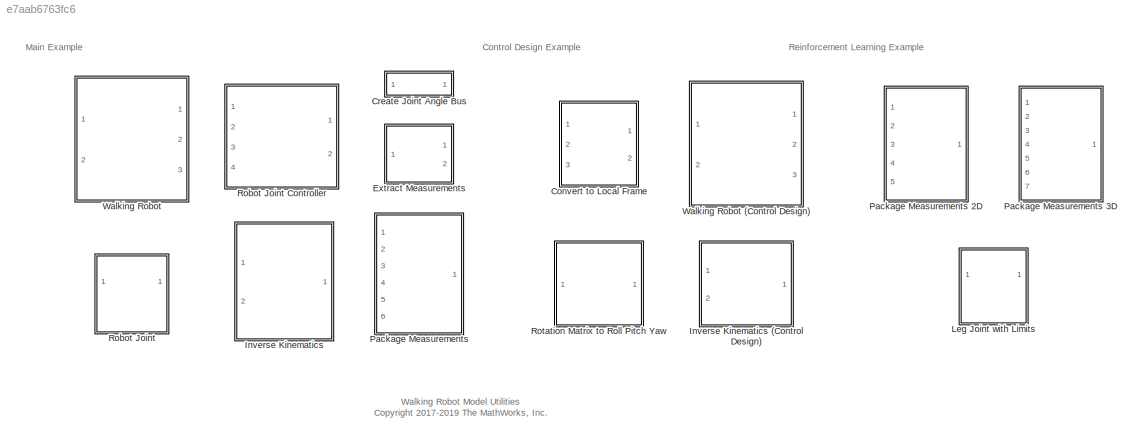
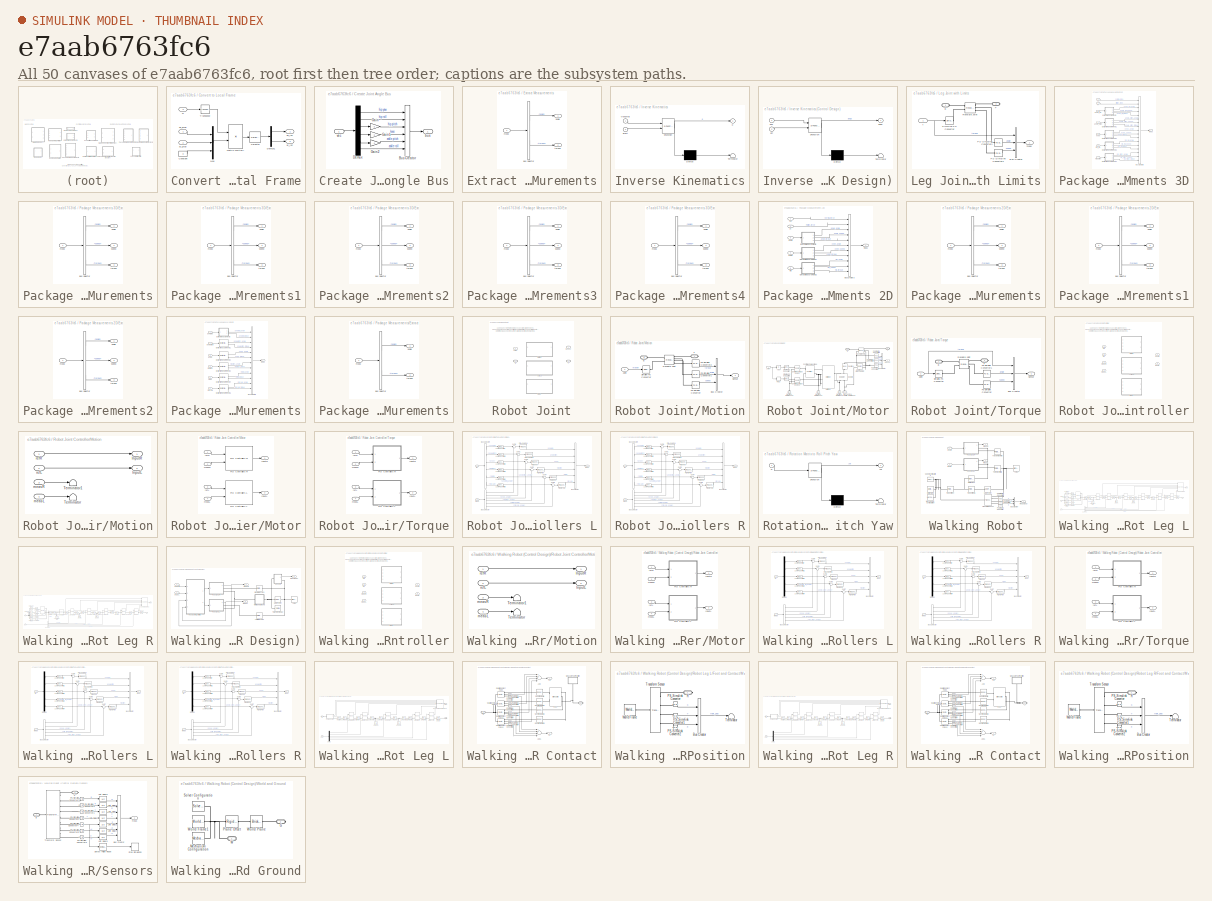
[diagram: thumbnail index - all 50 canvases of the model, root first then tree order]
MODEL slx_e7aab6763fc6
KIND library
CONFIG AbsTol = auto
CONFIG EnableMultiTasking = off
CONFIG FixedStep = auto
CONFIG MaxStep = auto
CONFIG MinStep = auto
CONFIG RelTol = 1e-3
CONFIG SampleTimeConstraint = Unconstrained
CONFIG Solver = VariableStepAuto
CONFIG SolverName = VariableStepAuto
CONFIG StartTime = 0.0
CONFIG StopTime = 10.0
BLOCK [SubSystem] Convert to Local Frame
  Ports = [3, 2]
  RequestExecContextInheritance = off
BLOCK [Constant] Convert to Local Frame/Constant
  Value = 0
BLOCK [Demux] Convert to Local Frame/Demux1
  DisplayOption = bar
  Outputs = 2
  Ports = [1, 2]
BLOCK [Product] Convert to Local Frame/Matrix Multiply
  InputSameDT = off
  Multiplication = Matrix(*)
  OutDataTypeStr = Inherit: Inherit via internal rule
  Ports = [2, 1]
  RndMeth = Floor
  SaturateOnIntegerOverflow = off
BLOCK [Mux] Convert to Local Frame/Mux
  DisplayOption = bar
  Inputs = 3
  Ports = [3, 1]
BLOCK [Inport] Convert to Local Frame/R
  IconDisplay = Port number
  Port = 3
BLOCK [Selector] Convert to Local Frame/Selector
  IndexOptions = Index vector (dialog)
  Indices = [1 2]
  InputPortWidth = 3
  OutputSizes = 1
  Ports = [1, 1]
BLOCK [Math] Convert to Local Frame/Transpose
  Operator = transpose
  Ports = [1, 1]
BLOCK [Inport] Convert to Local Frame/ax_glob
  IconDisplay = Port number
BLOCK [Outport] Convert to Local Frame/ax_loc
  IconDisplay = Port number
  VectorParamsAs1DForOutWhenUnconnected = off
BLOCK [Inport] Convert to Local Frame/ay_glob
  IconDisplay = Port number
  Port = 2
BLOCK [Outport] Convert to Local Frame/ay_loc
  IconDisplay = Port number
  Port = 2
  VectorParamsAs1DForOutWhenUnconnected = off
BLOCK [SubSystem] Create Joint Angle Bus
  Ports = [1, 1]
  RequestExecContextInheritance = off
BLOCK [BusCreator] Create Joint Angle Bus/Bus Creator
  DisplayOption = bar
  InheritFromInputs = on
  Inputs = 6
  Ports = [6, 1]
BLOCK [Demux] Create Joint Angle Bus/Demux
  DisplayOption = bar
  Outputs = 6
  Ports = [1, 6]
BLOCK [Gain] Create Joint Angle Bus/Gain
  Gain = -1
  OutDataTypeStr = Inherit: Inherit via internal rule
  ParamDataTypeStr = Inherit: Inherit via internal rule
  SaturateOnIntegerOverflow = off
BLOCK [Gain] Create Joint Angle Bus/Gain1
  Gain = -1
  OutDataTypeStr = Inherit: Inherit via internal rule
  ParamDataTypeStr = Inherit: Inherit via internal rule
  SaturateOnIntegerOverflow = off
BLOCK [Gain] Create Joint Angle Bus/Gain2
  Gain = -1
  OutDataTypeStr = Inherit: Inherit via internal rule
  ParamDataTypeStr = Inherit: Inherit via internal rule
  SaturateOnIntegerOverflow = off
BLOCK [Outport] Create Joint Angle Bus/bus
  IconDisplay = Port number
  VectorParamsAs1DForOutWhenUnconnected = off
BLOCK [Inport] Create Joint Angle Bus/vec
  IconDisplay = Port number
BLOCK [SubSystem] Extract Measurements
  Ports = [1, 2]
  RequestExecContextInheritance = off
BLOCK [BusSelector] Extract Measurements/Bus Selector
  OutputAsBus = off
  OutputSignals = angle,torque
  Ports = [1, 2]
BLOCK [Outport] Extract Measurements/angle
  IconDisplay = Port number
  VectorParamsAs1DForOutWhenUnconnected = off
BLOCK [Inport] Extract Measurements/meas
  IconDisplay = Port number
BLOCK [Outport] Extract Measurements/torque
  IconDisplay = Port number
  Port = 2
  VectorParamsAs1DForOutWhenUnconnected = off
BLOCK [SubSystem] Inverse Kinematics
  ErrorFcn = Stateflow.Translate.translate
  PermitHierarchicalResolution = ExplicitOnly
  Ports = [2, 1]
  RequestExecContextInheritance = off
  SFBlockType = MATLAB Function
  TreatAsAtomicUnit = on
BLOCK [SubSystem] Inverse Kinematics (Control Design)
  ErrorFcn = Stateflow.Translate.translate
  PermitHierarchicalResolution = ExplicitOnly
  Ports = [2, 1]
  RequestExecContextInheritance = off
  SFBlockType = MATLAB Function
  TreatAsAtomicUnit = on
BLOCK [Demux] Inverse Kinematics (Control Design)/ Demux 
  Outputs = 1
  Ports = [1, 1]
BLOCK [S-Function] Inverse Kinematics (Control Design)/ SFunction 
  EnableBusSupport = off
  FunctionName = sf_sfun
  Parameters = lower_leg_length,upper_leg_length
  PortCounts = [2 2]
  Ports = [2, 2]
  SFcnIsStateOwnerBlock = off
  SFunctionDeploymentMode = off
  Tag = Stateflow S-Function 3
BLOCK [Terminator] Inverse Kinematics (Control Design)/ Terminator 
BLOCK [Outport] Inverse Kinematics (Control Design)/angs
  IconDisplay = Port number
  VectorParamsAs1DForOutWhenUnconnected = off
BLOCK [Inport] Inverse Kinematics (Control Design)/att
  IconDisplay = Port number
  Port = 2
BLOCK [Inport] Inverse Kinematics (Control Design)/pos
  IconDisplay = Port number
BLOCK [Demux] Inverse Kinematics/ Demux 
  Outputs = 1
  Ports = [1, 1]
BLOCK [S-Function] Inverse Kinematics/ SFunction 
  EnableBusSupport = on
  FunctionName = sf_sfun
  PortCounts = [2 2]
  Ports = [2, 2]
  SFcnIsStateOwnerBlock = off
  SFunctionDeploymentMode = off
  Tag = Stateflow S-Function 2
BLOCK [Terminator] Inverse Kinematics/ Terminator 
BLOCK [Inport] Inverse Kinematics/isLeft
  IconDisplay = Port number
  Port = 2
BLOCK [Outport] Inverse Kinematics/q
  IconDisplay = Port number
BLOCK [Inport] Inverse Kinematics/transmat
  IconDisplay = Port number
BLOCK [SubSystem] Leg Joint with Limits
  Ports = [1, 1, 0, 0, 0, 1, 1]
  RequestExecContextInheritance = off
  VariantControl = actuatorType == 2
BLOCK [PMIOPort] Leg Joint with Limits/B
  Side = Left
BLOCK [BusCreator] Leg Joint with Limits/Bus Creator
  DisplayOption = bar
  InheritFromInputs = on
  Inputs = 3
  Ports = [3, 1]
BLOCK [PMIOPort] Leg Joint with Limits/F
  Port = 2
  Side = Right
BLOCK [Reference] Leg Joint with Limits/PS-Simulink Converter1  REF=nesl_utility/PS-Simulink
Converter
  Ports = [0, 1, 0, 0, 0, 1]
  SourceBlock = nesl_utility/PS-Simulink\nConverter
  SourceProductBaseCode = SS
  SourceProductName = Simscape
  SourceType = PS-Simulink\nConverter
BLOCK [Reference] Leg Joint with Limits/PS-Simulink Converter2  REF=nesl_utility/PS-Simulink
Converter
  Ports = [0, 1, 0, 0, 0, 1]
  SourceBlock = nesl_utility/PS-Simulink\nConverter
  SourceProductBaseCode = SS
  SourceProductName = Simscape
  SourceType = PS-Simulink\nConverter
BLOCK [Reference] Leg Joint with Limits/Revolute Joint  REF=sm_lib/Joints/Revolute Joint
  Ports = [0, 0, 0, 0, 0, 2, 3]
  SourceBlock = sm_lib/Joints/Revolute Joint
  SourceProductBaseCode = MS
  SourceProductName = Simscape Multibody
  SourceType = Revolute Joint
BLOCK [Reference] Leg Joint with Limits/Simulink-PS Converter  REF=nesl_utility/Simulink-PS
Converter
  Ports = [1, 0, 0, 0, 0, 0, 1]
  SourceBlock = nesl_utility/Simulink-PS\nConverter
  SourceProductBaseCode = SS
  SourceProductName = Simscape
  SourceType = Simulink-PS\nConverter
BLOCK [Outport] Leg Joint with Limits/meas
  IconDisplay = Port number
  VectorParamsAs1DForOutWhenUnconnected = off
BLOCK [Inport] Leg Joint with Limits/t
  IconDisplay = Port number
BLOCK [SubSystem] Package Measurements
  Ports = [6, 1]
  RequestExecContextInheritance = off
BLOCK [SubSystem] Package Measurements 2D
  Ports = [5, 1]
  RequestExecContextInheritance = off
BLOCK [BusCreator] Package Measurements 2D/Bus Creator3
  DisplayOption = bar
  InheritFromInputs = on
  Inputs = 11
  Ports = [11, 1]
BLOCK [SubSystem] Package Measurements 2D/Extract Measurements
  Ports = [1, 3]
  RequestExecContextInheritance = off
BLOCK [BusSelector] Package Measurements 2D/Extract Measurements/Bus Selector
  OutputAsBus = off
  OutputSignals = angle,speed,torque
  Ports = [1, 3]
BLOCK [Outport] Package Measurements 2D/Extract Measurements/angle
  IconDisplay = Port number
  VectorParamsAs1DForOutWhenUnconnected = off
BLOCK [Inport] Package Measurements 2D/Extract Measurements/meas
  IconDisplay = Port number
BLOCK [Outport] Package Measurements 2D/Extract Measurements/speed
  IconDisplay = Port number
  Port = 2
  VectorParamsAs1DForOutWhenUnconnected = off
BLOCK [Outport] Package Measurements 2D/Extract Measurements/torque
  IconDisplay = Port number
  Port = 3
  VectorParamsAs1DForOutWhenUnconnected = off
BLOCK [SubSystem] Package Measurements 2D/Extract Measurements1
  Ports = [1, 3]
  RequestExecContextInheritance = off
BLOCK [BusSelector] Package Measurements 2D/Extract Measurements1/Bus Selector
  OutputAsBus = off
  OutputSignals = angle,speed,torque
  Ports = [1, 3]
BLOCK [Outport] Package Measurements 2D/Extract Measurements1/angle
  IconDisplay = Port number
  VectorParamsAs1DForOutWhenUnconnected = off
BLOCK [Inport] Package Measurements 2D/Extract Measurements1/meas
  IconDisplay = Port number
BLOCK [Outport] Package Measurements 2D/Extract Measurements1/speed
  IconDisplay = Port number
  Port = 2
  VectorParamsAs1DForOutWhenUnconnected = off
BLOCK [Outport] Package Measurements 2D/Extract Measurements1/torque
  IconDisplay = Port number
  Port = 3
  VectorParamsAs1DForOutWhenUnconnected = off
BLOCK [SubSystem] Package Measurements 2D/Extract Measurements2
  Ports = [1, 3]
  RequestExecContextInheritance = off
BLOCK [BusSelector] Package Measurements 2D/Extract Measurements2/Bus Selector
  OutputAsBus = off
  OutputSignals = angle,speed,torque
  Ports = [1, 3]
BLOCK [Outport] Package Measurements 2D/Extract Measurements2/angle
  IconDisplay = Port number
  VectorParamsAs1DForOutWhenUnconnected = off
BLOCK [Inport] Package Measurements 2D/Extract Measurements2/meas
  IconDisplay = Port number
BLOCK [Outport] Package Measurements 2D/Extract Measurements2/speed
  IconDisplay = Port number
  Port = 2
  VectorParamsAs1DForOutWhenUnconnected = off
BLOCK [Outport] Package Measurements 2D/Extract Measurements2/torque
  IconDisplay = Port number
  Port = 3
  VectorParamsAs1DForOutWhenUnconnected = off
BLOCK [Inport] Package Measurements 2D/Ff
  IconDisplay = Port number
  Port = 2
BLOCK [Inport] Package Measurements 2D/Fn
  IconDisplay = Port number
BLOCK [Inport] Package Measurements 2D/ankle
  IconDisplay = Port number
  Port = 3
BLOCK [Inport] Package Measurements 2D/hip
  IconDisplay = Port number
  Port = 5
BLOCK [Inport] Package Measurements 2D/knee
  IconDisplay = Port number
  Port = 4
BLOCK [Outport] Package Measurements 2D/meas
  IconDisplay = Port number
  VectorParamsAs1DForOutWhenUnconnected = off
BLOCK [SubSystem] Package Measurements 3D
  Ports = [7, 1]
  RequestExecContextInheritance = off
BLOCK [BusCreator] Package Measurements 3D/Bus Creator3
  DisplayOption = bar
  InheritFromInputs = on
  Inputs = 17
  Ports = [17, 1]
BLOCK [SubSystem] Package Measurements 3D/Extract Measurements
  Ports = [1, 3]
  RequestExecContextInheritance = off
BLOCK [BusSelector] Package Measurements 3D/Extract Measurements/Bus Selector
  OutputAsBus = off
  OutputSignals = angle,speed,torque
  Ports = [1, 3]
BLOCK [Outport] Package Measurements 3D/Extract Measurements/angle
  IconDisplay = Port number
  VectorParamsAs1DForOutWhenUnconnected = off
BLOCK [Inport] Package Measurements 3D/Extract Measurements/meas
  IconDisplay = Port number
BLOCK [Outport] Package Measurements 3D/Extract Measurements/speed
  IconDisplay = Port number
  Port = 2
  VectorParamsAs1DForOutWhenUnconnected = off
BLOCK [Outport] Package Measurements 3D/Extract Measurements/torque
  IconDisplay = Port number
  Port = 3
  VectorParamsAs1DForOutWhenUnconnected = off
BLOCK [SubSystem] Package Measurements 3D/Extract Measurements1
  Ports = [1, 3]
  RequestExecContextInheritance = off
BLOCK [BusSelector] Package Measurements 3D/Extract Measurements1/Bus Selector
  OutputAsBus = off
  OutputSignals = angle,speed,torque
  Ports = [1, 3]
BLOCK [Outport] Package Measurements 3D/Extract Measurements1/angle
  IconDisplay = Port number
  VectorParamsAs1DForOutWhenUnconnected = off
BLOCK [Inport] Package Measurements 3D/Extract Measurements1/meas
  IconDisplay = Port number
BLOCK [Outport] Package Measurements 3D/Extract Measurements1/speed
  IconDisplay = Port number
  Port = 2
  VectorParamsAs1DForOutWhenUnconnected = off
BLOCK [Outport] Package Measurements 3D/Extract Measurements1/torque
  IconDisplay = Port number
  Port = 3
  VectorParamsAs1DForOutWhenUnconnected = off
BLOCK [SubSystem] Package Measurements 3D/Extract Measurements2
  Ports = [1, 3]
  RequestExecContextInheritance = off
BLOCK [BusSelector] Package Measurements 3D/Extract Measurements2/Bus Selector
  OutputAsBus = off
  OutputSignals = angle,speed,torque
  Ports = [1, 3]
BLOCK [Outport] Package Measurements 3D/Extract Measurements2/angle
  IconDisplay = Port number
  VectorParamsAs1DForOutWhenUnconnected = off
BLOCK [Inport] Package Measurements 3D/Extract Measurements2/meas
  IconDisplay = Port number
BLOCK [Outport] Package Measurements 3D/Extract Measurements2/speed
  IconDisplay = Port number
  Port = 2
  VectorParamsAs1DForOutWhenUnconnected = off
BLOCK [Outport] Package Measurements 3D/Extract Measurements2/torque
  IconDisplay = Port number
  Port = 3
  VectorParamsAs1DForOutWhenUnconnected = off
BLOCK [SubSystem] Package Measurements 3D/Extract Measurements3
  Ports = [1, 3]
  RequestExecContextInheritance = off
BLOCK [BusSelector] Package Measurements 3D/Extract Measurements3/Bus Selector
  OutputAsBus = off
  OutputSignals = angle,speed,torque
  Ports = [1, 3]
BLOCK [Outport] Package Measurements 3D/Extract Measurements3/angle
  IconDisplay = Port number
  VectorParamsAs1DForOutWhenUnconnected = off
BLOCK [Inport] Package Measurements 3D/Extract Measurements3/meas
  IconDisplay = Port number
BLOCK [Outport] Package Measurements 3D/Extract Measurements3/speed
  IconDisplay = Port number
  Port = 2
  VectorParamsAs1DForOutWhenUnconnected = off
BLOCK [Outport] Package Measurements 3D/Extract Measurements3/torque
  IconDisplay = Port number
  Port = 3
  VectorParamsAs1DForOutWhenUnconnected = off
BLOCK [SubSystem] Package Measurements 3D/Extract Measurements4
  Ports = [1, 3]
  RequestExecContextInheritance = off
BLOCK [BusSelector] Package Measurements 3D/Extract Measurements4/Bus Selector
  OutputAsBus = off
  OutputSignals = angle,speed,torque
  Ports = [1, 3]
BLOCK [Outport] Package Measurements 3D/Extract Measurements4/angle
  IconDisplay = Port number
  VectorParamsAs1DForOutWhenUnconnected = off
BLOCK [Inport] Package Measurements 3D/Extract Measurements4/meas
  IconDisplay = Port number
BLOCK [Outport] Package Measurements 3D/Extract Measurements4/speed
  IconDisplay = Port number
  Port = 2
  VectorParamsAs1DForOutWhenUnconnected = off
BLOCK [Outport] Package Measurements 3D/Extract Measurements4/torque
  IconDisplay = Port number
  Port = 3
  VectorParamsAs1DForOutWhenUnconnected = off
BLOCK [Inport] Package Measurements 3D/Ff
  IconDisplay = Port number
  Port = 2
BLOCK [Inport] Package Measurements 3D/Fn
  IconDisplay = Port number
BLOCK [Inport] Package Measurements 3D/ankle_pitch
  IconDisplay = Port number
  Port = 4
BLOCK [Inport] Package Measurements 3D/ankle_roll
  IconDisplay = Port number
  Port = 3
BLOCK [Inport] Package Measurements 3D/hip_pitch
  IconDisplay = Port number
  Port = 7
BLOCK [Inport] Package Measurements 3D/hip_roll
  IconDisplay = Port number
  Port = 6
BLOCK [Inport] Package Measurements 3D/knee
  IconDisplay = Port number
  Port = 5
BLOCK [Outport] Package Measurements 3D/meas
  IconDisplay = Port number
  VectorParamsAs1DForOutWhenUnconnected = off
BLOCK [BusCreator] Package Measurements/Bus Creator3
  DisplayOption = bar
  InheritFromInputs = on
  Inputs = 12
  Ports = [12, 1]
BLOCK [SubSystem] Package Measurements/Extract Measurements
  Ports = [1, 2]
  RequestExecContextInheritance = off
BLOCK [BusSelector] Package Measurements/Extract Measurements/Bus Selector
  OutputAsBus = off
  OutputSignals = angle,torque
  Ports = [1, 2]
BLOCK [Outport] Package Measurements/Extract Measurements/angle
  IconDisplay = Port number
  VectorParamsAs1DForOutWhenUnconnected = off
BLOCK [Inport] Package Measurements/Extract Measurements/meas
  IconDisplay = Port number
BLOCK [Outport] Package Measurements/Extract Measurements/torque
  IconDisplay = Port number
  Port = 2
  VectorParamsAs1DForOutWhenUnconnected = off
BLOCK [Reference] Package Measurements/Extract Measurements1  REF=$bdroot/Package Measurements/Extract Measurements
  Ports = [1, 2]
  SourceBlock = $bdroot/Package Measurements/Extract Measurements
  SourceType = SubSystem
BLOCK [Reference] Package Measurements/Extract Measurements2  REF=$bdroot/Package Measurements/Extract Measurements
  Ports = [1, 2]
  SourceBlock = $bdroot/Package Measurements/Extract Measurements
  SourceType = SubSystem
BLOCK [Reference] Package Measurements/Extract Measurements3  REF=$bdroot/Package Measurements/Extract Measurements
  Ports = [1, 2]
  SourceBlock = $bdroot/Package Measurements/Extract Measurements
  SourceType = SubSystem
BLOCK [Reference] Package Measurements/Extract Measurements4  REF=$bdroot/Package Measurements/Extract Measurements
  Ports = [1, 2]
  SourceBlock = $bdroot/Package Measurements/Extract Measurements
  SourceType = SubSystem
BLOCK [Reference] Package Measurements/Extract Measurements5  REF=$bdroot/Package Measurements/Extract Measurements
  Ports = [1, 2]
  SourceBlock = $bdroot/Package Measurements/Extract Measurements
  SourceType = SubSystem
BLOCK [Inport] Package Measurements/anklepitch
  IconDisplay = Port number
  Port = 2
BLOCK [Inport] Package Measurements/ankleroll
  IconDisplay = Port number
BLOCK [Inport] Package Measurements/hippitch
  IconDisplay = Port number
  Port = 4
BLOCK [Inport] Package Measurements/hiproll
  IconDisplay = Port number
  Port = 5
BLOCK [Inport] Package Measurements/hipyaw
  IconDisplay = Port number
  Port = 6
BLOCK [Inport] Package Measurements/knee
  IconDisplay = Port number
  Port = 3
BLOCK [Outport] Package Measurements/meas
  IconDisplay = Port number
  VectorParamsAs1DForOutWhenUnconnected = off
BLOCK [SubSystem] Robot Joint
  Ports = [1, 1, 0, 0, 0, 1, 1]
  RequestExecContextInheritance = off
  Variant = on
BLOCK [SubSystem] Robot Joint Controller
  Ports = [4, 2]
  RequestExecContextInheritance = off
  Variant = on
BLOCK [Outport] Robot Joint Controller/InputL
  IconDisplay = Port number
  Port = 2
  VectorParamsAs1DForOutWhenUnconnected = off
BLOCK [Outport] Robot Joint Controller/InputR
  IconDisplay = Port number
  VectorParamsAs1DForOutWhenUnconnected = off
BLOCK [SubSystem] Robot Joint Controller/Motion
  Ports = [4, 2]
  RequestExecContextInheritance = off
  VariantControl = actuatorType == 1
BLOCK [Outport] Robot Joint Controller/Motion/InputL
  IconDisplay = Port number
  Port = 2
  VectorParamsAs1DForOutWhenUnconnected = off
BLOCK [Outport] Robot Joint Controller/Motion/InputR
  IconDisplay = Port number
  VectorParamsAs1DForOutWhenUnconnected = off
BLOCK [Terminator] Robot Joint Controller/Motion/Terminator
BLOCK [Terminator] Robot Joint Controller/Motion/Terminator1
BLOCK [Inport] Robot Joint Controller/Motion/measL
  IconDisplay = Port number
  Port = 4
BLOCK [Inport] Robot Joint Controller/Motion/measR
  IconDisplay = Port number
  Port = 3
BLOCK [Inport] Robot Joint Controller/Motion/refL
  IconDisplay = Port number
  Port = 2
BLOCK [Inport] Robot Joint Controller/Motion/refR
  IconDisplay = Port number
BLOCK [SubSystem] Robot Joint Controller/Motor
  Ports = [4, 2]
  RequestExecContextInheritance = off
  VariantControl = actuatorType == 3
BLOCK [Outport] Robot Joint Controller/Motor/InputL
  IconDisplay = Port number
  Port = 2
  VectorParamsAs1DForOutWhenUnconnected = off
BLOCK [Outport] Robot Joint Controller/Motor/InputR
  IconDisplay = Port number
  VectorParamsAs1DForOutWhenUnconnected = off
BLOCK [Reference] Robot Joint Controller/Motor/PID Controllers L  REF=$bdroot/Robot Joint Controller/Torque/PID Controllers L
  Ports = [2, 1]
  SourceBlock = $bdroot/Robot Joint Controller/Torque/PID Controllers L
  SourceType = SubSystem
BLOCK [Reference] Robot Joint Controller/Motor/PID Controllers R  REF=$bdroot/Robot Joint Controller/Torque/PID Controllers R
  Ports = [2, 1]
  SourceBlock = $bdroot/Robot Joint Controller/Torque/PID Controllers R
  SourceType = SubSystem
BLOCK [Inport] Robot Joint Controller/Motor/measL
  IconDisplay = Port number
  Port = 4
BLOCK [Inport] Robot Joint Controller/Motor/measR
  IconDisplay = Port number
  Port = 2
BLOCK [Inport] Robot Joint Controller/Motor/refL
  IconDisplay = Port number
  Port = 3
BLOCK [Inport] Robot Joint Controller/Motor/refR
  IconDisplay = Port number
BLOCK [SubSystem] Robot Joint Controller/Torque
  Ports = [4, 2]
  RequestExecContextInheritance = off
  VariantControl = actuatorType == 2
BLOCK [Outport] Robot Joint Controller/Torque/InputL
  IconDisplay = Port number
  Port = 2
  VectorParamsAs1DForOutWhenUnconnected = off
BLOCK [Outport] Robot Joint Controller/Torque/InputR
  IconDisplay = Port number
  VectorParamsAs1DForOutWhenUnconnected = off
BLOCK [SubSystem] Robot Joint Controller/Torque/PID Controllers L
  Ports = [2, 1]
  RequestExecContextInheritance = off
BLOCK [BusCreator] Robot Joint Controller/Torque/PID Controllers L/Bus Creator
  DisplayOption = bar
  InheritFromInputs = on
  Inputs = 6
  Ports = [6, 1]
BLOCK [BusSelector] Robot Joint Controller/Torque/PID Controllers L/Bus Selector
  OutputAsBus = off
  OutputSignals = ankleroll_angle,anklepitch_angle,knee_angle,hippitch_angle,hiproll_angle,hipyaw_angle
  Ports = [1, 6]
BLOCK [BusSelector] Robot Joint Controller/Torque/PID Controllers L/Bus Selector4
  OutputAsBus = off
  OutputSignals = ankle roll,ankle pitch,knee,hip pitch,hip roll,hip yaw
  Ports = [1, 6]
BLOCK [Outport] Robot Joint Controller/Torque/PID Controllers L/Input
  IconDisplay = Port number
  VectorParamsAs1DForOutWhenUnconnected = off
BLOCK [Reference] Robot Joint Controller/Torque/PID Controllers L/Low-Pass Filter  REF=simulink_extras/Additional
Linear/Transfer Fcn
(with initial outputs)
  Ports = [1, 1]
  SourceBlock = simulink_extras/Additional\nLinear/Transfer Fcn\n(with initial outputs)
  SourceProductBaseCode = SL
  SourceProductName = Simulink
  SourceType = Transfer Function with Initial Outputs
BLOCK [Reference] Robot Joint Controller/Torque/PID Controllers L/Low-Pass Filter1  REF=simulink_extras/Additional
Linear/Transfer Fcn
(with initial outputs)
  Ports = [1, 1]
  SourceBlock = simulink_extras/Additional\nLinear/Transfer Fcn\n(with initial outputs)
  SourceProductBaseCode = SL
  SourceProductName = Simulink
  SourceType = Transfer Function with Initial Outputs
BLOCK [Reference] Robot Joint Controller/Torque/PID Controllers L/Low-Pass Filter2  REF=simulink_extras/Additional
Linear/Transfer Fcn
(with initial outputs)
  Ports = [1, 1]
  SourceBlock = simulink_extras/Additional\nLinear/Transfer Fcn\n(with initial outputs)
  SourceProductBaseCode = SL
  SourceProductName = Simulink
  SourceType = Transfer Function with Initial Outputs
BLOCK [Reference] Robot Joint Controller/Torque/PID Controllers L/Low-Pass Filter3  REF=simulink_extras/Additional
Linear/Transfer Fcn
(with initial outputs)
  Ports = [1, 1]
  SourceBlock = simulink_extras/Additional\nLinear/Transfer Fcn\n(with initial outputs)
  SourceProductBaseCode = SL
  SourceProductName = Simulink
  SourceType = Transfer Function with Initial Outputs
BLOCK [Reference] Robot Joint Controller/Torque/PID Controllers L/Low-Pass Filter4  REF=simulink_extras/Additional
Linear/Transfer Fcn
(with initial outputs)
  Ports = [1, 1]
  SourceBlock = simulink_extras/Additional\nLinear/Transfer Fcn\n(with initial outputs)
  SourceProductBaseCode = SL
  SourceProductName = Simulink
  SourceType = Transfer Function with Initial Outputs
BLOCK [Reference] Robot Joint Controller/Torque/PID Controllers L/Low-Pass Filter5  REF=simulink_extras/Additional
Linear/Transfer Fcn
(with initial outputs)
  Ports = [1, 1]
  SourceBlock = simulink_extras/Additional\nLinear/Transfer Fcn\n(with initial outputs)
  SourceProductBaseCode = SL
  SourceProductName = Simulink
  SourceType = Transfer Function with Initial Outputs
BLOCK [Reference] Robot Joint Controller/Torque/PID Controllers L/PID Ankle Pitch  REF=simulink/Continuous/PID Controller
  Ports = [1, 1]
  SourceBlock = simulink/Continuous/PID Controller
  SourceProductBaseCode = SL
  SourceProductName = Simulink
  SourceType = PID 1dof
BLOCK [Reference] Robot Joint Controller/Torque/PID Controllers L/PID Ankle Roll  REF=simulink/Continuous/PID Controller
  Ports = [1, 1]
  SourceBlock = simulink/Continuous/PID Controller
  SourceProductBaseCode = SL
  SourceProductName = Simulink
  SourceType = PID 1dof
BLOCK [Reference] Robot Joint Controller/Torque/PID Controllers L/PID Hip Pitch  REF=simulink/Continuous/PID Controller
  Ports = [1, 1]
  SourceBlock = simulink/Continuous/PID Controller
  SourceProductBaseCode = SL
  SourceProductName = Simulink
  SourceType = PID 1dof
BLOCK [Reference] Robot Joint Controller/Torque/PID Controllers L/PID Hip Roll  REF=simulink/Continuous/PID Controller
  Ports = [1, 1]
  SourceBlock = simulink/Continuous/PID Controller
  SourceProductBaseCode = SL
  SourceProductName = Simulink
  SourceType = PID 1dof
BLOCK [Reference] Robot Joint Controller/Torque/PID Controllers L/PID Hip Yaw  REF=simulink/Continuous/PID Controller
  Ports = [1, 1]
  SourceBlock = simulink/Continuous/PID Controller
  SourceProductBaseCode = SL
  SourceProductName = Simulink
  SourceType = PID 1dof
BLOCK [Reference] Robot Joint Controller/Torque/PID Controllers L/PID Knee  REF=simulink/Continuous/PID Controller
  Ports = [1, 1]
  SourceBlock = simulink/Continuous/PID Controller
  SourceProductBaseCode = SL
  SourceProductName = Simulink
  SourceType = PID 1dof
BLOCK [Sum] Robot Joint Controller/Torque/PID Controllers L/Sum1
  IconShape = round
  InputSameDT = off
  Inputs = |+-
  OutDataTypeStr = Inherit: Inherit via internal rule
  Ports = [2, 1]
  SaturateOnIntegerOverflow = off
BLOCK [Sum] Robot Joint Controller/Torque/PID Controllers L/Sum2
  IconShape = round
  InputSameDT = off
  Inputs = |+-
  OutDataTypeStr = Inherit: Inherit via internal rule
  Ports = [2, 1]
  SaturateOnIntegerOverflow = off
BLOCK [Sum] Robot Joint Controller/Torque/PID Controllers L/Sum3
  IconShape = round
  InputSameDT = off
  Inputs = |+-
  OutDataTypeStr = Inherit: Inherit via internal rule
  Ports = [2, 1]
  SaturateOnIntegerOverflow = off
BLOCK [Sum] Robot Joint Controller/Torque/PID Controllers L/Sum6
  IconShape = round
  InputSameDT = off
  Inputs = |+-
  OutDataTypeStr = Inherit: Inherit via internal rule
  Ports = [2, 1]
  SaturateOnIntegerOverflow = off
BLOCK [Sum] Robot Joint Controller/Torque/PID Controllers L/Sum7
  IconShape = round
  InputSameDT = off
  Inputs = |+-
  OutDataTypeStr = Inherit: Inherit via internal rule
  Ports = [2, 1]
  SaturateOnIntegerOverflow = off
BLOCK [Sum] Robot Joint Controller/Torque/PID Controllers L/Sum8
  IconShape = round
  InputSameDT = off
  Inputs = |+-
  OutDataTypeStr = Inherit: Inherit via internal rule
  Ports = [2, 1]
  SaturateOnIntegerOverflow = off
BLOCK [Inport] Robot Joint Controller/Torque/PID Controllers L/meas
  IconDisplay = Port number
  Port = 2
BLOCK [Inport] Robot Joint Controller/Torque/PID Controllers L/ref
  IconDisplay = Port number
BLOCK [SubSystem] Robot Joint Controller/Torque/PID Controllers R
  Ports = [2, 1]
  RequestExecContextInheritance = off
BLOCK [BusCreator] Robot Joint Controller/Torque/PID Controllers R/Bus Creator
  DisplayOption = bar
  InheritFromInputs = on
  Inputs = 6
  Ports = [6, 1]
BLOCK [BusSelector] Robot Joint Controller/Torque/PID Controllers R/Bus Selector
  OutputAsBus = off
  OutputSignals = ankleroll_angle,anklepitch_angle,knee_angle,hippitch_angle,hiproll_angle,hipyaw_angle
  Ports = [1, 6]
BLOCK [BusSelector] Robot Joint Controller/Torque/PID Controllers R/Bus Selector4
  OutputAsBus = off
  OutputSignals = ankle roll,ankle pitch,knee,hip pitch,hip roll,hip yaw
  Ports = [1, 6]
BLOCK [Outport] Robot Joint Controller/Torque/PID Controllers R/Input
  IconDisplay = Port number
  VectorParamsAs1DForOutWhenUnconnected = off
BLOCK [Reference] Robot Joint Controller/Torque/PID Controllers R/Low-Pass Filter  REF=simulink_extras/Additional
Linear/Transfer Fcn
(with initial outputs)
  Ports = [1, 1]
  SourceBlock = simulink_extras/Additional\nLinear/Transfer Fcn\n(with initial outputs)
  SourceProductBaseCode = SL
  SourceProductName = Simulink
  SourceType = Transfer Function with Initial Outputs
BLOCK [Reference] Robot Joint Controller/Torque/PID Controllers R/Low-Pass Filter1  REF=simulink_extras/Additional
Linear/Transfer Fcn
(with initial outputs)
  Ports = [1, 1]
  SourceBlock = simulink_extras/Additional\nLinear/Transfer Fcn\n(with initial outputs)
  SourceProductBaseCode = SL
  SourceProductName = Simulink
  SourceType = Transfer Function with Initial Outputs
BLOCK [Reference] Robot Joint Controller/Torque/PID Controllers R/Low-Pass Filter2  REF=simulink_extras/Additional
Linear/Transfer Fcn
(with initial outputs)
  Ports = [1, 1]
  SourceBlock = simulink_extras/Additional\nLinear/Transfer Fcn\n(with initial outputs)
  SourceProductBaseCode = SL
  SourceProductName = Simulink
  SourceType = Transfer Function with Initial Outputs
BLOCK [Reference] Robot Joint Controller/Torque/PID Controllers R/Low-Pass Filter3  REF=simulink_extras/Additional
Linear/Transfer Fcn
(with initial outputs)
  Ports = [1, 1]
  SourceBlock = simulink_extras/Additional\nLinear/Transfer Fcn\n(with initial outputs)
  SourceProductBaseCode = SL
  SourceProductName = Simulink
  SourceType = Transfer Function with Initial Outputs
BLOCK [Reference] Robot Joint Controller/Torque/PID Controllers R/Low-Pass Filter4  REF=simulink_extras/Additional
Linear/Transfer Fcn
(with initial outputs)
  Ports = [1, 1]
  SourceBlock = simulink_extras/Additional\nLinear/Transfer Fcn\n(with initial outputs)
  SourceProductBaseCode = SL
  SourceProductName = Simulink
  SourceType = Transfer Function with Initial Outputs
BLOCK [Reference] Robot Joint Controller/Torque/PID Controllers R/Low-Pass Filter5  REF=simulink_extras/Additional
Linear/Transfer Fcn
(with initial outputs)
  Ports = [1, 1]
  SourceBlock = simulink_extras/Additional\nLinear/Transfer Fcn\n(with initial outputs)
  SourceProductBaseCode = SL
  SourceProductName = Simulink
  SourceType = Transfer Function with Initial Outputs
BLOCK [Reference] Robot Joint Controller/Torque/PID Controllers R/PID Ankle Pitch  REF=simulink/Continuous/PID Controller
  Ports = [1, 1]
  SourceBlock = simulink/Continuous/PID Controller
  SourceProductBaseCode = SL
  SourceProductName = Simulink
  SourceType = PID 1dof
BLOCK [Reference] Robot Joint Controller/Torque/PID Controllers R/PID Ankle Roll  REF=simulink/Continuous/PID Controller
  Ports = [1, 1]
  SourceBlock = simulink/Continuous/PID Controller
  SourceProductBaseCode = SL
  SourceProductName = Simulink
  SourceType = PID 1dof
BLOCK [Reference] Robot Joint Controller/Torque/PID Controllers R/PID Hip Pitch  REF=simulink/Continuous/PID Controller
  Ports = [1, 1]
  SourceBlock = simulink/Continuous/PID Controller
  SourceProductBaseCode = SL
  SourceProductName = Simulink
  SourceType = PID 1dof
BLOCK [Reference] Robot Joint Controller/Torque/PID Controllers R/PID Hip Roll  REF=simulink/Continuous/PID Controller
  Ports = [1, 1]
  SourceBlock = simulink/Continuous/PID Controller
  SourceProductBaseCode = SL
  SourceProductName = Simulink
  SourceType = PID 1dof
BLOCK [Reference] Robot Joint Controller/Torque/PID Controllers R/PID Hip Yaw  REF=simulink/Continuous/PID Controller
  Ports = [1, 1]
  SourceBlock = simulink/Continuous/PID Controller
  SourceProductBaseCode = SL
  SourceProductName = Simulink
  SourceType = PID 1dof
BLOCK [Reference] Robot Joint Controller/Torque/PID Controllers R/PID Knee  REF=simulink/Continuous/PID Controller
  Ports = [1, 1]
  SourceBlock = simulink/Continuous/PID Controller
  SourceProductBaseCode = SL
  SourceProductName = Simulink
  SourceType = PID 1dof
BLOCK [Sum] Robot Joint Controller/Torque/PID Controllers R/Sum1
  IconShape = round
  InputSameDT = off
  Inputs = |+-
  OutDataTypeStr = Inherit: Inherit via internal rule
  Ports = [2, 1]
  SaturateOnIntegerOverflow = off
BLOCK [Sum] Robot Joint Controller/Torque/PID Controllers R/Sum2
  IconShape = round
  InputSameDT = off
  Inputs = |+-
  OutDataTypeStr = Inherit: Inherit via internal rule
  Ports = [2, 1]
  SaturateOnIntegerOverflow = off
BLOCK [Sum] Robot Joint Controller/Torque/PID Controllers R/Sum3
  IconShape = round
  InputSameDT = off
  Inputs = |+-
  OutDataTypeStr = Inherit: Inherit via internal rule
  Ports = [2, 1]
  SaturateOnIntegerOverflow = off
BLOCK [Sum] Robot Joint Controller/Torque/PID Controllers R/Sum6
  IconShape = round
  InputSameDT = off
  Inputs = |+-
  OutDataTypeStr = Inherit: Inherit via internal rule
  Ports = [2, 1]
  SaturateOnIntegerOverflow = off
BLOCK [Sum] Robot Joint Controller/Torque/PID Controllers R/Sum7
  IconShape = round
  InputSameDT = off
  Inputs = |+-
  OutDataTypeStr = Inherit: Inherit via internal rule
  Ports = [2, 1]
  SaturateOnIntegerOverflow = off
BLOCK [Sum] Robot Joint Controller/Torque/PID Controllers R/Sum8
  IconShape = round
  InputSameDT = off
  Inputs = |+-
  OutDataTypeStr = Inherit: Inherit via internal rule
  Ports = [2, 1]
  SaturateOnIntegerOverflow = off
BLOCK [Inport] Robot Joint Controller/Torque/PID Controllers R/meas
  IconDisplay = Port number
  Port = 2
BLOCK [Inport] Robot Joint Controller/Torque/PID Controllers R/ref
  IconDisplay = Port number
BLOCK [Inport] Robot Joint Controller/Torque/measL
  IconDisplay = Port number
  Port = 4
BLOCK [Inport] Robot Joint Controller/Torque/measR
  IconDisplay = Port number
  Port = 2
BLOCK [Inport] Robot Joint Controller/Torque/refL
  IconDisplay = Port number
  Port = 3
BLOCK [Inport] Robot Joint Controller/Torque/refR
  IconDisplay = Port number
BLOCK [Inport] Robot Joint Controller/measL
  IconDisplay = Port number
  Port = 4
BLOCK [Inport] Robot Joint Controller/measR
  IconDisplay = Port number
  Port = 3
BLOCK [Inport] Robot Joint Controller/refL
  IconDisplay = Port number
  Port = 2
BLOCK [Inport] Robot Joint Controller/refR
  IconDisplay = Port number
BLOCK [PMIOPort] Robot Joint/B
  Port = 2
  Side = Left
BLOCK [PMIOPort] Robot Joint/F
  Side = Right
BLOCK [Inport] Robot Joint/Joint
  IconDisplay = Port number
BLOCK [SubSystem] Robot Joint/Motion
  Ports = [1, 1, 0, 0, 0, 1, 1]
  RequestExecContextInheritance = off
  VariantControl = actuatorType == 1
BLOCK [PMIOPort] Robot Joint/Motion/B
  Port = 2
  Side = Left
BLOCK [BusCreator] Robot Joint/Motion/Bus Creator
  DisplayOption = bar
  InheritFromInputs = on
  Inputs = 3
  Ports = [3, 1]
BLOCK [PMIOPort] Robot Joint/Motion/F
  Side = Right
BLOCK [Inport] Robot Joint/Motion/Joint
  IconDisplay = Port number
BLOCK [Reference] Robot Joint/Motion/PS-Simulink Converter  REF=nesl_utility/PS-Simulink
Converter
  Ports = [0, 1, 0, 0, 0, 1]
  SourceBlock = nesl_utility/PS-Simulink\nConverter
  SourceProductBaseCode = SS
  SourceProductName = Simscape
  SourceType = PS-Simulink\nConverter
BLOCK [Reference] Robot Joint/Motion/PS-Simulink Converter1  REF=nesl_utility/PS-Simulink
Converter
  Ports = [0, 1, 0, 0, 0, 1]
  SourceBlock = nesl_utility/PS-Simulink\nConverter
  SourceProductBaseCode = SS
  SourceProductName = Simscape
  SourceType = PS-Simulink\nConverter
BLOCK [Reference] Robot Joint/Motion/PS-Simulink Converter2  REF=nesl_utility/PS-Simulink
Converter
  Ports = [0, 1, 0, 0, 0, 1]
  SourceBlock = nesl_utility/PS-Simulink\nConverter
  SourceProductBaseCode = SS
  SourceProductName = Simscape
  SourceType = PS-Simulink\nConverter
BLOCK [Reference] Robot Joint/Motion/Revolute Joint  REF=sm_lib/Joints/Revolute Joint
  Ports = [0, 0, 0, 0, 0, 2, 4]
  SourceBlock = sm_lib/Joints/Revolute Joint
  SourceProductBaseCode = MS
  SourceProductName = Simscape Multibody
  SourceType = Revolute Joint
BLOCK [Outport] Robot Joint/Motion/Sensor
  IconDisplay = Port number
  VectorParamsAs1DForOutWhenUnconnected = off
BLOCK [Reference] Robot Joint/Motion/Simulink-PS Converter  REF=nesl_utility/Simulink-PS
Converter
  Ports = [1, 0, 0, 0, 0, 0, 1]
  SourceBlock = nesl_utility/Simulink-PS\nConverter
  SourceProductBaseCode = SS
  SourceProductName = Simscape
  SourceType = Simulink-PS\nConverter
BLOCK [SubSystem] Robot Joint/Motor
  Ports = [1, 1, 0, 0, 0, 1, 1]
  RequestExecContextInheritance = off
  VariantControl = actuatorType == 3
BLOCK [Abs] Robot Joint/Motor/Abs
  SaturateOnIntegerOverflow = off
  ZeroCross = off
BLOCK [PMIOPort] Robot Joint/Motor/B
  Side = Left
BLOCK [BusCreator] Robot Joint/Motor/Bus Creator
  DisplayOption = bar
  InheritFromInputs = on
  Inputs = 3
  Ports = [3, 1]
BLOCK [Reference] Robot Joint/Motor/Controlled PWM Voltage  REF=ee_lib/Integrated Circuits/Controlled PWM
Voltage
  Ports = [0, 0, 0, 0, 0, 2, 2]
  SourceBlock = ee_lib/Integrated Circuits/Controlled PWM\nVoltage
  SourceProductBaseCode = PS
  SourceProductName = Simscape Electrical
  SourceType = Controlled PWM\nVoltage
BLOCK [Reference] Robot Joint/Motor/Controlled Voltage Source  REF=fl_lib/Electrical/Electrical Sources/Controlled Voltage
Source
  Ports = [0, 0, 0, 0, 0, 1, 2]
  SourceBlock = fl_lib/Electrical/Electrical Sources/Controlled Voltage\nSource
  SourceProductBaseCode = SS
  SourceProductName = Simscape
  SourceType = Controlled Voltage\nSource
BLOCK [Reference] Robot Joint/Motor/Controlled Voltage Source1  REF=fl_lib/Electrical/Electrical Sources/Controlled Voltage
Source
  Ports = [0, 0, 0, 0, 0, 1, 2]
  SourceBlock = fl_lib/Electrical/Electrical Sources/Controlled Voltage\nSource
  SourceProductBaseCode = SS
  SourceProductName = Simscape
  SourceType = Controlled Voltage\nSource
BLOCK [Reference] Robot Joint/Motor/DC Motor  REF=ee_lib/Electromechanical/Brushed Motors/DC Motor
  Ports = [0, 0, 0, 0, 0, 2, 2]
  SourceBlock = ee_lib/Electromechanical/Brushed Motors/DC Motor
  SourceProductBaseCode = PS
  SourceProductName = Simscape Electrical
  SourceType = DC Motor
BLOCK [Reference] Robot Joint/Motor/Electrical Reference  REF=fl_lib/Electrical/Electrical Elements/Electrical Reference
  Ports = [0, 0, 0, 0, 0, 1]
  SourceBlock = fl_lib/Electrical/Electrical Elements/Electrical Reference
  SourceProductBaseCode = SS
  SourceProductName = Simscape
  SourceType = Electrical Reference
BLOCK [Reference] Robot Joint/Motor/Electrical Reference1  REF=fl_lib/Electrical/Electrical Elements/Electrical Reference
  Ports = [0, 0, 0, 0, 0, 1]
  SourceBlock = fl_lib/Electrical/Electrical Elements/Electrical Reference
  SourceProductBaseCode = SS
  SourceProductName = Simscape
  SourceType = Electrical Reference
BLOCK [Reference] Robot Joint/Motor/Electrical Reference2  REF=fl_lib/Electrical/Electrical Elements/Electrical Reference
  Ports = [0, 0, 0, 0, 0, 1]
  SourceBlock = fl_lib/Electrical/Electrical Elements/Electrical Reference
  SourceProductBaseCode = SS
  SourceProductName = Simscape
  SourceType = Electrical Reference
BLOCK [PMIOPort] Robot Joint/Motor/F
  Port = 2
  Side = Right
BLOCK [Reference] Robot Joint/Motor/Gear Box  REF=fl_lib/Mechanical/Mechanisms/Gear Box
  Ports = [0, 0, 0, 0, 0, 1, 1]
  SourceBlock = fl_lib/Mechanical/Mechanisms/Gear Box
  SourceProductBaseCode = SS
  SourceProductName = Simscape
  SourceType = Gear Box
BLOCK [Reference] Robot Joint/Motor/H-Bridge  REF=ee_lib/Semiconductors &
Converters/Converters/H-Bridge
  Ports = [0, 0, 0, 0, 0, 4, 2]
  SourceBlock = ee_lib/Semiconductors &\nConverters/Converters/H-Bridge
  SourceProductBaseCode = PS
  SourceProductName = Simscape Electrical
  SourceType = H-Bridge
BLOCK [Inport] Robot Joint/Motor/Joint
  IconDisplay = Port number
BLOCK [Reference] Robot Joint/Motor/Mechanical Rotational Reference  REF=fl_lib/Mechanical/Rotational Elements/Mechanical
Rotational Reference
  Ports = [0, 0, 0, 0, 0, 1]
  SourceBlock = fl_lib/Mechanical/Rotational Elements/Mechanical\nRotational Reference
  SourceProductBaseCode = SS
  SourceProductName = Simscape
  SourceType = Mechanical\nRotational Reference
BLOCK [Reference] Robot Joint/Motor/PS-Simulink Converter1  REF=nesl_utility/PS-Simulink
Converter
  Ports = [0, 1, 0, 0, 0, 1]
  SourceBlock = nesl_utility/PS-Simulink\nConverter
  SourceProductBaseCode = SS
  SourceProductName = Simscape
  SourceType = PS-Simulink\nConverter
BLOCK [Reference] Robot Joint/Motor/PS-Simulink Converter2  REF=nesl_utility/PS-Simulink
Converter
  Ports = [0, 1, 0, 0, 0, 1]
  SourceBlock = nesl_utility/PS-Simulink\nConverter
  SourceProductBaseCode = SS
  SourceProductName = Simscape
  SourceType = PS-Simulink\nConverter
BLOCK [Reference] Robot Joint/Motor/PS-Simulink Converter3  REF=nesl_utility/PS-Simulink
Converter
  Ports = [0, 1, 0, 0, 0, 1]
  SourceBlock = nesl_utility/PS-Simulink\nConverter
  SourceProductBaseCode = SS
  SourceProductName = Simscape
  SourceType = PS-Simulink\nConverter
BLOCK [Relay] Robot Joint/Motor/Relay
  OffOutputValue = 1
  OffSwitchValue = -1
  OnOutputValue = 0
  OnSwitchValue = 1
  ZeroCross = off
BLOCK [Reference] Robot Joint/Motor/Revolute Joint  REF=sm_lib/Joints/Revolute Joint
  Ports = [0, 0, 0, 0, 0, 2, 3]
  SourceBlock = sm_lib/Joints/Revolute Joint
  SourceProductBaseCode = MS
  SourceProductName = Simscape Multibody
  SourceType = Revolute Joint
BLOCK [Reference] Robot Joint/Motor/Rotational Simscape Intf  REF=Multibody_Multiphysics_Lib/Interfaces/Rotational
Simscape Intf
  Ports = [0, 0, 0, 0, 0, 2, 2]
  SourceBlock = Multibody_Multiphysics_Lib/Interfaces/Rotational\nSimscape Intf
  SourceProductName = Simscape Multibody Multiphysics Library
  SourceType = SubSystem
BLOCK [Outport] Robot Joint/Motor/Sensor
  IconDisplay = Port number
  VectorParamsAs1DForOutWhenUnconnected = off
BLOCK [Reference] Robot Joint/Motor/Simulink-PS Converter  REF=nesl_utility/Simulink-PS
Converter
  Ports = [1, 0, 0, 0, 0, 0, 1]
  SourceBlock = nesl_utility/Simulink-PS\nConverter
  SourceProductBaseCode = SS
  SourceProductName = Simscape
  SourceType = Simulink-PS\nConverter
BLOCK [Reference] Robot Joint/Motor/Simulink-PS Converter1  REF=nesl_utility/Simulink-PS
Converter
  Ports = [1, 0, 0, 0, 0, 0, 1]
  SourceBlock = nesl_utility/Simulink-PS\nConverter
  SourceProductBaseCode = SS
  SourceProductName = Simscape
  SourceType = Simulink-PS\nConverter
BLOCK [Outport] Robot Joint/Sensor
  IconDisplay = Port number
  VectorParamsAs1DForOutWhenUnconnected = off
BLOCK [SubSystem] Robot Joint/Torque
  Ports = [1, 1, 0, 0, 0, 1, 1]
  RequestExecContextInheritance = off
  VariantControl = actuatorType == 2
BLOCK [PMIOPort] Robot Joint/Torque/B
  Port = 2
  Side = Left
BLOCK [BusCreator] Robot Joint/Torque/Bus Creator
  DisplayOption = bar
  InheritFromInputs = on
  Inputs = 3
  Ports = [3, 1]
BLOCK [PMIOPort] Robot Joint/Torque/F
  Side = Right
BLOCK [Inport] Robot Joint/Torque/Joint
  IconDisplay = Port number
BLOCK [Reference] Robot Joint/Torque/PS-Simulink Converter  REF=nesl_utility/PS-Simulink
Converter
  Ports = [0, 1, 0, 0, 0, 1]
  SourceBlock = nesl_utility/PS-Simulink\nConverter
  SourceProductBaseCode = SS
  SourceProductName = Simscape
  SourceType = PS-Simulink\nConverter
BLOCK [Reference] Robot Joint/Torque/PS-Simulink Converter1  REF=nesl_utility/PS-Simulink
Converter
  Ports = [0, 1, 0, 0, 0, 1]
  SourceBlock = nesl_utility/PS-Simulink\nConverter
  SourceProductBaseCode = SS
  SourceProductName = Simscape
  SourceType = PS-Simulink\nConverter
BLOCK [Reference] Robot Joint/Torque/Revolute Joint  REF=sm_lib/Joints/Revolute Joint
  Ports = [0, 0, 0, 0, 0, 2, 3]
  SourceBlock = sm_lib/Joints/Revolute Joint
  SourceProductBaseCode = MS
  SourceProductName = Simscape Multibody
  SourceType = Revolute Joint
BLOCK [Outport] Robot Joint/Torque/Sensor
  IconDisplay = Port number
  VectorParamsAs1DForOutWhenUnconnected = off
BLOCK [Reference] Robot Joint/Torque/Simulink-PS Converter  REF=nesl_utility/Simulink-PS
Converter
  Ports = [1, 0, 0, 0, 0, 0, 1]
  SourceBlock = nesl_utility/Simulink-PS\nConverter
  SourceProductBaseCode = SS
  SourceProductName = Simscape
  SourceType = Simulink-PS\nConverter
BLOCK [SubSystem] Rotation Matrix to Roll Pitch Yaw
  ErrorFcn = Stateflow.Translate.translate
  PermitHierarchicalResolution = ExplicitOnly
  Ports = [1, 1]
  RequestExecContextInheritance = off
  SFBlockType = MATLAB Function
  TreatAsAtomicUnit = on
BLOCK [Demux] Rotation Matrix to Roll Pitch Yaw/ Demux 
  Outputs = 1
  Ports = [1, 1]
BLOCK [S-Function] Rotation Matrix to Roll Pitch Yaw/ SFunction 
  EnableBusSupport = off
  FunctionName = sf_sfun
  PortCounts = [1 2]
  Ports = [1, 2]
  SFcnIsStateOwnerBlock = off
  SFunctionDeploymentMode = off
  Tag = Stateflow S-Function 1
BLOCK [Terminator] Rotation Matrix to Roll Pitch Yaw/ Terminator 
BLOCK [Inport] Rotation Matrix to Roll Pitch Yaw/R
  IconDisplay = Port number
BLOCK [Outport] Rotation Matrix to Roll Pitch Yaw/ypr
  IconDisplay = Port number
  VectorParamsAs1DForOutWhenUnconnected = off
BLOCK [SubSystem] Walking Robot
  Ports = [2, 3]
  RequestExecContextInheritance = off
BLOCK [SubSystem] Walking Robot (Control Design)
  Ports = [2, 3]
  RequestExecContextInheritance = off
BLOCK [Reference] Walking Robot (Control Design)/6-DOF Joint  REF=sm_lib/Joints/6-DOF Joint
  Ports = [0, 0, 0, 0, 0, 1, 1]
  SourceBlock = sm_lib/Joints/6-DOF Joint
  SourceProductBaseCode = MS
  SourceProductName = Simscape Multibody
  SourceType = 6-DOF Joint
BLOCK [Reference] Walking Robot (Control Design)/Left Hip to Torso  REF=sm_lib/Frames and
Transforms/Rigid
Transform
  Ports = [0, 0, 0, 0, 0, 1, 1]
  SourceBlock = sm_lib/Frames and\nTransforms/Rigid\nTransform
  SourceProductBaseCode = MS
  SourceProductName = Simscape Multibody
  SourceType = Rigid\nTransform
BLOCK [Reference] Walking Robot (Control Design)/Right Hip to Torso  REF=sm_lib/Frames and
Transforms/Rigid
Transform
  Ports = [0, 0, 0, 0, 0, 1, 1]
  SourceBlock = sm_lib/Frames and\nTransforms/Rigid\nTransform
  SourceProductBaseCode = MS
  SourceProductName = Simscape Multibody
  SourceType = Rigid\nTransform
BLOCK [SubSystem] Walking Robot (Control Design)/Robot Joint Controller
  Ports = [4, 2]
  RequestExecContextInheritance = off
  Variant = on
BLOCK [Outport] Walking Robot (Control Design)/Robot Joint Controller/InputL
  IconDisplay = Port number
  Port = 2
  VectorParamsAs1DForOutWhenUnconnected = off
BLOCK [Outport] Walking Robot (Control Design)/Robot Joint Controller/InputR
  IconDisplay = Port number
  VectorParamsAs1DForOutWhenUnconnected = off
BLOCK [SubSystem] Walking Robot (Control Design)/Robot Joint Controller/Motion
  Ports = [4, 2]
  RequestExecContextInheritance = off
  VariantControl = actuatorType == 1
BLOCK [Outport] Walking Robot (Control Design)/Robot Joint Controller/Motion/InputL
  IconDisplay = Port number
  Port = 2
  VectorParamsAs1DForOutWhenUnconnected = off
BLOCK [Outport] Walking Robot (Control Design)/Robot Joint Controller/Motion/InputR
  IconDisplay = Port number
  VectorParamsAs1DForOutWhenUnconnected = off
BLOCK [Terminator] Walking Robot (Control Design)/Robot Joint Controller/Motion/Terminator
BLOCK [Terminator] Walking Robot (Control Design)/Robot Joint Controller/Motion/Terminator1
BLOCK [Inport] Walking Robot (Control Design)/Robot Joint Controller/Motion/measL
  IconDisplay = Port number
  Port = 4
BLOCK [Inport] Walking Robot (Control Design)/Robot Joint Controller/Motion/measR
  IconDisplay = Port number
  Port = 3
BLOCK [Inport] Walking Robot (Control Design)/Robot Joint Controller/Motion/refL
  IconDisplay = Port number
  Port = 2
BLOCK [Inport] Walking Robot (Control Design)/Robot Joint Controller/Motion/refR
  IconDisplay = Port number
BLOCK [SubSystem] Walking Robot (Control Design)/Robot Joint Controller/Motor
  Ports = [4, 2]
  RequestExecContextInheritance = off
  VariantControl = actuatorType == 3
BLOCK [Outport] Walking Robot (Control Design)/Robot Joint Controller/Motor/InputL
  IconDisplay = Port number
  Port = 2
  VectorParamsAs1DForOutWhenUnconnected = off
BLOCK [Outport] Walking Robot (Control Design)/Robot Joint Controller/Motor/InputR
  IconDisplay = Port number
  VectorParamsAs1DForOutWhenUnconnected = off
BLOCK [SubSystem] Walking Robot (Control Design)/Robot Joint Controller/Motor/PID Controllers L
  Ports = [2, 1]
  RequestExecContextInheritance = off
BLOCK [BusCreator] Walking Robot (Control Design)/Robot Joint Controller/Motor/PID Controllers L/Bus Creator
  DisplayOption = bar
  InheritFromInputs = on
  Inputs = 5
  Ports = [5, 1]
BLOCK [BusSelector] Walking Robot (Control Design)/Robot Joint Controller/Motor/PID Controllers L/Bus Selector
  OutputAsBus = off
  OutputSignals = ankle_roll_angle,ankle_pitch_angle,knee_angle,hip_roll_angle,hip_pitch_angle
  Ports = [1, 5]
BLOCK [Demux] Walking Robot (Control Design)/Robot Joint Controller/Motor/PID Controllers L/Demux
  DisplayOption = bar
  Outputs = 5
  Ports = [1, 5]
BLOCK [Outport] Walking Robot (Control Design)/Robot Joint Controller/Motor/PID Controllers L/Input
  IconDisplay = Port number
  VectorParamsAs1DForOutWhenUnconnected = off
BLOCK [Reference] Walking Robot (Control Design)/Robot Joint Controller/Motor/PID Controllers L/Low-Pass Filter  REF=simulink_extras/Additional
Linear/Transfer Fcn
(with initial outputs)
  Ports = [1, 1]
  SourceBlock = simulink_extras/Additional\nLinear/Transfer Fcn\n(with initial outputs)
  SourceProductBaseCode = SL
  SourceProductName = Simulink
  SourceType = Transfer Function with Initial Outputs
BLOCK [Reference] Walking Robot (Control Design)/Robot Joint Controller/Motor/PID Controllers L/Low-Pass Filter1  REF=simulink_extras/Additional
Linear/Transfer Fcn
(with initial outputs)
  Ports = [1, 1]
  SourceBlock = simulink_extras/Additional\nLinear/Transfer Fcn\n(with initial outputs)
  SourceProductBaseCode = SL
  SourceProductName = Simulink
  SourceType = Transfer Function with Initial Outputs
BLOCK [Reference] Walking Robot (Control Design)/Robot Joint Controller/Motor/PID Controllers L/Low-Pass Filter2  REF=simulink_extras/Additional
Linear/Transfer Fcn
(with initial outputs)
  Ports = [1, 1]
  SourceBlock = simulink_extras/Additional\nLinear/Transfer Fcn\n(with initial outputs)
  SourceProductBaseCode = SL
  SourceProductName = Simulink
  SourceType = Transfer Function with Initial Outputs
BLOCK [Reference] Walking Robot (Control Design)/Robot Joint Controller/Motor/PID Controllers L/Low-Pass Filter3  REF=simulink_extras/Additional
Linear/Transfer Fcn
(with initial outputs)
  Ports = [1, 1]
  SourceBlock = simulink_extras/Additional\nLinear/Transfer Fcn\n(with initial outputs)
  SourceProductBaseCode = SL
  SourceProductName = Simulink
  SourceType = Transfer Function with Initial Outputs
BLOCK [Reference] Walking Robot (Control Design)/Robot Joint Controller/Motor/PID Controllers L/Low-Pass Filter4  REF=simulink_extras/Additional
Linear/Transfer Fcn
(with initial outputs)
  Ports = [1, 1]
  SourceBlock = simulink_extras/Additional\nLinear/Transfer Fcn\n(with initial outputs)
  SourceProductBaseCode = SL
  SourceProductName = Simulink
  SourceType = Transfer Function with Initial Outputs
BLOCK [Reference] Walking Robot (Control Design)/Robot Joint Controller/Motor/PID Controllers L/PID Ankle Pitch  REF=simulink/Continuous/PID Controller
  Ports = [1, 1]
  SourceBlock = simulink/Continuous/PID Controller
  SourceProductBaseCode = SL
  SourceProductName = Simulink
  SourceType = PID 1dof
BLOCK [Reference] Walking Robot (Control Design)/Robot Joint Controller/Motor/PID Controllers L/PID Ankle Roll  REF=simulink/Continuous/PID Controller
  Ports = [1, 1]
  SourceBlock = simulink/Continuous/PID Controller
  SourceProductBaseCode = SL
  SourceProductName = Simulink
  SourceType = PID 1dof
BLOCK [Reference] Walking Robot (Control Design)/Robot Joint Controller/Motor/PID Controllers L/PID Hip Pitch  REF=simulink/Continuous/PID Controller
  Ports = [1, 1]
  SourceBlock = simulink/Continuous/PID Controller
  SourceProductBaseCode = SL
  SourceProductName = Simulink
  SourceType = PID 1dof
BLOCK [Reference] Walking Robot (Control Design)/Robot Joint Controller/Motor/PID Controllers L/PID Hip Roll  REF=simulink/Continuous/PID Controller
  Ports = [1, 1]
  SourceBlock = simulink/Continuous/PID Controller
  SourceProductBaseCode = SL
  SourceProductName = Simulink
  SourceType = PID 1dof
BLOCK [Reference] Walking Robot (Control Design)/Robot Joint Controller/Motor/PID Controllers L/PID Knee  REF=simulink/Continuous/PID Controller
  Ports = [1, 1]
  SourceBlock = simulink/Continuous/PID Controller
  SourceProductBaseCode = SL
  SourceProductName = Simulink
  SourceType = PID 1dof
BLOCK [Sum] Walking Robot (Control Design)/Robot Joint Controller/Motor/PID Controllers L/Sum1
  IconShape = round
  InputSameDT = off
  Inputs = |+-
  OutDataTypeStr = Inherit: Inherit via internal rule
  Ports = [2, 1]
  SaturateOnIntegerOverflow = off
BLOCK [Sum] Walking Robot (Control Design)/Robot Joint Controller/Motor/PID Controllers L/Sum2
  IconShape = round
  InputSameDT = off
  Inputs = |+-
  OutDataTypeStr = Inherit: Inherit via internal rule
  Ports = [2, 1]
  SaturateOnIntegerOverflow = off
BLOCK [Sum] Walking Robot (Control Design)/Robot Joint Controller/Motor/PID Controllers L/Sum3
  IconShape = round
  InputSameDT = off
  Inputs = |+-
  OutDataTypeStr = Inherit: Inherit via internal rule
  Ports = [2, 1]
  SaturateOnIntegerOverflow = off
BLOCK [Sum] Walking Robot (Control Design)/Robot Joint Controller/Motor/PID Controllers L/Sum6
  IconShape = round
  InputSameDT = off
  Inputs = |+-
  OutDataTypeStr = Inherit: Inherit via internal rule
  Ports = [2, 1]
  SaturateOnIntegerOverflow = off
BLOCK [Sum] Walking Robot (Control Design)/Robot Joint Controller/Motor/PID Controllers L/Sum7
  IconShape = round
  InputSameDT = off
  Inputs = |+-
  OutDataTypeStr = Inherit: Inherit via internal rule
  Ports = [2, 1]
  SaturateOnIntegerOverflow = off
BLOCK [Inport] Walking Robot (Control Design)/Robot Joint Controller/Motor/PID Controllers L/meas
  IconDisplay = Port number
  Port = 2
BLOCK [Inport] Walking Robot (Control Design)/Robot Joint Controller/Motor/PID Controllers L/ref
  IconDisplay = Port number
BLOCK [SubSystem] Walking Robot (Control Design)/Robot Joint Controller/Motor/PID Controllers R
  Ports = [2, 1]
  RequestExecContextInheritance = off
BLOCK [BusCreator] Walking Robot (Control Design)/Robot Joint Controller/Motor/PID Controllers R/Bus Creator
  DisplayOption = bar
  InheritFromInputs = on
  Inputs = 5
  Ports = [5, 1]
BLOCK [BusSelector] Walking Robot (Control Design)/Robot Joint Controller/Motor/PID Controllers R/Bus Selector
  OutputAsBus = off
  OutputSignals = ankle_roll_angle,ankle_pitch_angle,knee_angle,hip_roll_angle,hip_pitch_angle
  Ports = [1, 5]
BLOCK [Demux] Walking Robot (Control Design)/Robot Joint Controller/Motor/PID Controllers R/Demux
  DisplayOption = bar
  Outputs = 5
  Ports = [1, 5]
BLOCK [Outport] Walking Robot (Control Design)/Robot Joint Controller/Motor/PID Controllers R/Input
  IconDisplay = Port number
  VectorParamsAs1DForOutWhenUnconnected = off
BLOCK [Reference] Walking Robot (Control Design)/Robot Joint Controller/Motor/PID Controllers R/Low-Pass Filter  REF=simulink_extras/Additional
Linear/Transfer Fcn
(with initial outputs)
  Ports = [1, 1]
  SourceBlock = simulink_extras/Additional\nLinear/Transfer Fcn\n(with initial outputs)
  SourceProductBaseCode = SL
  SourceProductName = Simulink
  SourceType = Transfer Function with Initial Outputs
BLOCK [Reference] Walking Robot (Control Design)/Robot Joint Controller/Motor/PID Controllers R/Low-Pass Filter1  REF=simulink_extras/Additional
Linear/Transfer Fcn
(with initial outputs)
  Ports = [1, 1]
  SourceBlock = simulink_extras/Additional\nLinear/Transfer Fcn\n(with initial outputs)
  SourceProductBaseCode = SL
  SourceProductName = Simulink
  SourceType = Transfer Function with Initial Outputs
BLOCK [Reference] Walking Robot (Control Design)/Robot Joint Controller/Motor/PID Controllers R/Low-Pass Filter2  REF=simulink_extras/Additional
Linear/Transfer Fcn
(with initial outputs)
  Ports = [1, 1]
  SourceBlock = simulink_extras/Additional\nLinear/Transfer Fcn\n(with initial outputs)
  SourceProductBaseCode = SL
  SourceProductName = Simulink
  SourceType = Transfer Function with Initial Outputs
BLOCK [Reference] Walking Robot (Control Design)/Robot Joint Controller/Motor/PID Controllers R/Low-Pass Filter3  REF=simulink_extras/Additional
Linear/Transfer Fcn
(with initial outputs)
  Ports = [1, 1]
  SourceBlock = simulink_extras/Additional\nLinear/Transfer Fcn\n(with initial outputs)
  SourceProductBaseCode = SL
  SourceProductName = Simulink
  SourceType = Transfer Function with Initial Outputs
BLOCK [Reference] Walking Robot (Control Design)/Robot Joint Controller/Motor/PID Controllers R/Low-Pass Filter4  REF=simulink_extras/Additional
Linear/Transfer Fcn
(with initial outputs)
  Ports = [1, 1]
  SourceBlock = simulink_extras/Additional\nLinear/Transfer Fcn\n(with initial outputs)
  SourceProductBaseCode = SL
  SourceProductName = Simulink
  SourceType = Transfer Function with Initial Outputs
BLOCK [Reference] Walking Robot (Control Design)/Robot Joint Controller/Motor/PID Controllers R/PID Ankle Pitch  REF=simulink/Continuous/PID Controller
  Ports = [1, 1]
  SourceBlock = simulink/Continuous/PID Controller
  SourceProductBaseCode = SL
  SourceProductName = Simulink
  SourceType = PID 1dof
BLOCK [Reference] Walking Robot (Control Design)/Robot Joint Controller/Motor/PID Controllers R/PID Ankle Roll  REF=simulink/Continuous/PID Controller
  Ports = [1, 1]
  SourceBlock = simulink/Continuous/PID Controller
  SourceProductBaseCode = SL
  SourceProductName = Simulink
  SourceType = PID 1dof
BLOCK [Reference] Walking Robot (Control Design)/Robot Joint Controller/Motor/PID Controllers R/PID Hip Pitch  REF=simulink/Continuous/PID Controller
  Ports = [1, 1]
  SourceBlock = simulink/Continuous/PID Controller
  SourceProductBaseCode = SL
  SourceProductName = Simulink
  SourceType = PID 1dof
BLOCK [Reference] Walking Robot (Control Design)/Robot Joint Controller/Motor/PID Controllers R/PID Hip Roll  REF=simulink/Continuous/PID Controller
  Ports = [1, 1]
  SourceBlock = simulink/Continuous/PID Controller
  SourceProductBaseCode = SL
  SourceProductName = Simulink
  SourceType = PID 1dof
BLOCK [Reference] Walking Robot (Control Design)/Robot Joint Controller/Motor/PID Controllers R/PID Knee  REF=simulink/Continuous/PID Controller
  Ports = [1, 1]
  SourceBlock = simulink/Continuous/PID Controller
  SourceProductBaseCode = SL
  SourceProductName = Simulink
  SourceType = PID 1dof
BLOCK [Sum] Walking Robot (Control Design)/Robot Joint Controller/Motor/PID Controllers R/Sum1
  IconShape = round
  InputSameDT = off
  Inputs = |+-
  OutDataTypeStr = Inherit: Inherit via internal rule
  Ports = [2, 1]
  SaturateOnIntegerOverflow = off
BLOCK [Sum] Walking Robot (Control Design)/Robot Joint Controller/Motor/PID Controllers R/Sum2
  IconShape = round
  InputSameDT = off
  Inputs = |+-
  OutDataTypeStr = Inherit: Inherit via internal rule
  Ports = [2, 1]
  SaturateOnIntegerOverflow = off
BLOCK [Sum] Walking Robot (Control Design)/Robot Joint Controller/Motor/PID Controllers R/Sum3
  IconShape = round
  InputSameDT = off
  Inputs = |+-
  OutDataTypeStr = Inherit: Inherit via internal rule
  Ports = [2, 1]
  SaturateOnIntegerOverflow = off
BLOCK [Sum] Walking Robot (Control Design)/Robot Joint Controller/Motor/PID Controllers R/Sum6
  IconShape = round
  InputSameDT = off
  Inputs = |+-
  OutDataTypeStr = Inherit: Inherit via internal rule
  Ports = [2, 1]
  SaturateOnIntegerOverflow = off
BLOCK [Sum] Walking Robot (Control Design)/Robot Joint Controller/Motor/PID Controllers R/Sum7
  IconShape = round
  InputSameDT = off
  Inputs = |+-
  OutDataTypeStr = Inherit: Inherit via internal rule
  Ports = [2, 1]
  SaturateOnIntegerOverflow = off
BLOCK [Inport] Walking Robot (Control Design)/Robot Joint Controller/Motor/PID Controllers R/meas
  IconDisplay = Port number
  Port = 2
BLOCK [Inport] Walking Robot (Control Design)/Robot Joint Controller/Motor/PID Controllers R/ref
  IconDisplay = Port number
BLOCK [Inport] Walking Robot (Control Design)/Robot Joint Controller/Motor/measL
  IconDisplay = Port number
  Port = 4
BLOCK [Inport] Walking Robot (Control Design)/Robot Joint Controller/Motor/measR
  IconDisplay = Port number
  Port = 2
BLOCK [Inport] Walking Robot (Control Design)/Robot Joint Controller/Motor/refL
  IconDisplay = Port number
  Port = 3
BLOCK [Inport] Walking Robot (Control Design)/Robot Joint Controller/Motor/refR
  IconDisplay = Port number
BLOCK [SubSystem] Walking Robot (Control Design)/Robot Joint Controller/Torque
  Ports = [4, 2]
  RequestExecContextInheritance = off
  VariantControl = actuatorType == 2
BLOCK [Outport] Walking Robot (Control Design)/Robot Joint Controller/Torque/InputL
  IconDisplay = Port number
  Port = 2
  VectorParamsAs1DForOutWhenUnconnected = off
BLOCK [Outport] Walking Robot (Control Design)/Robot Joint Controller/Torque/InputR
  IconDisplay = Port number
  VectorParamsAs1DForOutWhenUnconnected = off
BLOCK [SubSystem] Walking Robot (Control Design)/Robot Joint Controller/Torque/PID Controllers L
  Ports = [2, 1]
  RequestExecContextInheritance = off
BLOCK [BusCreator] Walking Robot (Control Design)/Robot Joint Controller/Torque/PID Controllers L/Bus Creator
  DisplayOption = bar
  InheritFromInputs = on
  Inputs = 5
  Ports = [5, 1]
BLOCK [BusSelector] Walking Robot (Control Design)/Robot Joint Controller/Torque/PID Controllers L/Bus Selector
  OutputAsBus = off
  OutputSignals = ankle_roll_angle,ankle_pitch_angle,knee_angle,hip_roll_angle,hip_pitch_angle
  Ports = [1, 5]
BLOCK [Demux] Walking Robot (Control Design)/Robot Joint Controller/Torque/PID Controllers L/Demux
  DisplayOption = bar
  Outputs = 5
  Ports = [1, 5]
BLOCK [Outport] Walking Robot (Control Design)/Robot Joint Controller/Torque/PID Controllers L/Input
  IconDisplay = Port number
  VectorParamsAs1DForOutWhenUnconnected = off
BLOCK [Reference] Walking Robot (Control Design)/Robot Joint Controller/Torque/PID Controllers L/Low-Pass Filter  REF=simulink_extras/Additional
Linear/Transfer Fcn
(with initial outputs)
  Ports = [1, 1]
  SourceBlock = simulink_extras/Additional\nLinear/Transfer Fcn\n(with initial outputs)
  SourceProductBaseCode = SL
  SourceProductName = Simulink
  SourceType = Transfer Function with Initial Outputs
BLOCK [Reference] Walking Robot (Control Design)/Robot Joint Controller/Torque/PID Controllers L/Low-Pass Filter1  REF=simulink_extras/Additional
Linear/Transfer Fcn
(with initial outputs)
  Ports = [1, 1]
  SourceBlock = simulink_extras/Additional\nLinear/Transfer Fcn\n(with initial outputs)
  SourceProductBaseCode = SL
  SourceProductName = Simulink
  SourceType = Transfer Function with Initial Outputs
BLOCK [Reference] Walking Robot (Control Design)/Robot Joint Controller/Torque/PID Controllers L/Low-Pass Filter2  REF=simulink_extras/Additional
Linear/Transfer Fcn
(with initial outputs)
  Ports = [1, 1]
  SourceBlock = simulink_extras/Additional\nLinear/Transfer Fcn\n(with initial outputs)
  SourceProductBaseCode = SL
  SourceProductName = Simulink
  SourceType = Transfer Function with Initial Outputs
BLOCK [Reference] Walking Robot (Control Design)/Robot Joint Controller/Torque/PID Controllers L/Low-Pass Filter3  REF=simulink_extras/Additional
Linear/Transfer Fcn
(with initial outputs)
  Ports = [1, 1]
  SourceBlock = simulink_extras/Additional\nLinear/Transfer Fcn\n(with initial outputs)
  SourceProductBaseCode = SL
  SourceProductName = Simulink
  SourceType = Transfer Function with Initial Outputs
BLOCK [Reference] Walking Robot (Control Design)/Robot Joint Controller/Torque/PID Controllers L/Low-Pass Filter4  REF=simulink_extras/Additional
Linear/Transfer Fcn
(with initial outputs)
  Ports = [1, 1]
  SourceBlock = simulink_extras/Additional\nLinear/Transfer Fcn\n(with initial outputs)
  SourceProductBaseCode = SL
  SourceProductName = Simulink
  SourceType = Transfer Function with Initial Outputs
BLOCK [Reference] Walking Robot (Control Design)/Robot Joint Controller/Torque/PID Controllers L/PID Ankle Pitch  REF=simulink/Continuous/PID Controller
  Ports = [1, 1]
  SourceBlock = simulink/Continuous/PID Controller
  SourceProductBaseCode = SL
  SourceProductName = Simulink
  SourceType = PID 1dof
BLOCK [Reference] Walking Robot (Control Design)/Robot Joint Controller/Torque/PID Controllers L/PID Ankle Roll  REF=simulink/Continuous/PID Controller
  Ports = [1, 1]
  SourceBlock = simulink/Continuous/PID Controller
  SourceProductBaseCode = SL
  SourceProductName = Simulink
  SourceType = PID 1dof
BLOCK [Reference] Walking Robot (Control Design)/Robot Joint Controller/Torque/PID Controllers L/PID Hip Pitch  REF=simulink/Continuous/PID Controller
  Ports = [1, 1]
  SourceBlock = simulink/Continuous/PID Controller
  SourceProductBaseCode = SL
  SourceProductName = Simulink
  SourceType = PID 1dof
BLOCK [Reference] Walking Robot (Control Design)/Robot Joint Controller/Torque/PID Controllers L/PID Hip Roll  REF=simulink/Continuous/PID Controller
  Ports = [1, 1]
  SourceBlock = simulink/Continuous/PID Controller
  SourceProductBaseCode = SL
  SourceProductName = Simulink
  SourceType = PID 1dof
BLOCK [Reference] Walking Robot (Control Design)/Robot Joint Controller/Torque/PID Controllers L/PID Knee  REF=simulink/Continuous/PID Controller
  Ports = [1, 1]
  SourceBlock = simulink/Continuous/PID Controller
  SourceProductBaseCode = SL
  SourceProductName = Simulink
  SourceType = PID 1dof
BLOCK [Sum] Walking Robot (Control Design)/Robot Joint Controller/Torque/PID Controllers L/Sum1
  IconShape = round
  InputSameDT = off
  Inputs = |+-
  OutDataTypeStr = Inherit: Inherit via internal rule
  Ports = [2, 1]
  SaturateOnIntegerOverflow = off
BLOCK [Sum] Walking Robot (Control Design)/Robot Joint Controller/Torque/PID Controllers L/Sum2
  IconShape = round
  InputSameDT = off
  Inputs = |+-
  OutDataTypeStr = Inherit: Inherit via internal rule
  Ports = [2, 1]
  SaturateOnIntegerOverflow = off
BLOCK [Sum] Walking Robot (Control Design)/Robot Joint Controller/Torque/PID Controllers L/Sum3
  IconShape = round
  InputSameDT = off
  Inputs = |+-
  OutDataTypeStr = Inherit: Inherit via internal rule
  Ports = [2, 1]
  SaturateOnIntegerOverflow = off
BLOCK [Sum] Walking Robot (Control Design)/Robot Joint Controller/Torque/PID Controllers L/Sum6
  IconShape = round
  InputSameDT = off
  Inputs = |+-
  OutDataTypeStr = Inherit: Inherit via internal rule
  Ports = [2, 1]
  SaturateOnIntegerOverflow = off
BLOCK [Sum] Walking Robot (Control Design)/Robot Joint Controller/Torque/PID Controllers L/Sum7
  IconShape = round
  InputSameDT = off
  Inputs = |+-
  OutDataTypeStr = Inherit: Inherit via internal rule
  Ports = [2, 1]
  SaturateOnIntegerOverflow = off
BLOCK [Inport] Walking Robot (Control Design)/Robot Joint Controller/Torque/PID Controllers L/meas
  IconDisplay = Port number
  Port = 2
BLOCK [Inport] Walking Robot (Control Design)/Robot Joint Controller/Torque/PID Controllers L/ref
  IconDisplay = Port number
BLOCK [SubSystem] Walking Robot (Control Design)/Robot Joint Controller/Torque/PID Controllers R
  Ports = [2, 1]
  RequestExecContextInheritance = off
BLOCK [BusCreator] Walking Robot (Control Design)/Robot Joint Controller/Torque/PID Controllers R/Bus Creator
  DisplayOption = bar
  InheritFromInputs = on
  Inputs = 5
  Ports = [5, 1]
BLOCK [BusSelector] Walking Robot (Control Design)/Robot Joint Controller/Torque/PID Controllers R/Bus Selector
  OutputAsBus = off
  OutputSignals = ankle_roll_angle,ankle_pitch_angle,knee_angle,hip_roll_angle,hip_pitch_angle
  Ports = [1, 5]
BLOCK [Demux] Walking Robot (Control Design)/Robot Joint Controller/Torque/PID Controllers R/Demux
  DisplayOption = bar
  Outputs = 5
  Ports = [1, 5]
BLOCK [Outport] Walking Robot (Control Design)/Robot Joint Controller/Torque/PID Controllers R/Input
  IconDisplay = Port number
  VectorParamsAs1DForOutWhenUnconnected = off
BLOCK [Reference] Walking Robot (Control Design)/Robot Joint Controller/Torque/PID Controllers R/Low-Pass Filter  REF=simulink_extras/Additional
Linear/Transfer Fcn
(with initial outputs)
  Ports = [1, 1]
  SourceBlock = simulink_extras/Additional\nLinear/Transfer Fcn\n(with initial outputs)
  SourceProductBaseCode = SL
  SourceProductName = Simulink
  SourceType = Transfer Function with Initial Outputs
BLOCK [Reference] Walking Robot (Control Design)/Robot Joint Controller/Torque/PID Controllers R/Low-Pass Filter1  REF=simulink_extras/Additional
Linear/Transfer Fcn
(with initial outputs)
  Ports = [1, 1]
  SourceBlock = simulink_extras/Additional\nLinear/Transfer Fcn\n(with initial outputs)
  SourceProductBaseCode = SL
  SourceProductName = Simulink
  SourceType = Transfer Function with Initial Outputs
BLOCK [Reference] Walking Robot (Control Design)/Robot Joint Controller/Torque/PID Controllers R/Low-Pass Filter2  REF=simulink_extras/Additional
Linear/Transfer Fcn
(with initial outputs)
  Ports = [1, 1]
  SourceBlock = simulink_extras/Additional\nLinear/Transfer Fcn\n(with initial outputs)
  SourceProductBaseCode = SL
  SourceProductName = Simulink
  SourceType = Transfer Function with Initial Outputs
BLOCK [Reference] Walking Robot (Control Design)/Robot Joint Controller/Torque/PID Controllers R/Low-Pass Filter3  REF=simulink_extras/Additional
Linear/Transfer Fcn
(with initial outputs)
  Ports = [1, 1]
  SourceBlock = simulink_extras/Additional\nLinear/Transfer Fcn\n(with initial outputs)
  SourceProductBaseCode = SL
  SourceProductName = Simulink
  SourceType = Transfer Function with Initial Outputs
BLOCK [Reference] Walking Robot (Control Design)/Robot Joint Controller/Torque/PID Controllers R/Low-Pass Filter4  REF=simulink_extras/Additional
Linear/Transfer Fcn
(with initial outputs)
  Ports = [1, 1]
  SourceBlock = simulink_extras/Additional\nLinear/Transfer Fcn\n(with initial outputs)
  SourceProductBaseCode = SL
  SourceProductName = Simulink
  SourceType = Transfer Function with Initial Outputs
BLOCK [Reference] Walking Robot (Control Design)/Robot Joint Controller/Torque/PID Controllers R/PID Ankle Pitch  REF=simulink/Continuous/PID Controller
  Ports = [1, 1]
  SourceBlock = simulink/Continuous/PID Controller
  SourceProductBaseCode = SL
  SourceProductName = Simulink
  SourceType = PID 1dof
BLOCK [Reference] Walking Robot (Control Design)/Robot Joint Controller/Torque/PID Controllers R/PID Ankle Roll  REF=simulink/Continuous/PID Controller
  Ports = [1, 1]
  SourceBlock = simulink/Continuous/PID Controller
  SourceProductBaseCode = SL
  SourceProductName = Simulink
  SourceType = PID 1dof
BLOCK [Reference] Walking Robot (Control Design)/Robot Joint Controller/Torque/PID Controllers R/PID Hip Pitch  REF=simulink/Continuous/PID Controller
  Ports = [1, 1]
  SourceBlock = simulink/Continuous/PID Controller
  SourceProductBaseCode = SL
  SourceProductName = Simulink
  SourceType = PID 1dof
BLOCK [Reference] Walking Robot (Control Design)/Robot Joint Controller/Torque/PID Controllers R/PID Hip Roll  REF=simulink/Continuous/PID Controller
  Ports = [1, 1]
  SourceBlock = simulink/Continuous/PID Controller
  SourceProductBaseCode = SL
  SourceProductName = Simulink
  SourceType = PID 1dof
BLOCK [Reference] Walking Robot (Control Design)/Robot Joint Controller/Torque/PID Controllers R/PID Knee  REF=simulink/Continuous/PID Controller
  Ports = [1, 1]
  SourceBlock = simulink/Continuous/PID Controller
  SourceProductBaseCode = SL
  SourceProductName = Simulink
  SourceType = PID 1dof
BLOCK [Sum] Walking Robot (Control Design)/Robot Joint Controller/Torque/PID Controllers R/Sum1
  IconShape = round
  InputSameDT = off
  Inputs = |+-
  OutDataTypeStr = Inherit: Inherit via internal rule
  Ports = [2, 1]
  SaturateOnIntegerOverflow = off
BLOCK [Sum] Walking Robot (Control Design)/Robot Joint Controller/Torque/PID Controllers R/Sum2
  IconShape = round
  InputSameDT = off
  Inputs = |+-
  OutDataTypeStr = Inherit: Inherit via internal rule
  Ports = [2, 1]
  SaturateOnIntegerOverflow = off
BLOCK [Sum] Walking Robot (Control Design)/Robot Joint Controller/Torque/PID Controllers R/Sum3
  IconShape = round
  InputSameDT = off
  Inputs = |+-
  OutDataTypeStr = Inherit: Inherit via internal rule
  Ports = [2, 1]
  SaturateOnIntegerOverflow = off
BLOCK [Sum] Walking Robot (Control Design)/Robot Joint Controller/Torque/PID Controllers R/Sum6
  IconShape = round
  InputSameDT = off
  Inputs = |+-
  OutDataTypeStr = Inherit: Inherit via internal rule
  Ports = [2, 1]
  SaturateOnIntegerOverflow = off
BLOCK [Sum] Walking Robot (Control Design)/Robot Joint Controller/Torque/PID Controllers R/Sum7
  IconShape = round
  InputSameDT = off
  Inputs = |+-
  OutDataTypeStr = Inherit: Inherit via internal rule
  Ports = [2, 1]
  SaturateOnIntegerOverflow = off
BLOCK [Inport] Walking Robot (Control Design)/Robot Joint Controller/Torque/PID Controllers R/meas
  IconDisplay = Port number
  Port = 2
BLOCK [Inport] Walking Robot (Control Design)/Robot Joint Controller/Torque/PID Controllers R/ref
  IconDisplay = Port number
BLOCK [Inport] Walking Robot (Control Design)/Robot Joint Controller/Torque/measL
  IconDisplay = Port number
  Port = 4
BLOCK [Inport] Walking Robot (Control Design)/Robot Joint Controller/Torque/measR
  IconDisplay = Port number
  Port = 2
BLOCK [Inport] Walking Robot (Control Design)/Robot Joint Controller/Torque/refL
  IconDisplay = Port number
  Port = 3
BLOCK [Inport] Walking Robot (Control Design)/Robot Joint Controller/Torque/refR
  IconDisplay = Port number
BLOCK [Inport] Walking Robot (Control Design)/Robot Joint Controller/measL
  IconDisplay = Port number
  Port = 4
BLOCK [Inport] Walking Robot (Control Design)/Robot Joint Controller/measR
  IconDisplay = Port number
  Port = 3
BLOCK [Inport] Walking Robot (Control Design)/Robot Joint Controller/refL
  IconDisplay = Port number
  Port = 2
BLOCK [Inport] Walking Robot (Control Design)/Robot Joint Controller/refR
  IconDisplay = Port number
BLOCK [SubSystem] Walking Robot (Control Design)/Robot Leg L
  Ports = [1, 1, 0, 0, 0, 0, 2]
  RequestExecContextInheritance = off
BLOCK [Reference] Walking Robot (Control Design)/Robot Leg L/Ankle Pitch Joint  REF=$bdroot/Robot Joint
  Ports = [1, 1, 0, 0, 0, 1, 1]
  SourceBlock = $bdroot/Robot Joint
BLOCK [Reference] Walking Robot (Control Design)/Robot Leg L/Ankle Pitch to Roll  REF=sm_lib/Frames and
Transforms/Rigid
Transform
  Ports = [0, 0, 0, 0, 0, 1, 1]
  SourceBlock = sm_lib/Frames and\nTransforms/Rigid\nTransform
  SourceProductBaseCode = MS
  SourceProductName = Simscape Multibody
  SourceType = Rigid\nTransform
BLOCK [Reference] Walking Robot (Control Design)/Robot Leg L/Ankle Roll Joint  REF=$bdroot/Robot Joint
  Ports = [1, 1, 0, 0, 0, 1, 1]
  SourceBlock = $bdroot/Robot Joint
BLOCK [Reference] Walking Robot (Control Design)/Robot Leg L/Ankle Roll to Pitch  REF=sm_lib/Frames and
Transforms/Rigid
Transform
  Ports = [0, 0, 0, 0, 0, 1, 1]
  SourceBlock = sm_lib/Frames and\nTransforms/Rigid\nTransform
  SourceProductBaseCode = MS
  SourceProductName = Simscape Multibody
  SourceType = Rigid\nTransform
BLOCK [Reference] Walking Robot (Control Design)/Robot Leg L/Ankle to Lower Leg  REF=sm_lib/Frames and
Transforms/Rigid
Transform
  Ports = [0, 0, 0, 0, 0, 1, 1]
  SourceBlock = sm_lib/Frames and\nTransforms/Rigid\nTransform
  SourceProductBaseCode = MS
  SourceProductName = Simscape Multibody
  SourceType = Rigid\nTransform
BLOCK [Demux] Walking Robot (Control Design)/Robot Leg L/Demux
  DisplayOption = bar
  Outputs = 5
  Ports = [1, 5]
BLOCK [Reference] Walking Robot (Control Design)/Robot Leg L/Foot Offset  REF=sm_lib/Frames and
Transforms/Rigid
Transform
  Ports = [0, 0, 0, 0, 0, 1, 1]
  SourceBlock = sm_lib/Frames and\nTransforms/Rigid\nTransform
  SourceProductBaseCode = MS
  SourceProductName = Simscape Multibody
  SourceType = Rigid\nTransform
BLOCK [SubSystem] Walking Robot (Control Design)/Robot Leg L/Foot and Contact
  Ports = [0, 2, 0, 0, 0, 1, 1]
  RequestExecContextInheritance = off
BLOCK [PMIOPort] Walking Robot (Control Design)/Robot Leg L/Foot and Contact/A
  Side = Right
BLOCK [Sum] Walking Robot (Control Design)/Robot Leg L/Foot and Contact/Add
  InputSameDT = off
  Inputs = 4
  OutDataTypeStr = Inherit: Inherit via internal rule
  Ports = [4, 1]
  SaturateOnIntegerOverflow = off
BLOCK [Sum] Walking Robot (Control Design)/Robot Leg L/Foot and Contact/Add1
  InputSameDT = off
  Inputs = 4
  OutDataTypeStr = Inherit: Inherit via internal rule
  Ports = [4, 1]
  SaturateOnIntegerOverflow = off
BLOCK [Outport] Walking Robot (Control Design)/Robot Leg L/Foot and Contact/Ff
  IconDisplay = Port number
  Port = 2
BLOCK [Outport] Walking Robot (Control Design)/Robot Leg L/Foot and Contact/Fn
  IconDisplay = Port number
BLOCK [Reference] Walking Robot (Control Design)/Robot Leg L/Foot and Contact/Foot  REF=sm_lib/Body Elements/Brick Solid
  Ports = [0, 0, 0, 0, 0, 3, 2]
  SourceBlock = sm_lib/Body Elements/Brick Solid
  SourceProductBaseCode = MS
  SourceProductName = Simscape Multibody
  SourceType = Brick Solid
BLOCK [PMIOPort] Walking Robot (Control Design)/Robot Leg L/Foot and Contact/G
  Port = 2
  Side = Left
BLOCK [SubSystem] Walking Robot (Control Design)/Robot Leg L/Foot and Contact/Measure Foot Position
  Ports = [0, 0, 0, 0, 0, 0, 1]
  RequestExecContextInheritance = off
BLOCK [BusCreator] Walking Robot (Control Design)/Robot Leg L/Foot and Contact/Measure Foot Position/Bus Creator
  DisplayOption = bar
  InheritFromInputs = on
  Inputs = 3
  Ports = [3, 1]
BLOCK [Reference] Walking Robot (Control Design)/Robot Leg L/Foot and Contact/Measure Foot Position/PS-Simulink Converter  REF=nesl_utility/PS-Simulink
Converter
  Ports = [0, 1, 0, 0, 0, 1]
  SourceBlock = nesl_utility/PS-Simulink\nConverter
  SourceProductBaseCode = SS
  SourceProductName = Simscape
  SourceType = PS-Simulink\nConverter
BLOCK [Reference] Walking Robot (Control Design)/Robot Leg L/Foot and Contact/Measure Foot Position/PS-Simulink Converter1  REF=nesl_utility/PS-Simulink
Converter
  Ports = [0, 1, 0, 0, 0, 1]
  SourceBlock = nesl_utility/PS-Simulink\nConverter
  SourceProductBaseCode = SS
  SourceProductName = Simscape
  SourceType = PS-Simulink\nConverter
BLOCK [Reference] Walking Robot (Control Design)/Robot Leg L/Foot and Contact/Measure Foot Position/PS-Simulink Converter2  REF=nesl_utility/PS-Simulink
Converter
  Ports = [0, 1, 0, 0, 0, 1]
  SourceBlock = nesl_utility/PS-Simulink\nConverter
  SourceProductBaseCode = SS
  SourceProductName = Simscape
  SourceType = PS-Simulink\nConverter
BLOCK [PMIOPort] Walking Robot (Control Design)/Robot Leg L/Foot and Contact/Measure Foot Position/R
  Side = Right
BLOCK [Terminator] Walking Robot (Control Design)/Robot Leg L/Foot and Contact/Measure Foot Position/Terminator
BLOCK [Reference] Walking Robot (Control Design)/Robot Leg L/Foot and Contact/Measure Foot Position/Transform Sensor  REF=sm_lib/Frames and
Transforms/Transform
Sensor
  Ports = [0, 0, 0, 0, 0, 1, 4]
  SourceBlock = sm_lib/Frames and\nTransforms/Transform\nSensor
  SourceProductBaseCode = MS
  SourceProductName = Simscape Multibody
  SourceType = Transform\nSensor
BLOCK [Reference] Walking Robot (Control Design)/Robot Leg L/Foot and Contact/Measure Foot Position/World Frame  REF=sm_lib/Frames and
Transforms/World Frame
  Ports = [0, 0, 0, 0, 0, 0, 1]
  SourceBlock = sm_lib/Frames and\nTransforms/World Frame
  SourceProductBaseCode = MS
  SourceProductName = Simscape Multibody
  SourceType = World Frame
BLOCK [Reference] Walking Robot (Control Design)/Robot Leg L/Foot and Contact/PS-Simulink Converter  REF=nesl_utility/PS-Simulink
Converter
  Ports = [0, 1, 0, 0, 0, 1]
  SourceBlock = nesl_utility/PS-Simulink\nConverter
  SourceProductBaseCode = SS
  SourceProductName = Simscape
  SourceType = PS-Simulink\nConverter
BLOCK [Reference] Walking Robot (Control Design)/Robot Leg L/Foot and Contact/PS-Simulink Converter1  REF=nesl_utility/PS-Simulink
Converter
  Ports = [0, 1, 0, 0, 0, 1]
  SourceBlock = nesl_utility/PS-Simulink\nConverter
  SourceProductBaseCode = SS
  SourceProductName = Simscape
  SourceType = PS-Simulink\nConverter
BLOCK [Reference] Walking Robot (Control Design)/Robot Leg L/Foot and Contact/PS-Simulink Converter2  REF=nesl_utility/PS-Simulink
Converter
  Ports = [0, 1, 0, 0, 0, 1]
  SourceBlock = nesl_utility/PS-Simulink\nConverter
  SourceProductBaseCode = SS
  SourceProductName = Simscape
  SourceType = PS-Simulink\nConverter
BLOCK [Reference] Walking Robot (Control Design)/Robot Leg L/Foot and Contact/PS-Simulink Converter3  REF=nesl_utility/PS-Simulink
Converter
  Ports = [0, 1, 0, 0, 0, 1]
  SourceBlock = nesl_utility/PS-Simulink\nConverter
  SourceProductBaseCode = SS
  SourceProductName = Simscape
  SourceType = PS-Simulink\nConverter
BLOCK [Reference] Walking Robot (Control Design)/Robot Leg L/Foot and Contact/PS-Simulink Converter4  REF=nesl_utility/PS-Simulink
Converter
  Ports = [0, 1, 0, 0, 0, 1]
  SourceBlock = nesl_utility/PS-Simulink\nConverter
  SourceProductBaseCode = SS
  SourceProductName = Simscape
  SourceType = PS-Simulink\nConverter
BLOCK [Reference] Walking Robot (Control Design)/Robot Leg L/Foot and Contact/PS-Simulink Converter5  REF=nesl_utility/PS-Simulink
Converter
  Ports = [0, 1, 0, 0, 0, 1]
  SourceBlock = nesl_utility/PS-Simulink\nConverter
  SourceProductBaseCode = SS
  SourceProductName = Simscape
  SourceType = PS-Simulink\nConverter
BLOCK [Reference] Walking Robot (Control Design)/Robot Leg L/Foot and Contact/PS-Simulink Converter6  REF=nesl_utility/PS-Simulink
Converter
  Ports = [0, 1, 0, 0, 0, 1]
  SourceBlock = nesl_utility/PS-Simulink\nConverter
  SourceProductBaseCode = SS
  SourceProductName = Simscape
  SourceType = PS-Simulink\nConverter
BLOCK [Reference] Walking Robot (Control Design)/Robot Leg L/Foot and Contact/PS-Simulink Converter7  REF=nesl_utility/PS-Simulink
Converter
  Ports = [0, 1, 0, 0, 0, 1]
  SourceBlock = nesl_utility/PS-Simulink\nConverter
  SourceProductBaseCode = SS
  SourceProductName = Simscape
  SourceType = PS-Simulink\nConverter
BLOCK [Reference] Walking Robot (Control Design)/Robot Leg L/Foot and Contact/Spatial Contact Force  REF=sm_lib/Forces and
Torques/Spatial
Contact Force
  Ports = [0, 0, 0, 0, 0, 1, 3]
  SourceBlock = sm_lib/Forces and\nTorques/Spatial\nContact Force
  SourceProductBaseCode = MS
  SourceProductName = Simscape Multibody
  SourceType = Spatial\nContact Force
BLOCK [Reference] Walking Robot (Control Design)/Robot Leg L/Foot and Contact/Spatial Contact Force1  REF=sm_lib/Forces and
Torques/Spatial
Contact Force
  Ports = [0, 0, 0, 0, 0, 1, 3]
  SourceBlock = sm_lib/Forces and\nTorques/Spatial\nContact Force
  SourceProductBaseCode = MS
  SourceProductName = Simscape Multibody
  SourceType = Spatial\nContact Force
BLOCK [Reference] Walking Robot (Control Design)/Robot Leg L/Foot and Contact/Spatial Contact Force2  REF=sm_lib/Forces and
Torques/Spatial
Contact Force
  Ports = [0, 0, 0, 0, 0, 1, 3]
  SourceBlock = sm_lib/Forces and\nTorques/Spatial\nContact Force
  SourceProductBaseCode = MS
  SourceProductName = Simscape Multibody
  SourceType = Spatial\nContact Force
BLOCK [Reference] Walking Robot (Control Design)/Robot Leg L/Foot and Contact/Spatial Contact Force3  REF=sm_lib/Forces and
Torques/Spatial
Contact Force
  Ports = [0, 0, 0, 0, 0, 1, 3]
  SourceBlock = sm_lib/Forces and\nTorques/Spatial\nContact Force
  SourceProductBaseCode = MS
  SourceProductName = Simscape Multibody
  SourceType = Spatial\nContact Force
BLOCK [Reference] Walking Robot (Control Design)/Robot Leg L/Foot and Contact/Spherical Solid  REF=sm_lib/Body Elements/Spherical Solid
  Ports = [0, 0, 0, 0, 0, 1, 1]
  SourceBlock = sm_lib/Body Elements/Spherical Solid
  SourceProductBaseCode = MS
  SourceProductName = Simscape Multibody
  SourceType = Spherical Solid
BLOCK [Reference] Walking Robot (Control Design)/Robot Leg L/Foot and Contact/Spherical Solid1  REF=sm_lib/Body Elements/Spherical Solid
  Ports = [0, 0, 0, 0, 0, 1, 1]
  SourceBlock = sm_lib/Body Elements/Spherical Solid
  SourceProductBaseCode = MS
  SourceProductName = Simscape Multibody
  SourceType = Spherical Solid
BLOCK [Reference] Walking Robot (Control Design)/Robot Leg L/Foot and Contact/Spherical Solid2  REF=sm_lib/Body Elements/Spherical Solid
  Ports = [0, 0, 0, 0, 0, 1, 1]
  SourceBlock = sm_lib/Body Elements/Spherical Solid
  SourceProductBaseCode = MS
  SourceProductName = Simscape Multibody
  SourceType = Spherical Solid
BLOCK [Reference] Walking Robot (Control Design)/Robot Leg L/Foot and Contact/Spherical Solid3  REF=sm_lib/Body Elements/Spherical Solid
  Ports = [0, 0, 0, 0, 0, 1, 1]
  SourceBlock = sm_lib/Body Elements/Spherical Solid
  SourceProductBaseCode = MS
  SourceProductName = Simscape Multibody
  SourceType = Spherical Solid
BLOCK [PMIOPort] Walking Robot (Control Design)/Robot Leg L/G
  Port = 2
  Side = Right
BLOCK [PMIOPort] Walking Robot (Control Design)/Robot Leg L/H
  Side = Right
BLOCK [Reference] Walking Robot (Control Design)/Robot Leg L/Hip Pitch Joint  REF=$bdroot/Robot Joint
  Ports = [1, 1, 0, 0, 0, 1, 1]
  SourceBlock = $bdroot/Robot Joint
BLOCK [Reference] Walking Robot (Control Design)/Robot Leg L/Hip Pitch to Roll  REF=sm_lib/Frames and
Transforms/Rigid
Transform
  Ports = [0, 0, 0, 0, 0, 1, 1]
  SourceBlock = sm_lib/Frames and\nTransforms/Rigid\nTransform
  SourceProductBaseCode = MS
  SourceProductName = Simscape Multibody
  SourceType = Rigid\nTransform
BLOCK [Reference] Walking Robot (Control Design)/Robot Leg L/Hip Roll Joint  REF=$bdroot/Robot Joint
  Ports = [1, 1, 0, 0, 0, 1, 1]
  SourceBlock = $bdroot/Robot Joint
BLOCK [Reference] Walking Robot (Control Design)/Robot Leg L/Hip Roll to Pitch  REF=sm_lib/Frames and
Transforms/Rigid
Transform
  Ports = [0, 0, 0, 0, 0, 1, 1]
  SourceBlock = sm_lib/Frames and\nTransforms/Rigid\nTransform
  SourceProductBaseCode = MS
  SourceProductName = Simscape Multibody
  SourceType = Rigid\nTransform
BLOCK [Reference] Walking Robot (Control Design)/Robot Leg L/Hip to World Coords  REF=sm_lib/Frames and
Transforms/Rigid
Transform
  Ports = [0, 0, 0, 0, 0, 1, 1]
  SourceBlock = sm_lib/Frames and\nTransforms/Rigid\nTransform
  SourceProductBaseCode = MS
  SourceProductName = Simscape Multibody
  SourceType = Rigid\nTransform
BLOCK [Reference] Walking Robot (Control Design)/Robot Leg L/Knee Joint  REF=$bdroot/Robot Joint
  Ports = [1, 1, 0, 0, 0, 1, 1]
  SourceBlock = $bdroot/Robot Joint
BLOCK [Reference] Walking Robot (Control Design)/Robot Leg L/Knee to Upper Leg  REF=sm_lib/Frames and
Transforms/Rigid
Transform
  Ports = [0, 0, 0, 0, 0, 1, 1]
  SourceBlock = sm_lib/Frames and\nTransforms/Rigid\nTransform
  SourceProductBaseCode = MS
  SourceProductName = Simscape Multibody
  SourceType = Rigid\nTransform
BLOCK [Reference] Walking Robot (Control Design)/Robot Leg L/Lower Leg  REF=sm_lib/Body Elements/Cylindrical Solid
  Ports = [0, 0, 0, 0, 0, 0, 1]
  SourceBlock = sm_lib/Body Elements/Cylindrical Solid
  SourceProductBaseCode = MS
  SourceProductName = Simscape Multibody
  SourceType = Cylindrical Solid
BLOCK [Reference] Walking Robot (Control Design)/Robot Leg L/Lower Leg to Knee  REF=sm_lib/Frames and
Transforms/Rigid
Transform
  Ports = [0, 0, 0, 0, 0, 1, 1]
  SourceBlock = sm_lib/Frames and\nTransforms/Rigid\nTransform
  SourceProductBaseCode = MS
  SourceProductName = Simscape Multibody
  SourceType = Rigid\nTransform
BLOCK [Reference] Walking Robot (Control Design)/Robot Leg L/Package Measurements 3D  REF=$bdroot/Package
Measurements 3D
  Ports = [7, 1]
  SourceBlock = $bdroot/Package\nMeasurements 3D
  SourceType = SubSystem
BLOCK [Reference] Walking Robot (Control Design)/Robot Leg L/Upper Leg  REF=sm_lib/Body Elements/Cylindrical Solid
  Ports = [0, 0, 0, 0, 0, 0, 1]
  SourceBlock = sm_lib/Body Elements/Cylindrical Solid
  SourceProductBaseCode = MS
  SourceProductName = Simscape Multibody
  SourceType = Cylindrical Solid
BLOCK [Reference] Walking Robot (Control Design)/Robot Leg L/Upper Leg to Hip  REF=sm_lib/Frames and
Transforms/Rigid
Transform
  Ports = [0, 0, 0, 0, 0, 1, 1]
  SourceBlock = sm_lib/Frames and\nTransforms/Rigid\nTransform
  SourceProductBaseCode = MS
  SourceProductName = Simscape Multibody
  SourceType = Rigid\nTransform
BLOCK [Inport] Walking Robot (Control Design)/Robot Leg L/angs
  IconDisplay = Port number
BLOCK [Outport] Walking Robot (Control Design)/Robot Leg L/meas
  IconDisplay = Port number
  VectorParamsAs1DForOutWhenUnconnected = off
BLOCK [SubSystem] Walking Robot (Control Design)/Robot Leg R
  Ports = [1, 1, 0, 0, 0, 0, 2]
  RequestExecContextInheritance = off
BLOCK [Reference] Walking Robot (Control Design)/Robot Leg R/Ankle Pitch Joint  REF=$bdroot/Robot Joint
  Ports = [1, 1, 0, 0, 0, 1, 1]
  SourceBlock = $bdroot/Robot Joint
BLOCK [Reference] Walking Robot (Control Design)/Robot Leg R/Ankle Pitch to Roll  REF=sm_lib/Frames and
Transforms/Rigid
Transform
  Ports = [0, 0, 0, 0, 0, 1, 1]
  SourceBlock = sm_lib/Frames and\nTransforms/Rigid\nTransform
  SourceProductBaseCode = MS
  SourceProductName = Simscape Multibody
  SourceType = Rigid\nTransform
BLOCK [Reference] Walking Robot (Control Design)/Robot Leg R/Ankle Roll Joint  REF=$bdroot/Robot Joint
  Ports = [1, 1, 0, 0, 0, 1, 1]
  SourceBlock = $bdroot/Robot Joint
BLOCK [Reference] Walking Robot (Control Design)/Robot Leg R/Ankle Roll to Pitch  REF=sm_lib/Frames and
Transforms/Rigid
Transform
  Ports = [0, 0, 0, 0, 0, 1, 1]
  SourceBlock = sm_lib/Frames and\nTransforms/Rigid\nTransform
  SourceProductBaseCode = MS
  SourceProductName = Simscape Multibody
  SourceType = Rigid\nTransform
BLOCK [Reference] Walking Robot (Control Design)/Robot Leg R/Ankle to Lower Leg  REF=sm_lib/Frames and
Transforms/Rigid
Transform
  Ports = [0, 0, 0, 0, 0, 1, 1]
  SourceBlock = sm_lib/Frames and\nTransforms/Rigid\nTransform
  SourceProductBaseCode = MS
  SourceProductName = Simscape Multibody
  SourceType = Rigid\nTransform
BLOCK [Demux] Walking Robot (Control Design)/Robot Leg R/Demux
  DisplayOption = bar
  Outputs = 5
  Ports = [1, 5]
BLOCK [Reference] Walking Robot (Control Design)/Robot Leg R/Foot Offset  REF=sm_lib/Frames and
Transforms/Rigid
Transform
  Ports = [0, 0, 0, 0, 0, 1, 1]
  SourceBlock = sm_lib/Frames and\nTransforms/Rigid\nTransform
  SourceProductBaseCode = MS
  SourceProductName = Simscape Multibody
  SourceType = Rigid\nTransform
BLOCK [SubSystem] Walking Robot (Control Design)/Robot Leg R/Foot and Contact
  Ports = [0, 2, 0, 0, 0, 1, 1]
  RequestExecContextInheritance = off
BLOCK [PMIOPort] Walking Robot (Control Design)/Robot Leg R/Foot and Contact/A
  Side = Right
BLOCK [Sum] Walking Robot (Control Design)/Robot Leg R/Foot and Contact/Add
  InputSameDT = off
  Inputs = 4
  OutDataTypeStr = Inherit: Inherit via internal rule
  Ports = [4, 1]
  SaturateOnIntegerOverflow = off
BLOCK [Sum] Walking Robot (Control Design)/Robot Leg R/Foot and Contact/Add1
  InputSameDT = off
  Inputs = 4
  OutDataTypeStr = Inherit: Inherit via internal rule
  Ports = [4, 1]
  SaturateOnIntegerOverflow = off
BLOCK [Outport] Walking Robot (Control Design)/Robot Leg R/Foot and Contact/Ff
  IconDisplay = Port number
  Port = 2
BLOCK [Outport] Walking Robot (Control Design)/Robot Leg R/Foot and Contact/Fn
  IconDisplay = Port number
BLOCK [Reference] Walking Robot (Control Design)/Robot Leg R/Foot and Contact/Foot  REF=sm_lib/Body Elements/Brick Solid
  Ports = [0, 0, 0, 0, 0, 3, 2]
  SourceBlock = sm_lib/Body Elements/Brick Solid
  SourceProductBaseCode = MS
  SourceProductName = Simscape Multibody
  SourceType = Brick Solid
BLOCK [PMIOPort] Walking Robot (Control Design)/Robot Leg R/Foot and Contact/G
  Port = 2
  Side = Left
BLOCK [SubSystem] Walking Robot (Control Design)/Robot Leg R/Foot and Contact/Measure Foot Position
  Ports = [0, 0, 0, 0, 0, 0, 1]
  RequestExecContextInheritance = off
BLOCK [BusCreator] Walking Robot (Control Design)/Robot Leg R/Foot and Contact/Measure Foot Position/Bus Creator
  DisplayOption = bar
  InheritFromInputs = on
  Inputs = 3
  Ports = [3, 1]
BLOCK [Reference] Walking Robot (Control Design)/Robot Leg R/Foot and Contact/Measure Foot Position/PS-Simulink Converter  REF=nesl_utility/PS-Simulink
Converter
  Ports = [0, 1, 0, 0, 0, 1]
  SourceBlock = nesl_utility/PS-Simulink\nConverter
  SourceProductBaseCode = SS
  SourceProductName = Simscape
  SourceType = PS-Simulink\nConverter
BLOCK [Reference] Walking Robot (Control Design)/Robot Leg R/Foot and Contact/Measure Foot Position/PS-Simulink Converter1  REF=nesl_utility/PS-Simulink
Converter
  Ports = [0, 1, 0, 0, 0, 1]
  SourceBlock = nesl_utility/PS-Simulink\nConverter
  SourceProductBaseCode = SS
  SourceProductName = Simscape
  SourceType = PS-Simulink\nConverter
BLOCK [Reference] Walking Robot (Control Design)/Robot Leg R/Foot and Contact/Measure Foot Position/PS-Simulink Converter2  REF=nesl_utility/PS-Simulink
Converter
  Ports = [0, 1, 0, 0, 0, 1]
  SourceBlock = nesl_utility/PS-Simulink\nConverter
  SourceProductBaseCode = SS
  SourceProductName = Simscape
  SourceType = PS-Simulink\nConverter
BLOCK [PMIOPort] Walking Robot (Control Design)/Robot Leg R/Foot and Contact/Measure Foot Position/R
  Side = Right
BLOCK [Terminator] Walking Robot (Control Design)/Robot Leg R/Foot and Contact/Measure Foot Position/Terminator
BLOCK [Reference] Walking Robot (Control Design)/Robot Leg R/Foot and Contact/Measure Foot Position/Transform Sensor  REF=sm_lib/Frames and
Transforms/Transform
Sensor
  Ports = [0, 0, 0, 0, 0, 1, 4]
  SourceBlock = sm_lib/Frames and\nTransforms/Transform\nSensor
  SourceProductBaseCode = MS
  SourceProductName = Simscape Multibody
  SourceType = Transform\nSensor
BLOCK [Reference] Walking Robot (Control Design)/Robot Leg R/Foot and Contact/Measure Foot Position/World Frame  REF=sm_lib/Frames and
Transforms/World Frame
  Ports = [0, 0, 0, 0, 0, 0, 1]
  SourceBlock = sm_lib/Frames and\nTransforms/World Frame
  SourceProductBaseCode = MS
  SourceProductName = Simscape Multibody
  SourceType = World Frame
BLOCK [Reference] Walking Robot (Control Design)/Robot Leg R/Foot and Contact/PS-Simulink Converter  REF=nesl_utility/PS-Simulink
Converter
  Ports = [0, 1, 0, 0, 0, 1]
  SourceBlock = nesl_utility/PS-Simulink\nConverter
  SourceProductBaseCode = SS
  SourceProductName = Simscape
  SourceType = PS-Simulink\nConverter
BLOCK [Reference] Walking Robot (Control Design)/Robot Leg R/Foot and Contact/PS-Simulink Converter1  REF=nesl_utility/PS-Simulink
Converter
  Ports = [0, 1, 0, 0, 0, 1]
  SourceBlock = nesl_utility/PS-Simulink\nConverter
  SourceProductBaseCode = SS
  SourceProductName = Simscape
  SourceType = PS-Simulink\nConverter
BLOCK [Reference] Walking Robot (Control Design)/Robot Leg R/Foot and Contact/PS-Simulink Converter2  REF=nesl_utility/PS-Simulink
Converter
  Ports = [0, 1, 0, 0, 0, 1]
  SourceBlock = nesl_utility/PS-Simulink\nConverter
  SourceProductBaseCode = SS
  SourceProductName = Simscape
  SourceType = PS-Simulink\nConverter
BLOCK [Reference] Walking Robot (Control Design)/Robot Leg R/Foot and Contact/PS-Simulink Converter3  REF=nesl_utility/PS-Simulink
Converter
  Ports = [0, 1, 0, 0, 0, 1]
  SourceBlock = nesl_utility/PS-Simulink\nConverter
  SourceProductBaseCode = SS
  SourceProductName = Simscape
  SourceType = PS-Simulink\nConverter
BLOCK [Reference] Walking Robot (Control Design)/Robot Leg R/Foot and Contact/PS-Simulink Converter4  REF=nesl_utility/PS-Simulink
Converter
  Ports = [0, 1, 0, 0, 0, 1]
  SourceBlock = nesl_utility/PS-Simulink\nConverter
  SourceProductBaseCode = SS
  SourceProductName = Simscape
  SourceType = PS-Simulink\nConverter
BLOCK [Reference] Walking Robot (Control Design)/Robot Leg R/Foot and Contact/PS-Simulink Converter5  REF=nesl_utility/PS-Simulink
Converter
  Ports = [0, 1, 0, 0, 0, 1]
  SourceBlock = nesl_utility/PS-Simulink\nConverter
  SourceProductBaseCode = SS
  SourceProductName = Simscape
  SourceType = PS-Simulink\nConverter
BLOCK [Reference] Walking Robot (Control Design)/Robot Leg R/Foot and Contact/PS-Simulink Converter6  REF=nesl_utility/PS-Simulink
Converter
  Ports = [0, 1, 0, 0, 0, 1]
  SourceBlock = nesl_utility/PS-Simulink\nConverter
  SourceProductBaseCode = SS
  SourceProductName = Simscape
  SourceType = PS-Simulink\nConverter
BLOCK [Reference] Walking Robot (Control Design)/Robot Leg R/Foot and Contact/PS-Simulink Converter7  REF=nesl_utility/PS-Simulink
Converter
  Ports = [0, 1, 0, 0, 0, 1]
  SourceBlock = nesl_utility/PS-Simulink\nConverter
  SourceProductBaseCode = SS
  SourceProductName = Simscape
  SourceType = PS-Simulink\nConverter
BLOCK [Reference] Walking Robot (Control Design)/Robot Leg R/Foot and Contact/Spatial Contact Force  REF=sm_lib/Forces and
Torques/Spatial
Contact Force
  Ports = [0, 0, 0, 0, 0, 1, 3]
  SourceBlock = sm_lib/Forces and\nTorques/Spatial\nContact Force
  SourceProductBaseCode = MS
  SourceProductName = Simscape Multibody
  SourceType = Spatial\nContact Force
BLOCK [Reference] Walking Robot (Control Design)/Robot Leg R/Foot and Contact/Spatial Contact Force1  REF=sm_lib/Forces and
Torques/Spatial
Contact Force
  Ports = [0, 0, 0, 0, 0, 1, 3]
  SourceBlock = sm_lib/Forces and\nTorques/Spatial\nContact Force
  SourceProductBaseCode = MS
  SourceProductName = Simscape Multibody
  SourceType = Spatial\nContact Force
BLOCK [Reference] Walking Robot (Control Design)/Robot Leg R/Foot and Contact/Spatial Contact Force2  REF=sm_lib/Forces and
Torques/Spatial
Contact Force
  Ports = [0, 0, 0, 0, 0, 1, 3]
  SourceBlock = sm_lib/Forces and\nTorques/Spatial\nContact Force
  SourceProductBaseCode = MS
  SourceProductName = Simscape Multibody
  SourceType = Spatial\nContact Force
BLOCK [Reference] Walking Robot (Control Design)/Robot Leg R/Foot and Contact/Spatial Contact Force3  REF=sm_lib/Forces and
Torques/Spatial
Contact Force
  Ports = [0, 0, 0, 0, 0, 1, 3]
  SourceBlock = sm_lib/Forces and\nTorques/Spatial\nContact Force
  SourceProductBaseCode = MS
  SourceProductName = Simscape Multibody
  SourceType = Spatial\nContact Force
BLOCK [Reference] Walking Robot (Control Design)/Robot Leg R/Foot and Contact/Spherical Solid  REF=sm_lib/Body Elements/Spherical Solid
  Ports = [0, 0, 0, 0, 0, 1, 1]
  SourceBlock = sm_lib/Body Elements/Spherical Solid
  SourceProductBaseCode = MS
  SourceProductName = Simscape Multibody
  SourceType = Spherical Solid
BLOCK [Reference] Walking Robot (Control Design)/Robot Leg R/Foot and Contact/Spherical Solid1  REF=sm_lib/Body Elements/Spherical Solid
  Ports = [0, 0, 0, 0, 0, 1, 1]
  SourceBlock = sm_lib/Body Elements/Spherical Solid
  SourceProductBaseCode = MS
  SourceProductName = Simscape Multibody
  SourceType = Spherical Solid
BLOCK [Reference] Walking Robot (Control Design)/Robot Leg R/Foot and Contact/Spherical Solid2  REF=sm_lib/Body Elements/Spherical Solid
  Ports = [0, 0, 0, 0, 0, 1, 1]
  SourceBlock = sm_lib/Body Elements/Spherical Solid
  SourceProductBaseCode = MS
  SourceProductName = Simscape Multibody
  SourceType = Spherical Solid
BLOCK [Reference] Walking Robot (Control Design)/Robot Leg R/Foot and Contact/Spherical Solid3  REF=sm_lib/Body Elements/Spherical Solid
  Ports = [0, 0, 0, 0, 0, 1, 1]
  SourceBlock = sm_lib/Body Elements/Spherical Solid
  SourceProductBaseCode = MS
  SourceProductName = Simscape Multibody
  SourceType = Spherical Solid
BLOCK [PMIOPort] Walking Robot (Control Design)/Robot Leg R/G
  Port = 2
  Side = Right
BLOCK [PMIOPort] Walking Robot (Control Design)/Robot Leg R/H
  Side = Right
BLOCK [Reference] Walking Robot (Control Design)/Robot Leg R/Hip Pitch Joint  REF=$bdroot/Robot Joint
  Ports = [1, 1, 0, 0, 0, 1, 1]
  SourceBlock = $bdroot/Robot Joint
BLOCK [Reference] Walking Robot (Control Design)/Robot Leg R/Hip Pitch to Roll  REF=sm_lib/Frames and
Transforms/Rigid
Transform
  Ports = [0, 0, 0, 0, 0, 1, 1]
  SourceBlock = sm_lib/Frames and\nTransforms/Rigid\nTransform
  SourceProductBaseCode = MS
  SourceProductName = Simscape Multibody
  SourceType = Rigid\nTransform
BLOCK [Reference] Walking Robot (Control Design)/Robot Leg R/Hip Roll Joint  REF=$bdroot/Robot Joint
  Ports = [1, 1, 0, 0, 0, 1, 1]
  SourceBlock = $bdroot/Robot Joint
BLOCK [Reference] Walking Robot (Control Design)/Robot Leg R/Hip Roll to Pitch  REF=sm_lib/Frames and
Transforms/Rigid
Transform
  Ports = [0, 0, 0, 0, 0, 1, 1]
  SourceBlock = sm_lib/Frames and\nTransforms/Rigid\nTransform
  SourceProductBaseCode = MS
  SourceProductName = Simscape Multibody
  SourceType = Rigid\nTransform
BLOCK [Reference] Walking Robot (Control Design)/Robot Leg R/Hip to World Coords  REF=sm_lib/Frames and
Transforms/Rigid
Transform
  Ports = [0, 0, 0, 0, 0, 1, 1]
  SourceBlock = sm_lib/Frames and\nTransforms/Rigid\nTransform
  SourceProductBaseCode = MS
  SourceProductName = Simscape Multibody
  SourceType = Rigid\nTransform
BLOCK [Reference] Walking Robot (Control Design)/Robot Leg R/Knee Joint  REF=$bdroot/Robot Joint
  Ports = [1, 1, 0, 0, 0, 1, 1]
  SourceBlock = $bdroot/Robot Joint
BLOCK [Reference] Walking Robot (Control Design)/Robot Leg R/Knee to Upper Leg  REF=sm_lib/Frames and
Transforms/Rigid
Transform
  Ports = [0, 0, 0, 0, 0, 1, 1]
  SourceBlock = sm_lib/Frames and\nTransforms/Rigid\nTransform
  SourceProductBaseCode = MS
  SourceProductName = Simscape Multibody
  SourceType = Rigid\nTransform
BLOCK [Reference] Walking Robot (Control Design)/Robot Leg R/Lower Leg  REF=sm_lib/Body Elements/Cylindrical Solid
  Ports = [0, 0, 0, 0, 0, 0, 1]
  SourceBlock = sm_lib/Body Elements/Cylindrical Solid
  SourceProductBaseCode = MS
  SourceProductName = Simscape Multibody
  SourceType = Cylindrical Solid
BLOCK [Reference] Walking Robot (Control Design)/Robot Leg R/Lower Leg to Knee  REF=sm_lib/Frames and
Transforms/Rigid
Transform
  Ports = [0, 0, 0, 0, 0, 1, 1]
  SourceBlock = sm_lib/Frames and\nTransforms/Rigid\nTransform
  SourceProductBaseCode = MS
  SourceProductName = Simscape Multibody
  SourceType = Rigid\nTransform
BLOCK [Reference] Walking Robot (Control Design)/Robot Leg R/Package Measurements 3D  REF=$bdroot/Package
Measurements 3D
  Ports = [7, 1]
  SourceBlock = $bdroot/Package\nMeasurements 3D
  SourceType = SubSystem
BLOCK [Reference] Walking Robot (Control Design)/Robot Leg R/Upper Leg  REF=sm_lib/Body Elements/Cylindrical Solid
  Ports = [0, 0, 0, 0, 0, 0, 1]
  SourceBlock = sm_lib/Body Elements/Cylindrical Solid
  SourceProductBaseCode = MS
  SourceProductName = Simscape Multibody
  SourceType = Cylindrical Solid
BLOCK [Reference] Walking Robot (Control Design)/Robot Leg R/Upper Leg to Hip  REF=sm_lib/Frames and
Transforms/Rigid
Transform
  Ports = [0, 0, 0, 0, 0, 1, 1]
  SourceBlock = sm_lib/Frames and\nTransforms/Rigid\nTransform
  SourceProductBaseCode = MS
  SourceProductName = Simscape Multibody
  SourceType = Rigid\nTransform
BLOCK [Inport] Walking Robot (Control Design)/Robot Leg R/angs
  IconDisplay = Port number
BLOCK [Outport] Walking Robot (Control Design)/Robot Leg R/meas
  IconDisplay = Port number
  VectorParamsAs1DForOutWhenUnconnected = off
BLOCK [SubSystem] Walking Robot (Control Design)/Sensors
  Ports = [0, 1, 0, 0, 0, 1, 1]
  RequestExecContextInheritance = off
BLOCK [PMIOPort] Walking Robot (Control Design)/Sensors/B
  Port = 2
  Side = Left
BLOCK [BusCreator] Walking Robot (Control Design)/Sensors/Bus Creator
  DisplayOption = bar
  InheritFromInputs = on
  Inputs = 7
  Ports = [7, 1]
BLOCK [Reference] Walking Robot (Control Design)/Sensors/Detect Fallen Robot  REF=simulink/Logic and Bit
Operations/Compare
To Constant
  Ports = [1, 1]
  SourceBlock = simulink/Logic and Bit\nOperations/Compare\nTo Constant
  SourceProductBaseCode = SL
  SourceProductName = Simulink
  SourceType = Compare To Constant
BLOCK [PMIOPort] Walking Robot (Control Design)/Sensors/F
  Side = Right
BLOCK [Reference] Walking Robot (Control Design)/Sensors/PS-Simulink Converter1  REF=nesl_utility/PS-Simulink
Converter
  Ports = [0, 1, 0, 0, 0, 1]
  SourceBlock = nesl_utility/PS-Simulink\nConverter
  SourceProductBaseCode = SS
  SourceProductName = Simscape
  SourceType = PS-Simulink\nConverter
BLOCK [Reference] Walking Robot (Control Design)/Sensors/PS-Simulink Converter2  REF=nesl_utility/PS-Simulink
Converter
  Ports = [0, 1, 0, 0, 0, 1]
  SourceBlock = nesl_utility/PS-Simulink\nConverter
  SourceProductBaseCode = SS
  SourceProductName = Simscape
  SourceType = PS-Simulink\nConverter
BLOCK [Reference] Walking Robot (Control Design)/Sensors/PS-Simulink Converter3  REF=nesl_utility/PS-Simulink
Converter
  Ports = [0, 1, 0, 0, 0, 1]
  SourceBlock = nesl_utility/PS-Simulink\nConverter
  SourceProductBaseCode = SS
  SourceProductName = Simscape
  SourceType = PS-Simulink\nConverter
BLOCK [Reference] Walking Robot (Control Design)/Sensors/PS-Simulink Converter4  REF=nesl_utility/PS-Simulink
Converter
  Ports = [0, 1, 0, 0, 0, 1]
  SourceBlock = nesl_utility/PS-Simulink\nConverter
  SourceProductBaseCode = SS
  SourceProductName = Simscape
  SourceType = PS-Simulink\nConverter
BLOCK [Reference] Walking Robot (Control Design)/Sensors/PS-Simulink Converter5  REF=nesl_utility/PS-Simulink
Converter
  Ports = [0, 1, 0, 0, 0, 1]
  SourceBlock = nesl_utility/PS-Simulink\nConverter
  SourceProductBaseCode = SS
  SourceProductName = Simscape
  SourceType = PS-Simulink\nConverter
BLOCK [Reference] Walking Robot (Control Design)/Sensors/PS-Simulink Converter6  REF=nesl_utility/PS-Simulink
Converter
  Ports = [0, 1, 0, 0, 0, 1]
  SourceBlock = nesl_utility/PS-Simulink\nConverter
  SourceProductBaseCode = SS
  SourceProductName = Simscape
  SourceType = PS-Simulink\nConverter
BLOCK [Reference] Walking Robot (Control Design)/Sensors/PS-Simulink Converter7  REF=nesl_utility/PS-Simulink
Converter
  Ports = [0, 1, 0, 0, 0, 1]
  SourceBlock = nesl_utility/PS-Simulink\nConverter
  SourceProductBaseCode = SS
  SourceProductName = Simscape
  SourceType = PS-Simulink\nConverter
BLOCK [Stop] Walking Robot (Control Design)/Sensors/Stop Simulation
BLOCK [Reference] Walking Robot (Control Design)/Sensors/Transform Sensor  REF=sm_lib/Frames and
Transforms/Transform
Sensor
  Ports = [0, 0, 0, 0, 0, 1, 8]
  SourceBlock = sm_lib/Frames and\nTransforms/Transform\nSensor
  SourceProductBaseCode = MS
  SourceProductName = Simscape Multibody
  SourceType = Transform\nSensor
BLOCK [UnitDelay] Walking Robot (Control Design)/Sensors/Unit Delay
  HasFrameUpgradeWarning = on
  SampleTime = -1
BLOCK [UnitDelay] Walking Robot (Control Design)/Sensors/Unit Delay1
  HasFrameUpgradeWarning = on
  SampleTime = -1
BLOCK [UnitDelay] Walking Robot (Control Design)/Sensors/Unit Delay2
  HasFrameUpgradeWarning = on
  InitialCondition = init_height/100
  SampleTime = -1
BLOCK [UnitDelay] Walking Robot (Control Design)/Sensors/Unit Delay3
  HasFrameUpgradeWarning = on
  InitialCondition = eye(3)
  SampleTime = -1
BLOCK [UnitDelay] Walking Robot (Control Design)/Sensors/Unit Delay4
  HasFrameUpgradeWarning = on
  SampleTime = -1
BLOCK [UnitDelay] Walking Robot (Control Design)/Sensors/Unit Delay5
  HasFrameUpgradeWarning = on
  SampleTime = -1
BLOCK [UnitDelay] Walking Robot (Control Design)/Sensors/Unit Delay6
  HasFrameUpgradeWarning = on
  InitialCondition = [1;0;0;0]
  SampleTime = -1
BLOCK [Outport] Walking Robot (Control Design)/Sensors/meas
  IconDisplay = Port number
  VectorParamsAs1DForOutWhenUnconnected = off
BLOCK [Reference] Walking Robot (Control Design)/Torso  REF=sm_lib/Body Elements/Brick Solid
  Ports = [0, 0, 0, 0, 0, 0, 1]
  SourceBlock = sm_lib/Body Elements/Brick Solid
  SourceProductBaseCode = MS
  SourceProductName = Simscape Multibody
  SourceType = Brick Solid
BLOCK [Reference] Walking Robot (Control Design)/Trajectory Display  REF=sm_lib/Curves and Surfaces/Spline
  Ports = [0, 0, 0, 0, 0, 1, 1]
  SourceBlock = sm_lib/Curves and Surfaces/Spline
  SourceProductBaseCode = MS
  SourceProductName = Simscape Multibody
  SourceType = Spline
BLOCK [SubSystem] Walking Robot (Control Design)/World and Ground
  Ports = [0, 0, 0, 0, 0, 1, 1]
  RequestExecContextInheritance = off
BLOCK [PMIOPort] Walking Robot (Control Design)/World and Ground/G
  Port = 2
  Side = Right
BLOCK [Reference] Walking Robot (Control Design)/World and Ground/Mechanism Configuration  REF=sm_lib/Utilities/Mechanism
Configuration
  Ports = [0, 0, 0, 0, 0, 0, 1]
  SourceBlock = sm_lib/Utilities/Mechanism\nConfiguration
  SourceProductBaseCode = MS
  SourceProductName = Simscape Multibody
  SourceType = Mechanism\nConfiguration
BLOCK [Reference] Walking Robot (Control Design)/World and Ground/Plane Offset  REF=sm_lib/Frames and
Transforms/Rigid
Transform
  Ports = [0, 0, 0, 0, 0, 1, 1]
  SourceBlock = sm_lib/Frames and\nTransforms/Rigid\nTransform
  SourceProductBaseCode = MS
  SourceProductName = Simscape Multibody
  SourceType = Rigid\nTransform
BLOCK [Reference] Walking Robot (Control Design)/World and Ground/Solver Configuration  REF=nesl_utility/Solver
Configuration
  Ports = [0, 0, 0, 0, 0, 0, 1]
  SourceBlock = nesl_utility/Solver\nConfiguration
  SourceProductBaseCode = SS
  SourceProductName = Simscape
  SourceType = Solver\nConfiguration
BLOCK [PMIOPort] Walking Robot (Control Design)/World and Ground/W
  Side = Left
BLOCK [Reference] Walking Robot (Control Design)/World and Ground/World Frame1  REF=sm_lib/Frames and
Transforms/World Frame
  Ports = [0, 0, 0, 0, 0, 0, 1]
  SourceBlock = sm_lib/Frames and\nTransforms/World Frame
  SourceProductBaseCode = MS
  SourceProductName = Simscape Multibody
  SourceType = World Frame
BLOCK [Reference] Walking Robot (Control Design)/World and Ground/World Plane  REF=sm_lib/Body Elements/Brick Solid
  Ports = [0, 0, 0, 0, 0, 1, 1]
  SourceBlock = sm_lib/Body Elements/Brick Solid
  SourceProductBaseCode = MS
  SourceProductName = Simscape Multibody
  SourceType = Brick Solid
BLOCK [Inport] Walking Robot (Control Design)/angsL
  IconDisplay = Port number
  Port = 2
BLOCK [Inport] Walking Robot (Control Design)/angsR
  IconDisplay = Port number
BLOCK [Outport] Walking Robot (Control Design)/measBody
  IconDisplay = Port number
  Port = 3
  VectorParamsAs1DForOutWhenUnconnected = off
BLOCK [Outport] Walking Robot (Control Design)/measL
  IconDisplay = Port number
  Port = 2
  VectorParamsAs1DForOutWhenUnconnected = off
BLOCK [Outport] Walking Robot (Control Design)/measR
  IconDisplay = Port number
  VectorParamsAs1DForOutWhenUnconnected = off
BLOCK [Reference] Walking Robot/6-DOF Joint  REF=sm_lib/Joints/6-DOF Joint
  Ports = [0, 0, 0, 0, 0, 1, 1]
  SourceBlock = sm_lib/Joints/6-DOF Joint
  SourceProductBaseCode = MS
  SourceProductName = Simscape Multibody
  SourceType = 6-DOF Joint
BLOCK [BusCreator] Walking Robot/Bus Creator
  DisplayOption = bar
  InheritFromInputs = on
  Inputs = 3
  Ports = [3, 1]
BLOCK [Inport] Walking Robot/InputL
  IconDisplay = Port number
  Port = 2
BLOCK [Inport] Walking Robot/InputR
  IconDisplay = Port number
BLOCK [Reference] Walking Robot/Mechanism Configuration  REF=sm_lib/Utilities/Mechanism
Configuration
  Ports = [0, 0, 0, 0, 0, 0, 1]
  SourceBlock = sm_lib/Utilities/Mechanism\nConfiguration
  SourceProductBaseCode = MS
  SourceProductName = Simscape Multibody
  SourceType = Mechanism\nConfiguration
BLOCK [Reference] Walking Robot/PS-Simulink Converter  REF=nesl_utility/PS-Simulink
Converter
  Ports = [0, 1, 0, 0, 0, 1]
  SourceBlock = nesl_utility/PS-Simulink\nConverter
  SourceProductBaseCode = SS
  SourceProductName = Simscape
  SourceType = PS-Simulink\nConverter
BLOCK [Reference] Walking Robot/PS-Simulink Converter1  REF=nesl_utility/PS-Simulink
Converter
  Ports = [0, 1, 0, 0, 0, 1]
  SourceBlock = nesl_utility/PS-Simulink\nConverter
  SourceProductBaseCode = SS
  SourceProductName = Simscape
  SourceType = PS-Simulink\nConverter
BLOCK [Reference] Walking Robot/PS-Simulink Converter2  REF=nesl_utility/PS-Simulink
Converter
  Ports = [0, 1, 0, 0, 0, 1]
  SourceBlock = nesl_utility/PS-Simulink\nConverter
  SourceProductBaseCode = SS
  SourceProductName = Simscape
  SourceType = PS-Simulink\nConverter
BLOCK [Reference] Walking Robot/Plane Offset  REF=sm_lib/Frames and
Transforms/Rigid
Transform
  Ports = [0, 0, 0, 0, 0, 1, 1]
  SourceBlock = sm_lib/Frames and\nTransforms/Rigid\nTransform
  SourceProductBaseCode = MS
  SourceProductName = Simscape Multibody
  SourceType = Rigid\nTransform
BLOCK [Reference] Walking Robot/Plane Offset1  REF=sm_lib/Frames and
Transforms/Rigid
Transform
  Ports = [0, 0, 0, 0, 0, 1, 1]
  SourceBlock = sm_lib/Frames and\nTransforms/Rigid\nTransform
  SourceProductBaseCode = MS
  SourceProductName = Simscape Multibody
  SourceType = Rigid\nTransform
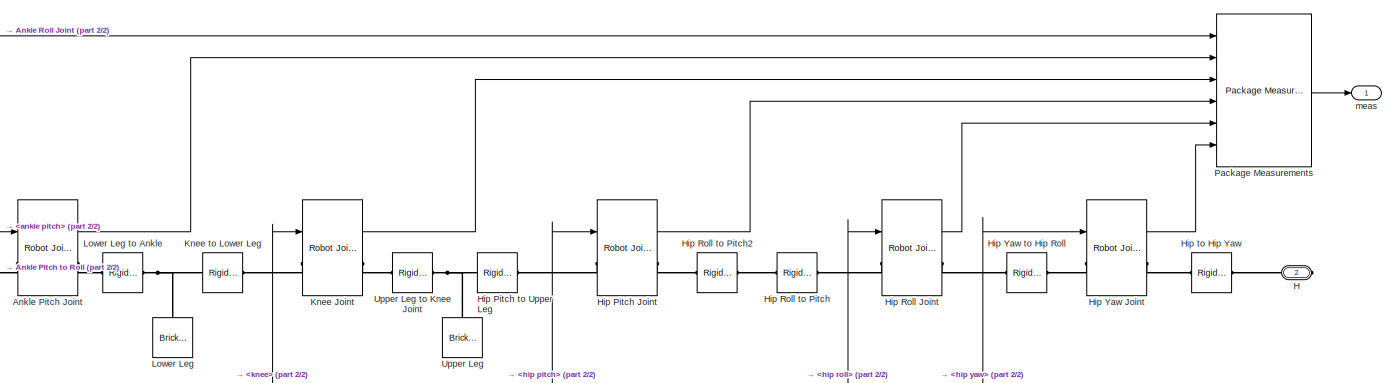
[diagram: Walking Robot/Robot Leg L - part 1/2, middle right region]
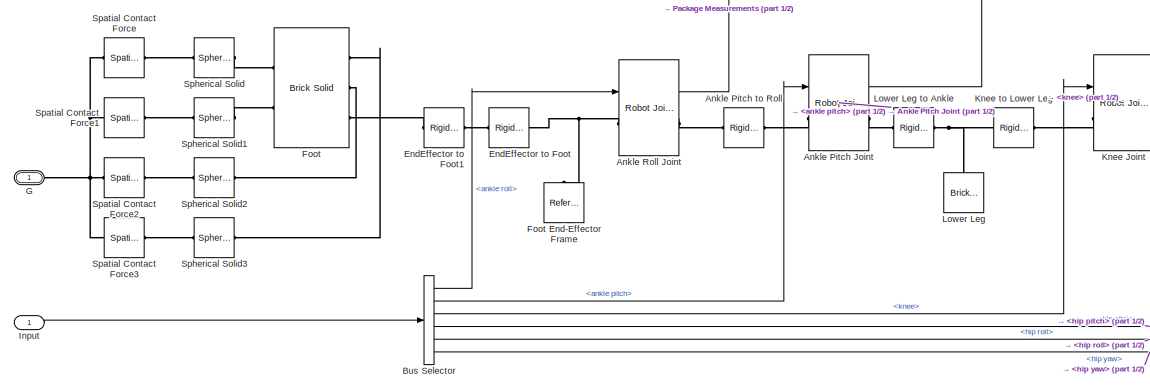
[diagram: Walking Robot/Robot Leg L - part 2/2, middle left region]
BLOCK [SubSystem] Walking Robot/Robot Leg L
  Ports = [1, 1, 0, 0, 0, 0, 2]
  RequestExecContextInheritance = off
BLOCK [Reference] Walking Robot/Robot Leg L/Ankle Pitch Joint  REF=$bdroot/Robot Joint
  Ports = [1, 1, 0, 0, 0, 1, 1]
  SourceBlock = $bdroot/Robot Joint
BLOCK [Reference] Walking Robot/Robot Leg L/Ankle Pitch to Roll  REF=sm_lib/Frames and
Transforms/Rigid
Transform
  Ports = [0, 0, 0, 0, 0, 1, 1]
  SourceBlock = sm_lib/Frames and\nTransforms/Rigid\nTransform
  SourceProductBaseCode = MS
  SourceProductName = Simscape Multibody
  SourceType = Rigid\nTransform
BLOCK [Reference] Walking Robot/Robot Leg L/Ankle Roll Joint  REF=$bdroot/Robot Joint
  Ports = [1, 1, 0, 0, 0, 1, 1]
  SourceBlock = $bdroot/Robot Joint
BLOCK [BusSelector] Walking Robot/Robot Leg L/Bus Selector
  OutputAsBus = off
  OutputSignals = ankle roll,ankle pitch,knee,hip pitch,hip roll,hip yaw
  Ports = [1, 6]
BLOCK [Reference] Walking Robot/Robot Leg L/EndEffector to Foot  REF=sm_lib/Frames and
Transforms/Rigid
Transform
  Ports = [0, 0, 0, 0, 0, 1, 1]
  SourceBlock = sm_lib/Frames and\nTransforms/Rigid\nTransform
  SourceProductBaseCode = MS
  SourceProductName = Simscape Multibody
  SourceType = Rigid\nTransform
BLOCK [Reference] Walking Robot/Robot Leg L/EndEffector to Foot1  REF=sm_lib/Frames and
Transforms/Rigid
Transform
  Ports = [0, 0, 0, 0, 0, 1, 1]
  SourceBlock = sm_lib/Frames and\nTransforms/Rigid\nTransform
  SourceProductBaseCode = MS
  SourceProductName = Simscape Multibody
  SourceType = Rigid\nTransform
BLOCK [Reference] Walking Robot/Robot Leg L/Foot  REF=sm_lib/Body Elements/Brick Solid
  Ports = [0, 0, 0, 0, 0, 3, 2]
  SourceBlock = sm_lib/Body Elements/Brick Solid
  SourceProductBaseCode = MS
  SourceProductName = Simscape Multibody
  SourceType = Brick Solid
BLOCK [Reference] Walking Robot/Robot Leg L/Foot End-Effector Frame  REF=sm_lib/Frames and
Transforms/Reference
Frame
  Ports = [0, 0, 0, 0, 0, 0, 1]
  SourceBlock = sm_lib/Frames and\nTransforms/Reference\nFrame
  SourceProductBaseCode = MS
  SourceProductName = Simscape Multibody
  SourceType = Reference\nFrame
BLOCK [PMIOPort] Walking Robot/Robot Leg L/G
  Side = Right
BLOCK [PMIOPort] Walking Robot/Robot Leg L/H
  Port = 2
  Side = Right
BLOCK [Reference] Walking Robot/Robot Leg L/Hip Pitch Joint  REF=$bdroot/Robot Joint
  Ports = [1, 1, 0, 0, 0, 1, 1]
  SourceBlock = $bdroot/Robot Joint
BLOCK [Reference] Walking Robot/Robot Leg L/Hip Pitch to Upper Leg  REF=sm_lib/Frames and
Transforms/Rigid
Transform
  Ports = [0, 0, 0, 0, 0, 1, 1]
  SourceBlock = sm_lib/Frames and\nTransforms/Rigid\nTransform
  SourceProductBaseCode = MS
  SourceProductName = Simscape Multibody
  SourceType = Rigid\nTransform
BLOCK [Reference] Walking Robot/Robot Leg L/Hip Roll Joint  REF=$bdroot/Robot Joint
  Ports = [1, 1, 0, 0, 0, 1, 1]
  SourceBlock = $bdroot/Robot Joint
BLOCK [Reference] Walking Robot/Robot Leg L/Hip Roll to Pitch  REF=sm_lib/Frames and
Transforms/Rigid
Transform
  Ports = [0, 0, 0, 0, 0, 1, 1]
  SourceBlock = sm_lib/Frames and\nTransforms/Rigid\nTransform
  SourceProductBaseCode = MS
  SourceProductName = Simscape Multibody
  SourceType = Rigid\nTransform
BLOCK [Reference] Walking Robot/Robot Leg L/Hip Roll to Pitch2  REF=sm_lib/Frames and
Transforms/Rigid
Transform
  Ports = [0, 0, 0, 0, 0, 1, 1]
  SourceBlock = sm_lib/Frames and\nTransforms/Rigid\nTransform
  SourceProductBaseCode = MS
  SourceProductName = Simscape Multibody
  SourceType = Rigid\nTransform
BLOCK [Reference] Walking Robot/Robot Leg L/Hip Yaw Joint  REF=$bdroot/Robot Joint
  Ports = [1, 1, 0, 0, 0, 1, 1]
  SourceBlock = $bdroot/Robot Joint
BLOCK [Reference] Walking Robot/Robot Leg L/Hip Yaw to Hip Roll  REF=sm_lib/Frames and
Transforms/Rigid
Transform
  Ports = [0, 0, 0, 0, 0, 1, 1]
  SourceBlock = sm_lib/Frames and\nTransforms/Rigid\nTransform
  SourceProductBaseCode = MS
  SourceProductName = Simscape Multibody
  SourceType = Rigid\nTransform
BLOCK [Reference] Walking Robot/Robot Leg L/Hip to Hip Yaw  REF=sm_lib/Frames and
Transforms/Rigid
Transform
  Ports = [0, 0, 0, 0, 0, 1, 1]
  SourceBlock = sm_lib/Frames and\nTransforms/Rigid\nTransform
  SourceProductBaseCode = MS
  SourceProductName = Simscape Multibody
  SourceType = Rigid\nTransform
BLOCK [Inport] Walking Robot/Robot Leg L/Input
  IconDisplay = Port number
BLOCK [Reference] Walking Robot/Robot Leg L/Knee Joint  REF=$bdroot/Robot Joint
  Ports = [1, 1, 0, 0, 0, 1, 1]
  SourceBlock = $bdroot/Robot Joint
BLOCK [Reference] Walking Robot/Robot Leg L/Knee to Lower Leg  REF=sm_lib/Frames and
Transforms/Rigid
Transform
  Ports = [0, 0, 0, 0, 0, 1, 1]
  SourceBlock = sm_lib/Frames and\nTransforms/Rigid\nTransform
  SourceProductBaseCode = MS
  SourceProductName = Simscape Multibody
  SourceType = Rigid\nTransform
BLOCK [Reference] Walking Robot/Robot Leg L/Lower Leg  REF=sm_lib/Body Elements/Brick Solid
  Ports = [0, 0, 0, 0, 0, 0, 1]
  SourceBlock = sm_lib/Body Elements/Brick Solid
  SourceProductBaseCode = MS
  SourceProductName = Simscape Multibody
  SourceType = Brick Solid
BLOCK [Reference] Walking Robot/Robot Leg L/Lower Leg to Ankle  REF=sm_lib/Frames and
Transforms/Rigid
Transform
  Ports = [0, 0, 0, 0, 0, 1, 1]
  SourceBlock = sm_lib/Frames and\nTransforms/Rigid\nTransform
  SourceProductBaseCode = MS
  SourceProductName = Simscape Multibody
  SourceType = Rigid\nTransform
BLOCK [Reference] Walking Robot/Robot Leg L/Package Measurements  REF=$bdroot/Package Measurements
  Ports = [6, 1]
  SourceBlock = $bdroot/Package Measurements
  SourceType = SubSystem
BLOCK [Reference] Walking Robot/Robot Leg L/Spatial Contact Force  REF=sm_lib/Forces and
Torques/Spatial
Contact Force
  Ports = [0, 0, 0, 0, 0, 1, 1]
  SourceBlock = sm_lib/Forces and\nTorques/Spatial\nContact Force
  SourceProductBaseCode = MS
  SourceProductName = Simscape Multibody
  SourceType = Spatial\nContact Force
BLOCK [Reference] Walking Robot/Robot Leg L/Spatial Contact Force1  REF=sm_lib/Forces and
Torques/Spatial
Contact Force
  Ports = [0, 0, 0, 0, 0, 1, 1]
  SourceBlock = sm_lib/Forces and\nTorques/Spatial\nContact Force
  SourceProductBaseCode = MS
  SourceProductName = Simscape Multibody
  SourceType = Spatial\nContact Force
BLOCK [Reference] Walking Robot/Robot Leg L/Spatial Contact Force2  REF=sm_lib/Forces and
Torques/Spatial
Contact Force
  Ports = [0, 0, 0, 0, 0, 1, 1]
  SourceBlock = sm_lib/Forces and\nTorques/Spatial\nContact Force
  SourceProductBaseCode = MS
  SourceProductName = Simscape Multibody
  SourceType = Spatial\nContact Force
BLOCK [Reference] Walking Robot/Robot Leg L/Spatial Contact Force3  REF=sm_lib/Forces and
Torques/Spatial
Contact Force
  Ports = [0, 0, 0, 0, 0, 1, 1]
  SourceBlock = sm_lib/Forces and\nTorques/Spatial\nContact Force
  SourceProductBaseCode = MS
  SourceProductName = Simscape Multibody
  SourceType = Spatial\nContact Force
BLOCK [Reference] Walking Robot/Robot Leg L/Spherical Solid  REF=sm_lib/Body Elements/Spherical Solid
  Ports = [0, 0, 0, 0, 0, 1, 1]
  SourceBlock = sm_lib/Body Elements/Spherical Solid
  SourceProductBaseCode = MS
  SourceProductName = Simscape Multibody
  SourceType = Spherical Solid
BLOCK [Reference] Walking Robot/Robot Leg L/Spherical Solid1  REF=sm_lib/Body Elements/Spherical Solid
  Ports = [0, 0, 0, 0, 0, 1, 1]
  SourceBlock = sm_lib/Body Elements/Spherical Solid
  SourceProductBaseCode = MS
  SourceProductName = Simscape Multibody
  SourceType = Spherical Solid
BLOCK [Reference] Walking Robot/Robot Leg L/Spherical Solid2  REF=sm_lib/Body Elements/Spherical Solid
  Ports = [0, 0, 0, 0, 0, 1, 1]
  SourceBlock = sm_lib/Body Elements/Spherical Solid
  SourceProductBaseCode = MS
  SourceProductName = Simscape Multibody
  SourceType = Spherical Solid
BLOCK [Reference] Walking Robot/Robot Leg L/Spherical Solid3  REF=sm_lib/Body Elements/Spherical Solid
  Ports = [0, 0, 0, 0, 0, 1, 1]
  SourceBlock = sm_lib/Body Elements/Spherical Solid
  SourceProductBaseCode = MS
  SourceProductName = Simscape Multibody
  SourceType = Spherical Solid
BLOCK [Reference] Walking Robot/Robot Leg L/Upper Leg  REF=sm_lib/Body Elements/Brick Solid
  Ports = [0, 0, 0, 0, 0, 0, 1]
  SourceBlock = sm_lib/Body Elements/Brick Solid
  SourceProductBaseCode = MS
  SourceProductName = Simscape Multibody
  SourceType = Brick Solid
BLOCK [Reference] Walking Robot/Robot Leg L/Upper Leg to Knee Joint  REF=sm_lib/Frames and
Transforms/Rigid
Transform
  Ports = [0, 0, 0, 0, 0, 1, 1]
  SourceBlock = sm_lib/Frames and\nTransforms/Rigid\nTransform
  SourceProductBaseCode = MS
  SourceProductName = Simscape Multibody
  SourceType = Rigid\nTransform
BLOCK [Outport] Walking Robot/Robot Leg L/meas
  IconDisplay = Port number
  VectorParamsAs1DForOutWhenUnconnected = off
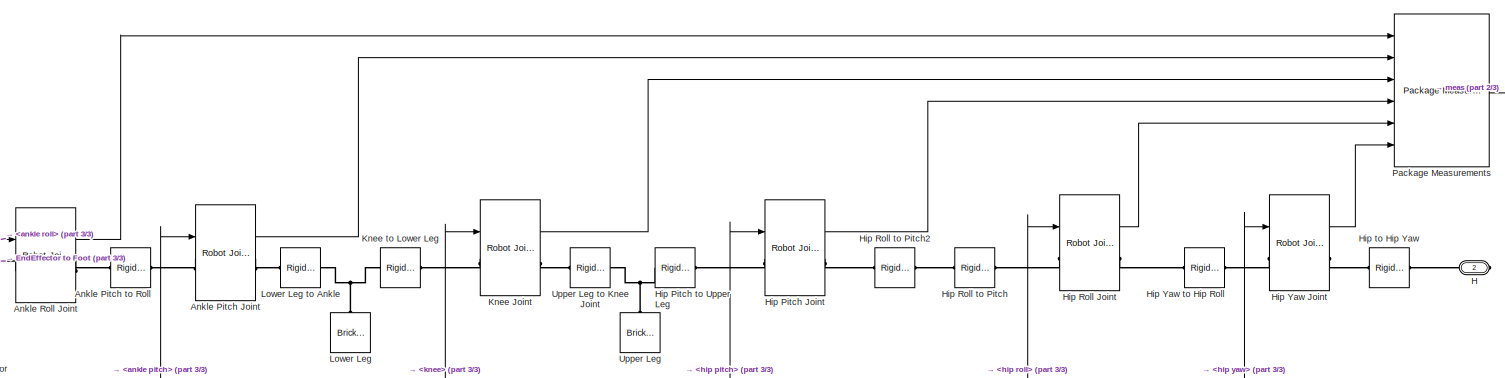
[diagram: Walking Robot/Robot Leg R - part 1/3, central region]
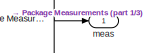
[diagram: Walking Robot/Robot Leg R - part 2/3, top right region]
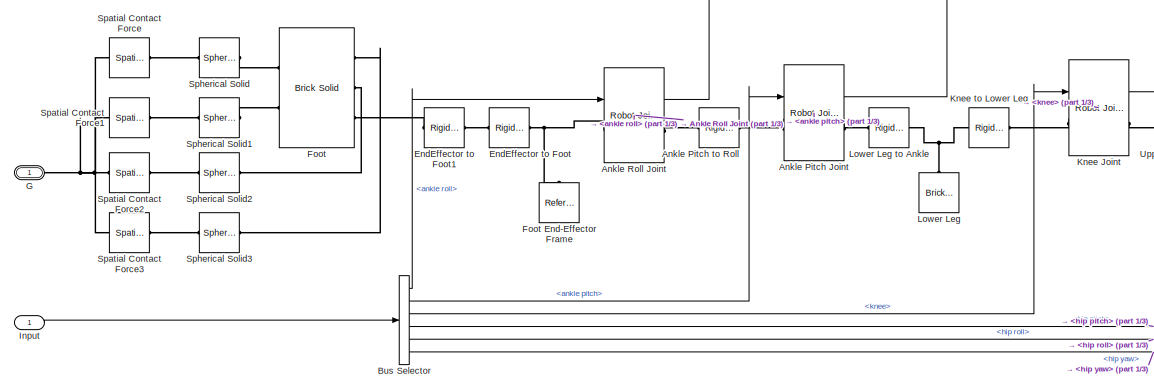
[diagram: Walking Robot/Robot Leg R - part 3/3, middle left region]
BLOCK [SubSystem] Walking Robot/Robot Leg R
  Ports = [1, 1, 0, 0, 0, 0, 2]
  RequestExecContextInheritance = off
BLOCK [Reference] Walking Robot/Robot Leg R/Ankle Pitch Joint  REF=$bdroot/Robot Joint
  Ports = [1, 1, 0, 0, 0, 1, 1]
  SourceBlock = $bdroot/Robot Joint
BLOCK [Reference] Walking Robot/Robot Leg R/Ankle Pitch to Roll  REF=sm_lib/Frames and
Transforms/Rigid
Transform
  Ports = [0, 0, 0, 0, 0, 1, 1]
  SourceBlock = sm_lib/Frames and\nTransforms/Rigid\nTransform
  SourceProductBaseCode = MS
  SourceProductName = Simscape Multibody
  SourceType = Rigid\nTransform
BLOCK [Reference] Walking Robot/Robot Leg R/Ankle Roll Joint  REF=$bdroot/Robot Joint
  Ports = [1, 1, 0, 0, 0, 1, 1]
  SourceBlock = $bdroot/Robot Joint
BLOCK [BusSelector] Walking Robot/Robot Leg R/Bus Selector
  OutputAsBus = off
  OutputSignals = ankle roll,ankle pitch,knee,hip pitch,hip roll,hip yaw
  Ports = [1, 6]
BLOCK [Reference] Walking Robot/Robot Leg R/EndEffector to Foot  REF=sm_lib/Frames and
Transforms/Rigid
Transform
  Ports = [0, 0, 0, 0, 0, 1, 1]
  SourceBlock = sm_lib/Frames and\nTransforms/Rigid\nTransform
  SourceProductBaseCode = MS
  SourceProductName = Simscape Multibody
  SourceType = Rigid\nTransform
BLOCK [Reference] Walking Robot/Robot Leg R/EndEffector to Foot1  REF=sm_lib/Frames and
Transforms/Rigid
Transform
  Ports = [0, 0, 0, 0, 0, 1, 1]
  SourceBlock = sm_lib/Frames and\nTransforms/Rigid\nTransform
  SourceProductBaseCode = MS
  SourceProductName = Simscape Multibody
  SourceType = Rigid\nTransform
BLOCK [Reference] Walking Robot/Robot Leg R/Foot  REF=sm_lib/Body Elements/Brick Solid
  Ports = [0, 0, 0, 0, 0, 3, 2]
  SourceBlock = sm_lib/Body Elements/Brick Solid
  SourceProductBaseCode = MS
  SourceProductName = Simscape Multibody
  SourceType = Brick Solid
BLOCK [Reference] Walking Robot/Robot Leg R/Foot End-Effector Frame  REF=sm_lib/Frames and
Transforms/Reference
Frame
  Ports = [0, 0, 0, 0, 0, 0, 1]
  SourceBlock = sm_lib/Frames and\nTransforms/Reference\nFrame
  SourceProductBaseCode = MS
  SourceProductName = Simscape Multibody
  SourceType = Reference\nFrame
BLOCK [PMIOPort] Walking Robot/Robot Leg R/G
  Side = Right
BLOCK [PMIOPort] Walking Robot/Robot Leg R/H
  Port = 2
  Side = Right
BLOCK [Reference] Walking Robot/Robot Leg R/Hip Pitch Joint  REF=$bdroot/Robot Joint
  Ports = [1, 1, 0, 0, 0, 1, 1]
  SourceBlock = $bdroot/Robot Joint
BLOCK [Reference] Walking Robot/Robot Leg R/Hip Pitch to Upper Leg  REF=sm_lib/Frames and
Transforms/Rigid
Transform
  Ports = [0, 0, 0, 0, 0, 1, 1]
  SourceBlock = sm_lib/Frames and\nTransforms/Rigid\nTransform
  SourceProductBaseCode = MS
  SourceProductName = Simscape Multibody
  SourceType = Rigid\nTransform
BLOCK [Reference] Walking Robot/Robot Leg R/Hip Roll Joint  REF=$bdroot/Robot Joint
  Ports = [1, 1, 0, 0, 0, 1, 1]
  SourceBlock = $bdroot/Robot Joint
BLOCK [Reference] Walking Robot/Robot Leg R/Hip Roll to Pitch  REF=sm_lib/Frames and
Transforms/Rigid
Transform
  Ports = [0, 0, 0, 0, 0, 1, 1]
  SourceBlock = sm_lib/Frames and\nTransforms/Rigid\nTransform
  SourceProductBaseCode = MS
  SourceProductName = Simscape Multibody
  SourceType = Rigid\nTransform
BLOCK [Reference] Walking Robot/Robot Leg R/Hip Roll to Pitch2  REF=sm_lib/Frames and
Transforms/Rigid
Transform
  Ports = [0, 0, 0, 0, 0, 1, 1]
  SourceBlock = sm_lib/Frames and\nTransforms/Rigid\nTransform
  SourceProductBaseCode = MS
  SourceProductName = Simscape Multibody
  SourceType = Rigid\nTransform
BLOCK [Reference] Walking Robot/Robot Leg R/Hip Yaw Joint  REF=$bdroot/Robot Joint
  Ports = [1, 1, 0, 0, 0, 1, 1]
  SourceBlock = $bdroot/Robot Joint
BLOCK [Reference] Walking Robot/Robot Leg R/Hip Yaw to Hip Roll  REF=sm_lib/Frames and
Transforms/Rigid
Transform
  Ports = [0, 0, 0, 0, 0, 1, 1]
  SourceBlock = sm_lib/Frames and\nTransforms/Rigid\nTransform
  SourceProductBaseCode = MS
  SourceProductName = Simscape Multibody
  SourceType = Rigid\nTransform
BLOCK [Reference] Walking Robot/Robot Leg R/Hip to Hip Yaw  REF=sm_lib/Frames and
Transforms/Rigid
Transform
  Ports = [0, 0, 0, 0, 0, 1, 1]
  SourceBlock = sm_lib/Frames and\nTransforms/Rigid\nTransform
  SourceProductBaseCode = MS
  SourceProductName = Simscape Multibody
  SourceType = Rigid\nTransform
BLOCK [Inport] Walking Robot/Robot Leg R/Input
  IconDisplay = Port number
BLOCK [Reference] Walking Robot/Robot Leg R/Knee Joint  REF=$bdroot/Robot Joint
  Ports = [1, 1, 0, 0, 0, 1, 1]
  SourceBlock = $bdroot/Robot Joint
BLOCK [Reference] Walking Robot/Robot Leg R/Knee to Lower Leg  REF=sm_lib/Frames and
Transforms/Rigid
Transform
  Ports = [0, 0, 0, 0, 0, 1, 1]
  SourceBlock = sm_lib/Frames and\nTransforms/Rigid\nTransform
  SourceProductBaseCode = MS
  SourceProductName = Simscape Multibody
  SourceType = Rigid\nTransform
BLOCK [Reference] Walking Robot/Robot Leg R/Lower Leg  REF=sm_lib/Body Elements/Brick Solid
  Ports = [0, 0, 0, 0, 0, 0, 1]
  SourceBlock = sm_lib/Body Elements/Brick Solid
  SourceProductBaseCode = MS
  SourceProductName = Simscape Multibody
  SourceType = Brick Solid
BLOCK [Reference] Walking Robot/Robot Leg R/Lower Leg to Ankle  REF=sm_lib/Frames and
Transforms/Rigid
Transform
  Ports = [0, 0, 0, 0, 0, 1, 1]
  SourceBlock = sm_lib/Frames and\nTransforms/Rigid\nTransform
  SourceProductBaseCode = MS
  SourceProductName = Simscape Multibody
  SourceType = Rigid\nTransform
BLOCK [Reference] Walking Robot/Robot Leg R/Package Measurements  REF=$bdroot/Package Measurements
  Ports = [6, 1]
  SourceBlock = $bdroot/Package Measurements
  SourceType = SubSystem
BLOCK [Reference] Walking Robot/Robot Leg R/Spatial Contact Force  REF=sm_lib/Forces and
Torques/Spatial
Contact Force
  Ports = [0, 0, 0, 0, 0, 1, 1]
  SourceBlock = sm_lib/Forces and\nTorques/Spatial\nContact Force
  SourceProductBaseCode = MS
  SourceProductName = Simscape Multibody
  SourceType = Spatial\nContact Force
BLOCK [Reference] Walking Robot/Robot Leg R/Spatial Contact Force1  REF=sm_lib/Forces and
Torques/Spatial
Contact Force
  Ports = [0, 0, 0, 0, 0, 1, 1]
  SourceBlock = sm_lib/Forces and\nTorques/Spatial\nContact Force
  SourceProductBaseCode = MS
  SourceProductName = Simscape Multibody
  SourceType = Spatial\nContact Force
BLOCK [Reference] Walking Robot/Robot Leg R/Spatial Contact Force2  REF=sm_lib/Forces and
Torques/Spatial
Contact Force
  Ports = [0, 0, 0, 0, 0, 1, 1]
  SourceBlock = sm_lib/Forces and\nTorques/Spatial\nContact Force
  SourceProductBaseCode = MS
  SourceProductName = Simscape Multibody
  SourceType = Spatial\nContact Force
BLOCK [Reference] Walking Robot/Robot Leg R/Spatial Contact Force3  REF=sm_lib/Forces and
Torques/Spatial
Contact Force
  Ports = [0, 0, 0, 0, 0, 1, 1]
  SourceBlock = sm_lib/Forces and\nTorques/Spatial\nContact Force
  SourceProductBaseCode = MS
  SourceProductName = Simscape Multibody
  SourceType = Spatial\nContact Force
BLOCK [Reference] Walking Robot/Robot Leg R/Spherical Solid  REF=sm_lib/Body Elements/Spherical Solid
  Ports = [0, 0, 0, 0, 0, 1, 1]
  SourceBlock = sm_lib/Body Elements/Spherical Solid
  SourceProductBaseCode = MS
  SourceProductName = Simscape Multibody
  SourceType = Spherical Solid
BLOCK [Reference] Walking Robot/Robot Leg R/Spherical Solid1  REF=sm_lib/Body Elements/Spherical Solid
  Ports = [0, 0, 0, 0, 0, 1, 1]
  SourceBlock = sm_lib/Body Elements/Spherical Solid
  SourceProductBaseCode = MS
  SourceProductName = Simscape Multibody
  SourceType = Spherical Solid
BLOCK [Reference] Walking Robot/Robot Leg R/Spherical Solid2  REF=sm_lib/Body Elements/Spherical Solid
  Ports = [0, 0, 0, 0, 0, 1, 1]
  SourceBlock = sm_lib/Body Elements/Spherical Solid
  SourceProductBaseCode = MS
  SourceProductName = Simscape Multibody
  SourceType = Spherical Solid
BLOCK [Reference] Walking Robot/Robot Leg R/Spherical Solid3  REF=sm_lib/Body Elements/Spherical Solid
  Ports = [0, 0, 0, 0, 0, 1, 1]
  SourceBlock = sm_lib/Body Elements/Spherical Solid
  SourceProductBaseCode = MS
  SourceProductName = Simscape Multibody
  SourceType = Spherical Solid
BLOCK [Reference] Walking Robot/Robot Leg R/Upper Leg  REF=sm_lib/Body Elements/Brick Solid
  Ports = [0, 0, 0, 0, 0, 0, 1]
  SourceBlock = sm_lib/Body Elements/Brick Solid
  SourceProductBaseCode = MS
  SourceProductName = Simscape Multibody
  SourceType = Brick Solid
BLOCK [Reference] Walking Robot/Robot Leg R/Upper Leg to Knee Joint  REF=sm_lib/Frames and
Transforms/Rigid
Transform
  Ports = [0, 0, 0, 0, 0, 1, 1]
  SourceBlock = sm_lib/Frames and\nTransforms/Rigid\nTransform
  SourceProductBaseCode = MS
  SourceProductName = Simscape Multibody
  SourceType = Rigid\nTransform
BLOCK [Outport] Walking Robot/Robot Leg R/meas
  IconDisplay = Port number
  VectorParamsAs1DForOutWhenUnconnected = off
BLOCK [Reference] Walking Robot/Solver Configuration  REF=nesl_utility/Solver
Configuration
  Ports = [0, 0, 0, 0, 0, 0, 1]
  SourceBlock = nesl_utility/Solver\nConfiguration
  SourceProductBaseCode = SS
  SourceProductName = Simscape
  SourceType = Solver\nConfiguration
BLOCK [Reference] Walking Robot/Torso  REF=sm_lib/Body Elements/Brick Solid
  Ports = [0, 0, 0, 0, 0, 0, 1]
  SourceBlock = sm_lib/Body Elements/Brick Solid
  SourceProductBaseCode = MS
  SourceProductName = Simscape Multibody
  SourceType = Brick Solid
BLOCK [Reference] Walking Robot/Torso to Left Hip  REF=sm_lib/Frames and
Transforms/Rigid
Transform
  Ports = [0, 0, 0, 0, 0, 1, 1]
  SourceBlock = sm_lib/Frames and\nTransforms/Rigid\nTransform
  SourceProductBaseCode = MS
  SourceProductName = Simscape Multibody
  SourceType = Rigid\nTransform
BLOCK [Reference] Walking Robot/Torso to Right Hip  REF=sm_lib/Frames and
Transforms/Rigid
Transform
  Ports = [0, 0, 0, 0, 0, 1, 1]
  SourceBlock = sm_lib/Frames and\nTransforms/Rigid\nTransform
  SourceProductBaseCode = MS
  SourceProductName = Simscape Multibody
  SourceType = Rigid\nTransform
BLOCK [Reference] Walking Robot/Transform Sensor  REF=sm_lib/Frames and
Transforms/Transform
Sensor
  Ports = [0, 0, 0, 0, 0, 1, 4]
  SourceBlock = sm_lib/Frames and\nTransforms/Transform\nSensor
  SourceProductBaseCode = MS
  SourceProductName = Simscape Multibody
  SourceType = Transform\nSensor
BLOCK [Reference] Walking Robot/World Frame  REF=sm_lib/Frames and
Transforms/World Frame
  Ports = [0, 0, 0, 0, 0, 0, 1]
  SourceBlock = sm_lib/Frames and\nTransforms/World Frame
  SourceProductBaseCode = MS
  SourceProductName = Simscape Multibody
  SourceType = World Frame
BLOCK [Reference] Walking Robot/World Plane  REF=sm_lib/Body Elements/Brick Solid
  Ports = [0, 0, 0, 0, 0, 1, 1]
  SourceBlock = sm_lib/Body Elements/Brick Solid
  SourceProductBaseCode = MS
  SourceProductName = Simscape Multibody
  SourceType = Brick Solid
BLOCK [Outport] Walking Robot/measBody
  IconDisplay = Port number
  VectorParamsAs1DForOutWhenUnconnected = off
BLOCK [Outport] Walking Robot/measL
  IconDisplay = Port number
  Port = 3
  VectorParamsAs1DForOutWhenUnconnected = off
BLOCK [Outport] Walking Robot/measR
  IconDisplay = Port number
  Port = 2
  VectorParamsAs1DForOutWhenUnconnected = off
ANNOTATION (root): Walking Robot Model Utilities <copyright redacted>
ANNOTATION (root): Control Design Example
ANNOTATION (root): Main Example
ANNOTATION (root): Reinforcement Learning Example
ANNOTATION Robot Joint: 1) Add Subsystem or Model blocks as valid variant choices. 2) You cannot connect blocks at this level. At simulation, connectivity is automatically determined, based on the active variant and port name matching.
ANNOTATION Robot Joint Controller: 1) Add Subsystem or Model blocks as valid variant choices. 2) You cannot connect blocks at this level. At simulation, connectivity is automatically determined, based on the active variant and port name matching.
ANNOTATION Walking Robot (Control Design)/Robot Joint Controller: 1) Add Subsystem or Model blocks as valid variant choices. 2) You cannot connect blocks at this level. At simulation, connectivity is automatically determined, based on the active variant and port name matching.
LINE Convert to Local Frame/Constant:1 -> Convert to Local Frame/Mux:3
LINE Convert to Local Frame/Demux1:1 -> Convert to Local Frame/ax_loc:1
LINE Convert to Local Frame/Demux1:2 -> Convert to Local Frame/ay_loc:1
LINE Convert to Local Frame/Matrix Multiply:1 -> Convert to Local Frame/Selector:1
LINE Convert to Local Frame/Mux:1 -> Convert to Local Frame/Matrix Multiply:2
LINE Convert to Local Frame/R:1 -> Convert to Local Frame/Transpose:1
LINE Convert to Local Frame/Selector:1 -> Convert to Local Frame/Demux1:1
LINE Convert to Local Frame/Transpose:1 -> Convert to Local Frame/Matrix Multiply:1
LINE Convert to Local Frame/ax_glob:1 -> Convert to Local Frame/Mux:1
LINE Convert to Local Frame/ay_glob:1 -> Convert to Local Frame/Mux:2
LINE Create Joint Angle Bus/Bus Creator:1 -> Create Joint Angle Bus/bus:1
LINE Create Joint Angle Bus/Demux:1 -> Create Joint Angle Bus/Bus Creator:1
LINE Create Joint Angle Bus/Demux:2 -> Create Joint Angle Bus/Bus Creator:2
LINE Create Joint Angle Bus/Demux:3 -> Create Joint Angle Bus/Gain:1
LINE Create Joint Angle Bus/Demux:4 -> Create Joint Angle Bus/Gain1:1
LINE Create Joint Angle Bus/Demux:5 -> Create Joint Angle Bus/Gain2:1
LINE Create Joint Angle Bus/Demux:6 -> Create Joint Angle Bus/Bus Creator:6
LINE Create Joint Angle Bus/Gain1:1 -> Create Joint Angle Bus/Bus Creator:4
LINE Create Joint Angle Bus/Gain2:1 -> Create Joint Angle Bus/Bus Creator:5
LINE Create Joint Angle Bus/Gain:1 -> Create Joint Angle Bus/Bus Creator:3
LINE Create Joint Angle Bus/vec:1 -> Create Joint Angle Bus/Demux:1
LINE Extract Measurements/Bus Selector:1 -> Extract Measurements/angle:1
LINE Extract Measurements/Bus Selector:2 -> Extract Measurements/torque:1
LINE Extract Measurements/meas:1 -> Extract Measurements/Bus Selector:1
LINE Leg Joint with Limits/Bus Creator:1 -> Leg Joint with Limits/meas:1
LINE Leg Joint with Limits/PS-Simulink Converter1:1 -> Leg Joint with Limits/Bus Creator:2
LINE Leg Joint with Limits/PS-Simulink Converter2:1 -> Leg Joint with Limits/Bus Creator:3
NET Leg Joint with Limits/t:1 -> Leg Joint with Limits/Bus Creator:1, Leg Joint with Limits/Simulink-PS Converter:1
LINE Package Measurements 2D/Bus Creator3:1 -> Package Measurements 2D/meas:1
LINE Package Measurements 2D/Extract Measurements/Bus Selector:1 -> Package Measurements 2D/Extract Measurements/angle:1
LINE Package Measurements 2D/Extract Measurements/Bus Selector:2 -> Package Measurements 2D/Extract Measurements/speed:1
LINE Package Measurements 2D/Extract Measurements/Bus Selector:3 -> Package Measurements 2D/Extract Measurements/torque:1
LINE Package Measurements 2D/Extract Measurements/meas:1 -> Package Measurements 2D/Extract Measurements/Bus Selector:1
LINE Package Measurements 2D/Extract Measurements1/Bus Selector:1 -> Package Measurements 2D/Extract Measurements1/angle:1
LINE Package Measurements 2D/Extract Measurements1/Bus Selector:2 -> Package Measurements 2D/Extract Measurements1/speed:1
LINE Package Measurements 2D/Extract Measurements1/Bus Selector:3 -> Package Measurements 2D/Extract Measurements1/torque:1
LINE Package Measurements 2D/Extract Measurements1/meas:1 -> Package Measurements 2D/Extract Measurements1/Bus Selector:1
LINE Package Measurements 2D/Extract Measurements1:1 -> Package Measurements 2D/Bus Creator3:6
LINE Package Measurements 2D/Extract Measurements1:2 -> Package Measurements 2D/Bus Creator3:7
LINE Package Measurements 2D/Extract Measurements1:3 -> Package Measurements 2D/Bus Creator3:8
LINE Package Measurements 2D/Extract Measurements2/Bus Selector:1 -> Package Measurements 2D/Extract Measurements2/angle:1
LINE Package Measurements 2D/Extract Measurements2/Bus Selector:2 -> Package Measurements 2D/Extract Measurements2/speed:1
LINE Package Measurements 2D/Extract Measurements2/Bus Selector:3 -> Package Measurements 2D/Extract Measurements2/torque:1
LINE Package Measurements 2D/Extract Measurements2/meas:1 -> Package Measurements 2D/Extract Measurements2/Bus Selector:1
LINE Package Measurements 2D/Extract Measurements2:1 -> Package Measurements 2D/Bus Creator3:9
LINE Package Measurements 2D/Extract Measurements2:2 -> Package Measurements 2D/Bus Creator3:10
LINE Package Measurements 2D/Extract Measurements2:3 -> Package Measurements 2D/Bus Creator3:11
LINE Package Measurements 2D/Extract Measurements:1 -> Package Measurements 2D/Bus Creator3:3
LINE Package Measurements 2D/Extract Measurements:2 -> Package Measurements 2D/Bus Creator3:4
LINE Package Measurements 2D/Extract Measurements:3 -> Package Measurements 2D/Bus Creator3:5
LINE Package Measurements 2D/Ff:1 -> Package Measurements 2D/Bus Creator3:2
LINE Package Measurements 2D/Fn:1 -> Package Measurements 2D/Bus Creator3:1
LINE Package Measurements 2D/ankle:1 -> Package Measurements 2D/Extract Measurements:1
LINE Package Measurements 2D/hip:1 -> Package Measurements 2D/Extract Measurements2:1
LINE Package Measurements 2D/knee:1 -> Package Measurements 2D/Extract Measurements1:1
LINE Package Measurements 3D/Bus Creator3:1 -> Package Measurements 3D/meas:1
LINE Package Measurements 3D/Extract Measurements/Bus Selector:1 -> Package Measurements 3D/Extract Measurements/angle:1
LINE Package Measurements 3D/Extract Measurements/Bus Selector:2 -> Package Measurements 3D/Extract Measurements/speed:1
LINE Package Measurements 3D/Extract Measurements/Bus Selector:3 -> Package Measurements 3D/Extract Measurements/torque:1
LINE Package Measurements 3D/Extract Measurements/meas:1 -> Package Measurements 3D/Extract Measurements/Bus Selector:1
LINE Package Measurements 3D/Extract Measurements1/Bus Selector:1 -> Package Measurements 3D/Extract Measurements1/angle:1
LINE Package Measurements 3D/Extract Measurements1/Bus Selector:2 -> Package Measurements 3D/Extract Measurements1/speed:1
LINE Package Measurements 3D/Extract Measurements1/Bus Selector:3 -> Package Measurements 3D/Extract Measurements1/torque:1
LINE Package Measurements 3D/Extract Measurements1/meas:1 -> Package Measurements 3D/Extract Measurements1/Bus Selector:1
LINE Package Measurements 3D/Extract Measurements1:1 -> Package Measurements 3D/Bus Creator3:6
LINE Package Measurements 3D/Extract Measurements1:2 -> Package Measurements 3D/Bus Creator3:7
LINE Package Measurements 3D/Extract Measurements1:3 -> Package Measurements 3D/Bus Creator3:8
LINE Package Measurements 3D/Extract Measurements2/Bus Selector:1 -> Package Measurements 3D/Extract Measurements2/angle:1
LINE Package Measurements 3D/Extract Measurements2/Bus Selector:2 -> Package Measurements 3D/Extract Measurements2/speed:1
LINE Package Measurements 3D/Extract Measurements2/Bus Selector:3 -> Package Measurements 3D/Extract Measurements2/torque:1
LINE Package Measurements 3D/Extract Measurements2/meas:1 -> Package Measurements 3D/Extract Measurements2/Bus Selector:1
LINE Package Measurements 3D/Extract Measurements2:1 -> Package Measurements 3D/Bus Creator3:9
LINE Package Measurements 3D/Extract Measurements2:2 -> Package Measurements 3D/Bus Creator3:10
LINE Package Measurements 3D/Extract Measurements2:3 -> Package Measurements 3D/Bus Creator3:11
LINE Package Measurements 3D/Extract Measurements3/Bus Selector:1 -> Package Measurements 3D/Extract Measurements3/angle:1
LINE Package Measurements 3D/Extract Measurements3/Bus Selector:2 -> Package Measurements 3D/Extract Measurements3/speed:1
LINE Package Measurements 3D/Extract Measurements3/Bus Selector:3 -> Package Measurements 3D/Extract Measurements3/torque:1
LINE Package Measurements 3D/Extract Measurements3/meas:1 -> Package Measurements 3D/Extract Measurements3/Bus Selector:1
LINE Package Measurements 3D/Extract Measurements3:1 -> Package Measurements 3D/Bus Creator3:12
LINE Package Measurements 3D/Extract Measurements3:2 -> Package Measurements 3D/Bus Creator3:13
LINE Package Measurements 3D/Extract Measurements3:3 -> Package Measurements 3D/Bus Creator3:14
LINE Package Measurements 3D/Extract Measurements4/Bus Selector:1 -> Package Measurements 3D/Extract Measurements4/angle:1
LINE Package Measurements 3D/Extract Measurements4/Bus Selector:2 -> Package Measurements 3D/Extract Measurements4/speed:1
LINE Package Measurements 3D/Extract Measurements4/Bus Selector:3 -> Package Measurements 3D/Extract Measurements4/torque:1
LINE Package Measurements 3D/Extract Measurements4/meas:1 -> Package Measurements 3D/Extract Measurements4/Bus Selector:1
LINE Package Measurements 3D/Extract Measurements4:1 -> Package Measurements 3D/Bus Creator3:15
LINE Package Measurements 3D/Extract Measurements4:2 -> Package Measurements 3D/Bus Creator3:16
LINE Package Measurements 3D/Extract Measurements4:3 -> Package Measurements 3D/Bus Creator3:17
LINE Package Measurements 3D/Extract Measurements:1 -> Package Measurements 3D/Bus Creator3:3
LINE Package Measurements 3D/Extract Measurements:2 -> Package Measurements 3D/Bus Creator3:4
LINE Package Measurements 3D/Extract Measurements:3 -> Package Measurements 3D/Bus Creator3:5
LINE Package Measurements 3D/Ff:1 -> Package Measurements 3D/Bus Creator3:2
LINE Package Measurements 3D/Fn:1 -> Package Measurements 3D/Bus Creator3:1
LINE Package Measurements 3D/ankle_pitch:1 -> Package Measurements 3D/Extract Measurements1:1
LINE Package Measurements 3D/ankle_roll:1 -> Package Measurements 3D/Extract Measurements:1
LINE Package Measurements 3D/hip_pitch:1 -> Package Measurements 3D/Extract Measurements4:1
LINE Package Measurements 3D/hip_roll:1 -> Package Measurements 3D/Extract Measurements3:1
LINE Package Measurements 3D/knee:1 -> Package Measurements 3D/Extract Measurements2:1
LINE Package Measurements/Bus Creator3:1 -> Package Measurements/meas:1
LINE Package Measurements/Extract Measurements/Bus Selector:1 -> Package Measurements/Extract Measurements/angle:1
LINE Package Measurements/Extract Measurements/Bus Selector:2 -> Package Measurements/Extract Measurements/torque:1
LINE Package Measurements/Extract Measurements/meas:1 -> Package Measurements/Extract Measurements/Bus Selector:1
LINE Package Measurements/Extract Measurements1:1 -> Package Measurements/Bus Creator3:3
LINE Package Measurements/Extract Measurements1:2 -> Package Measurements/Bus Creator3:4
LINE Package Measurements/Extract Measurements2:1 -> Package Measurements/Bus Creator3:5
LINE Package Measurements/Extract Measurements2:2 -> Package Measurements/Bus Creator3:6
LINE Package Measurements/Extract Measurements3:1 -> Package Measurements/Bus Creator3:7
LINE Package Measurements/Extract Measurements3:2 -> Package Measurements/Bus Creator3:8
LINE Package Measurements/Extract Measurements4:1 -> Package Measurements/Bus Creator3:9
LINE Package Measurements/Extract Measurements4:2 -> Package Measurements/Bus Creator3:10
LINE Package Measurements/Extract Measurements5:1 -> Package Measurements/Bus Creator3:11
LINE Package Measurements/Extract Measurements5:2 -> Package Measurements/Bus Creator3:12
LINE Package Measurements/Extract Measurements:1 -> Package Measurements/Bus Creator3:1
LINE Package Measurements/Extract Measurements:2 -> Package Measurements/Bus Creator3:2
LINE Package Measurements/anklepitch:1 -> Package Measurements/Extract Measurements1:1
LINE Package Measurements/ankleroll:1 -> Package Measurements/Extract Measurements:1
LINE Package Measurements/hippitch:1 -> Package Measurements/Extract Measurements3:1
LINE Package Measurements/hiproll:1 -> Package Measurements/Extract Measurements4:1
LINE Package Measurements/hipyaw:1 -> Package Measurements/Extract Measurements5:1
LINE Package Measurements/knee:1 -> Package Measurements/Extract Measurements2:1
LINE Robot Joint Controller/Motion/measL:1 -> Robot Joint Controller/Motion/Terminator:1
LINE Robot Joint Controller/Motion/measR:1 -> Robot Joint Controller/Motion/Terminator1:1
LINE Robot Joint Controller/Motion/refL:1 -> Robot Joint Controller/Motion/InputL:1
LINE Robot Joint Controller/Motion/refR:1 -> Robot Joint Controller/Motion/InputR:1
LINE Robot Joint Controller/Motor/PID Controllers L:1 -> Robot Joint Controller/Motor/InputL:1
LINE Robot Joint Controller/Motor/PID Controllers R:1 -> Robot Joint Controller/Motor/InputR:1
LINE Robot Joint Controller/Motor/measL:1 -> Robot Joint Controller/Motor/PID Controllers L:2
LINE Robot Joint Controller/Motor/measR:1 -> Robot Joint Controller/Motor/PID Controllers R:2
LINE Robot Joint Controller/Motor/refL:1 -> Robot Joint Controller/Motor/PID Controllers L:1
LINE Robot Joint Controller/Motor/refR:1 -> Robot Joint Controller/Motor/PID Controllers R:1
LINE Robot Joint Controller/Torque/PID Controllers L/Bus Creator:1 -> Robot Joint Controller/Torque/PID Controllers L/Input:1
LINE Robot Joint Controller/Torque/PID Controllers L/Bus Selector4:1 -> Robot Joint Controller/Torque/PID Controllers L/Low-Pass Filter:1
LINE Robot Joint Controller/Torque/PID Controllers L/Bus Selector4:2 -> Robot Joint Controller/Torque/PID Controllers L/Low-Pass Filter1:1
LINE Robot Joint Controller/Torque/PID Controllers L/Bus Selector4:3 -> Robot Joint Controller/Torque/PID Controllers L/Low-Pass Filter2:1
LINE Robot Joint Controller/Torque/PID Controllers L/Bus Selector4:4 -> Robot Joint Controller/Torque/PID Controllers L/Low-Pass Filter3:1
LINE Robot Joint Controller/Torque/PID Controllers L/Bus Selector4:5 -> Robot Joint Controller/Torque/PID Controllers L/Low-Pass Filter4:1
LINE Robot Joint Controller/Torque/PID Controllers L/Bus Selector4:6 -> Robot Joint Controller/Torque/PID Controllers L/Low-Pass Filter5:1
LINE Robot Joint Controller/Torque/PID Controllers L/Bus Selector:1 -> Robot Joint Controller/Torque/PID Controllers L/Sum6:2
LINE Robot Joint Controller/Torque/PID Controllers L/Bus Selector:2 -> Robot Joint Controller/Torque/PID Controllers L/Sum1:2
LINE Robot Joint Controller/Torque/PID Controllers L/Bus Selector:3 -> Robot Joint Controller/Torque/PID Controllers L/Sum2:2
LINE Robot Joint Controller/Torque/PID Controllers L/Bus Selector:4 -> Robot Joint Controller/Torque/PID Controllers L/Sum3:2
LINE Robot Joint Controller/Torque/PID Controllers L/Bus Selector:5 -> Robot Joint Controller/Torque/PID Controllers L/Sum7:2
LINE Robot Joint Controller/Torque/PID Controllers L/Bus Selector:6 -> Robot Joint Controller/Torque/PID Controllers L/Sum8:2
LINE Robot Joint Controller/Torque/PID Controllers L/Low-Pass Filter1:1 -> Robot Joint Controller/Torque/PID Controllers L/Sum1:1
LINE Robot Joint Controller/Torque/PID Controllers L/Low-Pass Filter2:1 -> Robot Joint Controller/Torque/PID Controllers L/Sum2:1
LINE Robot Joint Controller/Torque/PID Controllers L/Low-Pass Filter3:1 -> Robot Joint Controller/Torque/PID Controllers L/Sum3:1
LINE Robot Joint Controller/Torque/PID Controllers L/Low-Pass Filter4:1 -> Robot Joint Controller/Torque/PID Controllers L/Sum7:1
LINE Robot Joint Controller/Torque/PID Controllers L/Low-Pass Filter5:1 -> Robot Joint Controller/Torque/PID Controllers L/Sum8:1
LINE Robot Joint Controller/Torque/PID Controllers L/Low-Pass Filter:1 -> Robot Joint Controller/Torque/PID Controllers L/Sum6:1
LINE Robot Joint Controller/Torque/PID Controllers L/PID Ankle Pitch:1 -> Robot Joint Controller/Torque/PID Controllers L/Bus Creator:2
LINE Robot Joint Controller/Torque/PID Controllers L/PID Ankle Roll:1 -> Robot Joint Controller/Torque/PID Controllers L/Bus Creator:1
LINE Robot Joint Controller/Torque/PID Controllers L/PID Hip Pitch:1 -> Robot Joint Controller/Torque/PID Controllers L/Bus Creator:4
LINE Robot Joint Controller/Torque/PID Controllers L/PID Hip Roll:1 -> Robot Joint Controller/Torque/PID Controllers L/Bus Creator:5
LINE Robot Joint Controller/Torque/PID Controllers L/PID Hip Yaw:1 -> Robot Joint Controller/Torque/PID Controllers L/Bus Creator:6
LINE Robot Joint Controller/Torque/PID Controllers L/PID Knee:1 -> Robot Joint Controller/Torque/PID Controllers L/Bus Creator:3
LINE Robot Joint Controller/Torque/PID Controllers L/Sum1:1 -> Robot Joint Controller/Torque/PID Controllers L/PID Ankle Pitch:1
LINE Robot Joint Controller/Torque/PID Controllers L/Sum2:1 -> Robot Joint Controller/Torque/PID Controllers L/PID Knee:1
LINE Robot Joint Controller/Torque/PID Controllers L/Sum3:1 -> Robot Joint Controller/Torque/PID Controllers L/PID Hip Pitch:1
LINE Robot Joint Controller/Torque/PID Controllers L/Sum6:1 -> Robot Joint Controller/Torque/PID Controllers L/PID Ankle Roll:1
LINE Robot Joint Controller/Torque/PID Controllers L/Sum7:1 -> Robot Joint Controller/Torque/PID Controllers L/PID Hip Roll:1
LINE Robot Joint Controller/Torque/PID Controllers L/Sum8:1 -> Robot Joint Controller/Torque/PID Controllers L/PID Hip Yaw:1
LINE Robot Joint Controller/Torque/PID Controllers L/meas:1 -> Robot Joint Controller/Torque/PID Controllers L/Bus Selector:1
LINE Robot Joint Controller/Torque/PID Controllers L/ref:1 -> Robot Joint Controller/Torque/PID Controllers L/Bus Selector4:1
LINE Robot Joint Controller/Torque/PID Controllers L:1 -> Robot Joint Controller/Torque/InputL:1
LINE Robot Joint Controller/Torque/PID Controllers R/Bus Creator:1 -> Robot Joint Controller/Torque/PID Controllers R/Input:1
LINE Robot Joint Controller/Torque/PID Controllers R/Bus Selector4:1 -> Robot Joint Controller/Torque/PID Controllers R/Low-Pass Filter:1
LINE Robot Joint Controller/Torque/PID Controllers R/Bus Selector4:2 -> Robot Joint Controller/Torque/PID Controllers R/Low-Pass Filter1:1
LINE Robot Joint Controller/Torque/PID Controllers R/Bus Selector4:3 -> Robot Joint Controller/Torque/PID Controllers R/Low-Pass Filter2:1
LINE Robot Joint Controller/Torque/PID Controllers R/Bus Selector4:4 -> Robot Joint Controller/Torque/PID Controllers R/Low-Pass Filter3:1
LINE Robot Joint Controller/Torque/PID Controllers R/Bus Selector4:5 -> Robot Joint Controller/Torque/PID Controllers R/Low-Pass Filter4:1
LINE Robot Joint Controller/Torque/PID Controllers R/Bus Selector4:6 -> Robot Joint Controller/Torque/PID Controllers R/Low-Pass Filter5:1
LINE Robot Joint Controller/Torque/PID Controllers R/Bus Selector:1 -> Robot Joint Controller/Torque/PID Controllers R/Sum6:2
LINE Robot Joint Controller/Torque/PID Controllers R/Bus Selector:2 -> Robot Joint Controller/Torque/PID Controllers R/Sum1:2
LINE Robot Joint Controller/Torque/PID Controllers R/Bus Selector:3 -> Robot Joint Controller/Torque/PID Controllers R/Sum2:2
LINE Robot Joint Controller/Torque/PID Controllers R/Bus Selector:4 -> Robot Joint Controller/Torque/PID Controllers R/Sum3:2
LINE Robot Joint Controller/Torque/PID Controllers R/Bus Selector:5 -> Robot Joint Controller/Torque/PID Controllers R/Sum7:2
LINE Robot Joint Controller/Torque/PID Controllers R/Bus Selector:6 -> Robot Joint Controller/Torque/PID Controllers R/Sum8:2
LINE Robot Joint Controller/Torque/PID Controllers R/Low-Pass Filter1:1 -> Robot Joint Controller/Torque/PID Controllers R/Sum1:1
LINE Robot Joint Controller/Torque/PID Controllers R/Low-Pass Filter2:1 -> Robot Joint Controller/Torque/PID Controllers R/Sum2:1
LINE Robot Joint Controller/Torque/PID Controllers R/Low-Pass Filter3:1 -> Robot Joint Controller/Torque/PID Controllers R/Sum3:1
LINE Robot Joint Controller/Torque/PID Controllers R/Low-Pass Filter4:1 -> Robot Joint Controller/Torque/PID Controllers R/Sum7:1
LINE Robot Joint Controller/Torque/PID Controllers R/Low-Pass Filter5:1 -> Robot Joint Controller/Torque/PID Controllers R/Sum8:1
LINE Robot Joint Controller/Torque/PID Controllers R/Low-Pass Filter:1 -> Robot Joint Controller/Torque/PID Controllers R/Sum6:1
LINE Robot Joint Controller/Torque/PID Controllers R/PID Ankle Pitch:1 -> Robot Joint Controller/Torque/PID Controllers R/Bus Creator:2
LINE Robot Joint Controller/Torque/PID Controllers R/PID Ankle Roll:1 -> Robot Joint Controller/Torque/PID Controllers R/Bus Creator:1
LINE Robot Joint Controller/Torque/PID Controllers R/PID Hip Pitch:1 -> Robot Joint Controller/Torque/PID Controllers R/Bus Creator:4
LINE Robot Joint Controller/Torque/PID Controllers R/PID Hip Roll:1 -> Robot Joint Controller/Torque/PID Controllers R/Bus Creator:5
LINE Robot Joint Controller/Torque/PID Controllers R/PID Hip Yaw:1 -> Robot Joint Controller/Torque/PID Controllers R/Bus Creator:6
LINE Robot Joint Controller/Torque/PID Controllers R/PID Knee:1 -> Robot Joint Controller/Torque/PID Controllers R/Bus Creator:3
LINE Robot Joint Controller/Torque/PID Controllers R/Sum1:1 -> Robot Joint Controller/Torque/PID Controllers R/PID Ankle Pitch:1
LINE Robot Joint Controller/Torque/PID Controllers R/Sum2:1 -> Robot Joint Controller/Torque/PID Controllers R/PID Knee:1
LINE Robot Joint Controller/Torque/PID Controllers R/Sum3:1 -> Robot Joint Controller/Torque/PID Controllers R/PID Hip Pitch:1
LINE Robot Joint Controller/Torque/PID Controllers R/Sum6:1 -> Robot Joint Controller/Torque/PID Controllers R/PID Ankle Roll:1
LINE Robot Joint Controller/Torque/PID Controllers R/Sum7:1 -> Robot Joint Controller/Torque/PID Controllers R/PID Hip Roll:1
LINE Robot Joint Controller/Torque/PID Controllers R/Sum8:1 -> Robot Joint Controller/Torque/PID Controllers R/PID Hip Yaw:1
LINE Robot Joint Controller/Torque/PID Controllers R/meas:1 -> Robot Joint Controller/Torque/PID Controllers R/Bus Selector:1
LINE Robot Joint Controller/Torque/PID Controllers R/ref:1 -> Robot Joint Controller/Torque/PID Controllers R/Bus Selector4:1
LINE Robot Joint Controller/Torque/PID Controllers R:1 -> Robot Joint Controller/Torque/InputR:1
LINE Robot Joint Controller/Torque/measL:1 -> Robot Joint Controller/Torque/PID Controllers L:2
LINE Robot Joint Controller/Torque/measR:1 -> Robot Joint Controller/Torque/PID Controllers R:2
LINE Robot Joint Controller/Torque/refL:1 -> Robot Joint Controller/Torque/PID Controllers L:1
LINE Robot Joint Controller/Torque/refR:1 -> Robot Joint Controller/Torque/PID Controllers R:1
LINE Robot Joint/Motion/Bus Creator:1 -> Robot Joint/Motion/Sensor:1
LINE Robot Joint/Motion/Joint:1 -> Robot Joint/Motion/Simulink-PS Converter:1
LINE Robot Joint/Motion/PS-Simulink Converter1:1 -> Robot Joint/Motion/Bus Creator:2
LINE Robot Joint/Motion/PS-Simulink Converter2:1 -> Robot Joint/Motion/Bus Creator:1
LINE Robot Joint/Motion/PS-Simulink Converter:1 -> Robot Joint/Motion/Bus Creator:3
LINE Robot Joint/Motor/Abs:1 -> Robot Joint/Motor/Simulink-PS Converter:1
LINE Robot Joint/Motor/Bus Creator:1 -> Robot Joint/Motor/Sensor:1
NET Robot Joint/Motor/Joint:1 -> Robot Joint/Motor/Abs:1, Robot Joint/Motor/Relay:1
LINE Robot Joint/Motor/PS-Simulink Converter1:1 -> Robot Joint/Motor/Bus Creator:2
LINE Robot Joint/Motor/PS-Simulink Converter2:1 -> Robot Joint/Motor/Bus Creator:1
LINE Robot Joint/Motor/PS-Simulink Converter3:1 -> Robot Joint/Motor/Bus Creator:3
LINE Robot Joint/Motor/Relay:1 -> Robot Joint/Motor/Simulink-PS Converter1:1
LINE Robot Joint/Torque/Bus Creator:1 -> Robot Joint/Torque/Sensor:1
NET Robot Joint/Torque/Joint:1 -> Robot Joint/Torque/Bus Creator:1, Robot Joint/Torque/Simulink-PS Converter:1
LINE Robot Joint/Torque/PS-Simulink Converter1:1 -> Robot Joint/Torque/Bus Creator:2
LINE Robot Joint/Torque/PS-Simulink Converter:1 -> Robot Joint/Torque/Bus Creator:3
LINE Walking Robot (Control Design)/Robot Joint Controller/Motion/measL:1 -> Walking Robot (Control Design)/Robot Joint Controller/Motion/Terminator:1
LINE Walking Robot (Control Design)/Robot Joint Controller/Motion/measR:1 -> Walking Robot (Control Design)/Robot Joint Controller/Motion/Terminator1:1
LINE Walking Robot (Control Design)/Robot Joint Controller/Motion/refL:1 -> Walking Robot (Control Design)/Robot Joint Controller/Motion/InputL:1
LINE Walking Robot (Control Design)/Robot Joint Controller/Motion/refR:1 -> Walking Robot (Control Design)/Robot Joint Controller/Motion/InputR:1
LINE Walking Robot (Control Design)/Robot Joint Controller/Motor/PID Controllers L/Bus Creator:1 -> Walking Robot (Control Design)/Robot Joint Controller/Motor/PID Controllers L/Input:1
LINE Walking Robot (Control Design)/Robot Joint Controller/Motor/PID Controllers L/Bus Selector:1 -> Walking Robot (Control Design)/Robot Joint Controller/Motor/PID Controllers L/Sum6:2
LINE Walking Robot (Control Design)/Robot Joint Controller/Motor/PID Controllers L/Bus Selector:2 -> Walking Robot (Control Design)/Robot Joint Controller/Motor/PID Controllers L/Sum1:2
LINE Walking Robot (Control Design)/Robot Joint Controller/Motor/PID Controllers L/Bus Selector:3 -> Walking Robot (Control Design)/Robot Joint Controller/Motor/PID Controllers L/Sum2:2
LINE Walking Robot (Control Design)/Robot Joint Controller/Motor/PID Controllers L/Bus Selector:4 -> Walking Robot (Control Design)/Robot Joint Controller/Motor/PID Controllers L/Sum3:2
LINE Walking Robot (Control Design)/Robot Joint Controller/Motor/PID Controllers L/Bus Selector:5 -> Walking Robot (Control Design)/Robot Joint Controller/Motor/PID Controllers L/Sum7:2
LINE Walking Robot (Control Design)/Robot Joint Controller/Motor/PID Controllers L/Demux:1 -> Walking Robot (Control Design)/Robot Joint Controller/Motor/PID Controllers L/Low-Pass Filter:1
LINE Walking Robot (Control Design)/Robot Joint Controller/Motor/PID Controllers L/Demux:2 -> Walking Robot (Control Design)/Robot Joint Controller/Motor/PID Controllers L/Low-Pass Filter1:1
LINE Walking Robot (Control Design)/Robot Joint Controller/Motor/PID Controllers L/Demux:3 -> Walking Robot (Control Design)/Robot Joint Controller/Motor/PID Controllers L/Low-Pass Filter2:1
LINE Walking Robot (Control Design)/Robot Joint Controller/Motor/PID Controllers L/Demux:4 -> Walking Robot (Control Design)/Robot Joint Controller/Motor/PID Controllers L/Low-Pass Filter3:1
LINE Walking Robot (Control Design)/Robot Joint Controller/Motor/PID Controllers L/Demux:5 -> Walking Robot (Control Design)/Robot Joint Controller/Motor/PID Controllers L/Low-Pass Filter4:1
LINE Walking Robot (Control Design)/Robot Joint Controller/Motor/PID Controllers L/Low-Pass Filter1:1 -> Walking Robot (Control Design)/Robot Joint Controller/Motor/PID Controllers L/Sum1:1
LINE Walking Robot (Control Design)/Robot Joint Controller/Motor/PID Controllers L/Low-Pass Filter2:1 -> Walking Robot (Control Design)/Robot Joint Controller/Motor/PID Controllers L/Sum2:1
LINE Walking Robot (Control Design)/Robot Joint Controller/Motor/PID Controllers L/Low-Pass Filter3:1 -> Walking Robot (Control Design)/Robot Joint Controller/Motor/PID Controllers L/Sum3:1
LINE Walking Robot (Control Design)/Robot Joint Controller/Motor/PID Controllers L/Low-Pass Filter4:1 -> Walking Robot (Control Design)/Robot Joint Controller/Motor/PID Controllers L/Sum7:1
LINE Walking Robot (Control Design)/Robot Joint Controller/Motor/PID Controllers L/Low-Pass Filter:1 -> Walking Robot (Control Design)/Robot Joint Controller/Motor/PID Controllers L/Sum6:1
LINE Walking Robot (Control Design)/Robot Joint Controller/Motor/PID Controllers L/PID Ankle Pitch:1 -> Walking Robot (Control Design)/Robot Joint Controller/Motor/PID Controllers L/Bus Creator:2
LINE Walking Robot (Control Design)/Robot Joint Controller/Motor/PID Controllers L/PID Ankle Roll:1 -> Walking Robot (Control Design)/Robot Joint Controller/Motor/PID Controllers L/Bus Creator:1
LINE Walking Robot (Control Design)/Robot Joint Controller/Motor/PID Controllers L/PID Hip Pitch:1 -> Walking Robot (Control Design)/Robot Joint Controller/Motor/PID Controllers L/Bus Creator:5
LINE Walking Robot (Control Design)/Robot Joint Controller/Motor/PID Controllers L/PID Hip Roll:1 -> Walking Robot (Control Design)/Robot Joint Controller/Motor/PID Controllers L/Bus Creator:4
LINE Walking Robot (Control Design)/Robot Joint Controller/Motor/PID Controllers L/PID Knee:1 -> Walking Robot (Control Design)/Robot Joint Controller/Motor/PID Controllers L/Bus Creator:3
LINE Walking Robot (Control Design)/Robot Joint Controller/Motor/PID Controllers L/Sum1:1 -> Walking Robot (Control Design)/Robot Joint Controller/Motor/PID Controllers L/PID Ankle Pitch:1
LINE Walking Robot (Control Design)/Robot Joint Controller/Motor/PID Controllers L/Sum2:1 -> Walking Robot (Control Design)/Robot Joint Controller/Motor/PID Controllers L/PID Knee:1
LINE Walking Robot (Control Design)/Robot Joint Controller/Motor/PID Controllers L/Sum3:1 -> Walking Robot (Control Design)/Robot Joint Controller/Motor/PID Controllers L/PID Hip Roll:1
LINE Walking Robot (Control Design)/Robot Joint Controller/Motor/PID Controllers L/Sum6:1 -> Walking Robot (Control Design)/Robot Joint Controller/Motor/PID Controllers L/PID Ankle Roll:1
LINE Walking Robot (Control Design)/Robot Joint Controller/Motor/PID Controllers L/Sum7:1 -> Walking Robot (Control Design)/Robot Joint Controller/Motor/PID Controllers L/PID Hip Pitch:1
LINE Walking Robot (Control Design)/Robot Joint Controller/Motor/PID Controllers L/meas:1 -> Walking Robot (Control Design)/Robot Joint Controller/Motor/PID Controllers L/Bus Selector:1
LINE Walking Robot (Control Design)/Robot Joint Controller/Motor/PID Controllers L/ref:1 -> Walking Robot (Control Design)/Robot Joint Controller/Motor/PID Controllers L/Demux:1
LINE Walking Robot (Control Design)/Robot Joint Controller/Motor/PID Controllers L:1 -> Walking Robot (Control Design)/Robot Joint Controller/Motor/InputL:1
LINE Walking Robot (Control Design)/Robot Joint Controller/Motor/PID Controllers R/Bus Creator:1 -> Walking Robot (Control Design)/Robot Joint Controller/Motor/PID Controllers R/Input:1
LINE Walking Robot (Control Design)/Robot Joint Controller/Motor/PID Controllers R/Bus Selector:1 -> Walking Robot (Control Design)/Robot Joint Controller/Motor/PID Controllers R/Sum6:2
LINE Walking Robot (Control Design)/Robot Joint Controller/Motor/PID Controllers R/Bus Selector:2 -> Walking Robot (Control Design)/Robot Joint Controller/Motor/PID Controllers R/Sum1:2
LINE Walking Robot (Control Design)/Robot Joint Controller/Motor/PID Controllers R/Bus Selector:3 -> Walking Robot (Control Design)/Robot Joint Controller/Motor/PID Controllers R/Sum2:2
LINE Walking Robot (Control Design)/Robot Joint Controller/Motor/PID Controllers R/Bus Selector:4 -> Walking Robot (Control Design)/Robot Joint Controller/Motor/PID Controllers R/Sum3:2
LINE Walking Robot (Control Design)/Robot Joint Controller/Motor/PID Controllers R/Bus Selector:5 -> Walking Robot (Control Design)/Robot Joint Controller/Motor/PID Controllers R/Sum7:2
LINE Walking Robot (Control Design)/Robot Joint Controller/Motor/PID Controllers R/Demux:1 -> Walking Robot (Control Design)/Robot Joint Controller/Motor/PID Controllers R/Low-Pass Filter:1
LINE Walking Robot (Control Design)/Robot Joint Controller/Motor/PID Controllers R/Demux:2 -> Walking Robot (Control Design)/Robot Joint Controller/Motor/PID Controllers R/Low-Pass Filter1:1
LINE Walking Robot (Control Design)/Robot Joint Controller/Motor/PID Controllers R/Demux:3 -> Walking Robot (Control Design)/Robot Joint Controller/Motor/PID Controllers R/Low-Pass Filter2:1
LINE Walking Robot (Control Design)/Robot Joint Controller/Motor/PID Controllers R/Demux:4 -> Walking Robot (Control Design)/Robot Joint Controller/Motor/PID Controllers R/Low-Pass Filter3:1
LINE Walking Robot (Control Design)/Robot Joint Controller/Motor/PID Controllers R/Demux:5 -> Walking Robot (Control Design)/Robot Joint Controller/Motor/PID Controllers R/Low-Pass Filter4:1
LINE Walking Robot (Control Design)/Robot Joint Controller/Motor/PID Controllers R/Low-Pass Filter1:1 -> Walking Robot (Control Design)/Robot Joint Controller/Motor/PID Controllers R/Sum1:1
LINE Walking Robot (Control Design)/Robot Joint Controller/Motor/PID Controllers R/Low-Pass Filter2:1 -> Walking Robot (Control Design)/Robot Joint Controller/Motor/PID Controllers R/Sum2:1
LINE Walking Robot (Control Design)/Robot Joint Controller/Motor/PID Controllers R/Low-Pass Filter3:1 -> Walking Robot (Control Design)/Robot Joint Controller/Motor/PID Controllers R/Sum3:1
LINE Walking Robot (Control Design)/Robot Joint Controller/Motor/PID Controllers R/Low-Pass Filter4:1 -> Walking Robot (Control Design)/Robot Joint Controller/Motor/PID Controllers R/Sum7:1
LINE Walking Robot (Control Design)/Robot Joint Controller/Motor/PID Controllers R/Low-Pass Filter:1 -> Walking Robot (Control Design)/Robot Joint Controller/Motor/PID Controllers R/Sum6:1
LINE Walking Robot (Control Design)/Robot Joint Controller/Motor/PID Controllers R/PID Ankle Pitch:1 -> Walking Robot (Control Design)/Robot Joint Controller/Motor/PID Controllers R/Bus Creator:2
LINE Walking Robot (Control Design)/Robot Joint Controller/Motor/PID Controllers R/PID Ankle Roll:1 -> Walking Robot (Control Design)/Robot Joint Controller/Motor/PID Controllers R/Bus Creator:1
LINE Walking Robot (Control Design)/Robot Joint Controller/Motor/PID Controllers R/PID Hip Pitch:1 -> Walking Robot (Control Design)/Robot Joint Controller/Motor/PID Controllers R/Bus Creator:5
LINE Walking Robot (Control Design)/Robot Joint Controller/Motor/PID Controllers R/PID Hip Roll:1 -> Walking Robot (Control Design)/Robot Joint Controller/Motor/PID Controllers R/Bus Creator:4
LINE Walking Robot (Control Design)/Robot Joint Controller/Motor/PID Controllers R/PID Knee:1 -> Walking Robot (Control Design)/Robot Joint Controller/Motor/PID Controllers R/Bus Creator:3
LINE Walking Robot (Control Design)/Robot Joint Controller/Motor/PID Controllers R/Sum1:1 -> Walking Robot (Control Design)/Robot Joint Controller/Motor/PID Controllers R/PID Ankle Pitch:1
LINE Walking Robot (Control Design)/Robot Joint Controller/Motor/PID Controllers R/Sum2:1 -> Walking Robot (Control Design)/Robot Joint Controller/Motor/PID Controllers R/PID Knee:1
LINE Walking Robot (Control Design)/Robot Joint Controller/Motor/PID Controllers R/Sum3:1 -> Walking Robot (Control Design)/Robot Joint Controller/Motor/PID Controllers R/PID Hip Roll:1
LINE Walking Robot (Control Design)/Robot Joint Controller/Motor/PID Controllers R/Sum6:1 -> Walking Robot (Control Design)/Robot Joint Controller/Motor/PID Controllers R/PID Ankle Roll:1
LINE Walking Robot (Control Design)/Robot Joint Controller/Motor/PID Controllers R/Sum7:1 -> Walking Robot (Control Design)/Robot Joint Controller/Motor/PID Controllers R/PID Hip Pitch:1
LINE Walking Robot (Control Design)/Robot Joint Controller/Motor/PID Controllers R/meas:1 -> Walking Robot (Control Design)/Robot Joint Controller/Motor/PID Controllers R/Bus Selector:1
LINE Walking Robot (Control Design)/Robot Joint Controller/Motor/PID Controllers R/ref:1 -> Walking Robot (Control Design)/Robot Joint Controller/Motor/PID Controllers R/Demux:1
LINE Walking Robot (Control Design)/Robot Joint Controller/Motor/PID Controllers R:1 -> Walking Robot (Control Design)/Robot Joint Controller/Motor/InputR:1
LINE Walking Robot (Control Design)/Robot Joint Controller/Motor/measL:1 -> Walking Robot (Control Design)/Robot Joint Controller/Motor/PID Controllers L:2
LINE Walking Robot (Control Design)/Robot Joint Controller/Motor/measR:1 -> Walking Robot (Control Design)/Robot Joint Controller/Motor/PID Controllers R:2
LINE Walking Robot (Control Design)/Robot Joint Controller/Motor/refL:1 -> Walking Robot (Control Design)/Robot Joint Controller/Motor/PID Controllers L:1
LINE Walking Robot (Control Design)/Robot Joint Controller/Motor/refR:1 -> Walking Robot (Control Design)/Robot Joint Controller/Motor/PID Controllers R:1
LINE Walking Robot (Control Design)/Robot Joint Controller/Torque/PID Controllers L/Bus Creator:1 -> Walking Robot (Control Design)/Robot Joint Controller/Torque/PID Controllers L/Input:1
LINE Walking Robot (Control Design)/Robot Joint Controller/Torque/PID Controllers L/Bus Selector:1 -> Walking Robot (Control Design)/Robot Joint Controller/Torque/PID Controllers L/Sum6:2
LINE Walking Robot (Control Design)/Robot Joint Controller/Torque/PID Controllers L/Bus Selector:2 -> Walking Robot (Control Design)/Robot Joint Controller/Torque/PID Controllers L/Sum1:2
LINE Walking Robot (Control Design)/Robot Joint Controller/Torque/PID Controllers L/Bus Selector:3 -> Walking Robot (Control Design)/Robot Joint Controller/Torque/PID Controllers L/Sum2:2
LINE Walking Robot (Control Design)/Robot Joint Controller/Torque/PID Controllers L/Bus Selector:4 -> Walking Robot (Control Design)/Robot Joint Controller/Torque/PID Controllers L/Sum3:2
LINE Walking Robot (Control Design)/Robot Joint Controller/Torque/PID Controllers L/Bus Selector:5 -> Walking Robot (Control Design)/Robot Joint Controller/Torque/PID Controllers L/Sum7:2
LINE Walking Robot (Control Design)/Robot Joint Controller/Torque/PID Controllers L/Demux:1 -> Walking Robot (Control Design)/Robot Joint Controller/Torque/PID Controllers L/Low-Pass Filter:1
LINE Walking Robot (Control Design)/Robot Joint Controller/Torque/PID Controllers L/Demux:2 -> Walking Robot (Control Design)/Robot Joint Controller/Torque/PID Controllers L/Low-Pass Filter1:1
LINE Walking Robot (Control Design)/Robot Joint Controller/Torque/PID Controllers L/Demux:3 -> Walking Robot (Control Design)/Robot Joint Controller/Torque/PID Controllers L/Low-Pass Filter2:1
LINE Walking Robot (Control Design)/Robot Joint Controller/Torque/PID Controllers L/Demux:4 -> Walking Robot (Control Design)/Robot Joint Controller/Torque/PID Controllers L/Low-Pass Filter3:1
LINE Walking Robot (Control Design)/Robot Joint Controller/Torque/PID Controllers L/Demux:5 -> Walking Robot (Control Design)/Robot Joint Controller/Torque/PID Controllers L/Low-Pass Filter4:1
LINE Walking Robot (Control Design)/Robot Joint Controller/Torque/PID Controllers L/Low-Pass Filter1:1 -> Walking Robot (Control Design)/Robot Joint Controller/Torque/PID Controllers L/Sum1:1
LINE Walking Robot (Control Design)/Robot Joint Controller/Torque/PID Controllers L/Low-Pass Filter2:1 -> Walking Robot (Control Design)/Robot Joint Controller/Torque/PID Controllers L/Sum2:1
LINE Walking Robot (Control Design)/Robot Joint Controller/Torque/PID Controllers L/Low-Pass Filter3:1 -> Walking Robot (Control Design)/Robot Joint Controller/Torque/PID Controllers L/Sum3:1
LINE Walking Robot (Control Design)/Robot Joint Controller/Torque/PID Controllers L/Low-Pass Filter4:1 -> Walking Robot (Control Design)/Robot Joint Controller/Torque/PID Controllers L/Sum7:1
LINE Walking Robot (Control Design)/Robot Joint Controller/Torque/PID Controllers L/Low-Pass Filter:1 -> Walking Robot (Control Design)/Robot Joint Controller/Torque/PID Controllers L/Sum6:1
LINE Walking Robot (Control Design)/Robot Joint Controller/Torque/PID Controllers L/PID Ankle Pitch:1 -> Walking Robot (Control Design)/Robot Joint Controller/Torque/PID Controllers L/Bus Creator:2
LINE Walking Robot (Control Design)/Robot Joint Controller/Torque/PID Controllers L/PID Ankle Roll:1 -> Walking Robot (Control Design)/Robot Joint Controller/Torque/PID Controllers L/Bus Creator:1
LINE Walking Robot (Control Design)/Robot Joint Controller/Torque/PID Controllers L/PID Hip Pitch:1 -> Walking Robot (Control Design)/Robot Joint Controller/Torque/PID Controllers L/Bus Creator:5
LINE Walking Robot (Control Design)/Robot Joint Controller/Torque/PID Controllers L/PID Hip Roll:1 -> Walking Robot (Control Design)/Robot Joint Controller/Torque/PID Controllers L/Bus Creator:4
LINE Walking Robot (Control Design)/Robot Joint Controller/Torque/PID Controllers L/PID Knee:1 -> Walking Robot (Control Design)/Robot Joint Controller/Torque/PID Controllers L/Bus Creator:3
LINE Walking Robot (Control Design)/Robot Joint Controller/Torque/PID Controllers L/Sum1:1 -> Walking Robot (Control Design)/Robot Joint Controller/Torque/PID Controllers L/PID Ankle Pitch:1
LINE Walking Robot (Control Design)/Robot Joint Controller/Torque/PID Controllers L/Sum2:1 -> Walking Robot (Control Design)/Robot Joint Controller/Torque/PID Controllers L/PID Knee:1
LINE Walking Robot (Control Design)/Robot Joint Controller/Torque/PID Controllers L/Sum3:1 -> Walking Robot (Control Design)/Robot Joint Controller/Torque/PID Controllers L/PID Hip Roll:1
LINE Walking Robot (Control Design)/Robot Joint Controller/Torque/PID Controllers L/Sum6:1 -> Walking Robot (Control Design)/Robot Joint Controller/Torque/PID Controllers L/PID Ankle Roll:1
LINE Walking Robot (Control Design)/Robot Joint Controller/Torque/PID Controllers L/Sum7:1 -> Walking Robot (Control Design)/Robot Joint Controller/Torque/PID Controllers L/PID Hip Pitch:1
LINE Walking Robot (Control Design)/Robot Joint Controller/Torque/PID Controllers L/meas:1 -> Walking Robot (Control Design)/Robot Joint Controller/Torque/PID Controllers L/Bus Selector:1
LINE Walking Robot (Control Design)/Robot Joint Controller/Torque/PID Controllers L/ref:1 -> Walking Robot (Control Design)/Robot Joint Controller/Torque/PID Controllers L/Demux:1
LINE Walking Robot (Control Design)/Robot Joint Controller/Torque/PID Controllers L:1 -> Walking Robot (Control Design)/Robot Joint Controller/Torque/InputL:1
LINE Walking Robot (Control Design)/Robot Joint Controller/Torque/PID Controllers R/Bus Creator:1 -> Walking Robot (Control Design)/Robot Joint Controller/Torque/PID Controllers R/Input:1
LINE Walking Robot (Control Design)/Robot Joint Controller/Torque/PID Controllers R/Bus Selector:1 -> Walking Robot (Control Design)/Robot Joint Controller/Torque/PID Controllers R/Sum6:2
LINE Walking Robot (Control Design)/Robot Joint Controller/Torque/PID Controllers R/Bus Selector:2 -> Walking Robot (Control Design)/Robot Joint Controller/Torque/PID Controllers R/Sum1:2
LINE Walking Robot (Control Design)/Robot Joint Controller/Torque/PID Controllers R/Bus Selector:3 -> Walking Robot (Control Design)/Robot Joint Controller/Torque/PID Controllers R/Sum2:2
LINE Walking Robot (Control Design)/Robot Joint Controller/Torque/PID Controllers R/Bus Selector:4 -> Walking Robot (Control Design)/Robot Joint Controller/Torque/PID Controllers R/Sum3:2
LINE Walking Robot (Control Design)/Robot Joint Controller/Torque/PID Controllers R/Bus Selector:5 -> Walking Robot (Control Design)/Robot Joint Controller/Torque/PID Controllers R/Sum7:2
LINE Walking Robot (Control Design)/Robot Joint Controller/Torque/PID Controllers R/Demux:1 -> Walking Robot (Control Design)/Robot Joint Controller/Torque/PID Controllers R/Low-Pass Filter:1
LINE Walking Robot (Control Design)/Robot Joint Controller/Torque/PID Controllers R/Demux:2 -> Walking Robot (Control Design)/Robot Joint Controller/Torque/PID Controllers R/Low-Pass Filter1:1
LINE Walking Robot (Control Design)/Robot Joint Controller/Torque/PID Controllers R/Demux:3 -> Walking Robot (Control Design)/Robot Joint Controller/Torque/PID Controllers R/Low-Pass Filter2:1
LINE Walking Robot (Control Design)/Robot Joint Controller/Torque/PID Controllers R/Demux:4 -> Walking Robot (Control Design)/Robot Joint Controller/Torque/PID Controllers R/Low-Pass Filter3:1
LINE Walking Robot (Control Design)/Robot Joint Controller/Torque/PID Controllers R/Demux:5 -> Walking Robot (Control Design)/Robot Joint Controller/Torque/PID Controllers R/Low-Pass Filter4:1
LINE Walking Robot (Control Design)/Robot Joint Controller/Torque/PID Controllers R/Low-Pass Filter1:1 -> Walking Robot (Control Design)/Robot Joint Controller/Torque/PID Controllers R/Sum1:1
LINE Walking Robot (Control Design)/Robot Joint Controller/Torque/PID Controllers R/Low-Pass Filter2:1 -> Walking Robot (Control Design)/Robot Joint Controller/Torque/PID Controllers R/Sum2:1
LINE Walking Robot (Control Design)/Robot Joint Controller/Torque/PID Controllers R/Low-Pass Filter3:1 -> Walking Robot (Control Design)/Robot Joint Controller/Torque/PID Controllers R/Sum3:1
LINE Walking Robot (Control Design)/Robot Joint Controller/Torque/PID Controllers R/Low-Pass Filter4:1 -> Walking Robot (Control Design)/Robot Joint Controller/Torque/PID Controllers R/Sum7:1
LINE Walking Robot (Control Design)/Robot Joint Controller/Torque/PID Controllers R/Low-Pass Filter:1 -> Walking Robot (Control Design)/Robot Joint Controller/Torque/PID Controllers R/Sum6:1
LINE Walking Robot (Control Design)/Robot Joint Controller/Torque/PID Controllers R/PID Ankle Pitch:1 -> Walking Robot (Control Design)/Robot Joint Controller/Torque/PID Controllers R/Bus Creator:2
LINE Walking Robot (Control Design)/Robot Joint Controller/Torque/PID Controllers R/PID Ankle Roll:1 -> Walking Robot (Control Design)/Robot Joint Controller/Torque/PID Controllers R/Bus Creator:1
LINE Walking Robot (Control Design)/Robot Joint Controller/Torque/PID Controllers R/PID Hip Pitch:1 -> Walking Robot (Control Design)/Robot Joint Controller/Torque/PID Controllers R/Bus Creator:5
LINE Walking Robot (Control Design)/Robot Joint Controller/Torque/PID Controllers R/PID Hip Roll:1 -> Walking Robot (Control Design)/Robot Joint Controller/Torque/PID Controllers R/Bus Creator:4
LINE Walking Robot (Control Design)/Robot Joint Controller/Torque/PID Controllers R/PID Knee:1 -> Walking Robot (Control Design)/Robot Joint Controller/Torque/PID Controllers R/Bus Creator:3
LINE Walking Robot (Control Design)/Robot Joint Controller/Torque/PID Controllers R/Sum1:1 -> Walking Robot (Control Design)/Robot Joint Controller/Torque/PID Controllers R/PID Ankle Pitch:1
LINE Walking Robot (Control Design)/Robot Joint Controller/Torque/PID Controllers R/Sum2:1 -> Walking Robot (Control Design)/Robot Joint Controller/Torque/PID Controllers R/PID Knee:1
LINE Walking Robot (Control Design)/Robot Joint Controller/Torque/PID Controllers R/Sum3:1 -> Walking Robot (Control Design)/Robot Joint Controller/Torque/PID Controllers R/PID Hip Roll:1
LINE Walking Robot (Control Design)/Robot Joint Controller/Torque/PID Controllers R/Sum6:1 -> Walking Robot (Control Design)/Robot Joint Controller/Torque/PID Controllers R/PID Ankle Roll:1
LINE Walking Robot (Control Design)/Robot Joint Controller/Torque/PID Controllers R/Sum7:1 -> Walking Robot (Control Design)/Robot Joint Controller/Torque/PID Controllers R/PID Hip Pitch:1
LINE Walking Robot (Control Design)/Robot Joint Controller/Torque/PID Controllers R/meas:1 -> Walking Robot (Control Design)/Robot Joint Controller/Torque/PID Controllers R/Bus Selector:1
LINE Walking Robot (Control Design)/Robot Joint Controller/Torque/PID Controllers R/ref:1 -> Walking Robot (Control Design)/Robot Joint Controller/Torque/PID Controllers R/Demux:1
LINE Walking Robot (Control Design)/Robot Joint Controller/Torque/PID Controllers R:1 -> Walking Robot (Control Design)/Robot Joint Controller/Torque/InputR:1
LINE Walking Robot (Control Design)/Robot Joint Controller/Torque/measL:1 -> Walking Robot (Control Design)/Robot Joint Controller/Torque/PID Controllers L:2
LINE Walking Robot (Control Design)/Robot Joint Controller/Torque/measR:1 -> Walking Robot (Control Design)/Robot Joint Controller/Torque/PID Controllers R:2
LINE Walking Robot (Control Design)/Robot Joint Controller/Torque/refL:1 -> Walking Robot (Control Design)/Robot Joint Controller/Torque/PID Controllers L:1
LINE Walking Robot (Control Design)/Robot Joint Controller/Torque/refR:1 -> Walking Robot (Control Design)/Robot Joint Controller/Torque/PID Controllers R:1
LINE Walking Robot (Control Design)/Robot Joint Controller:1 -> Walking Robot (Control Design)/Robot Leg R:1
LINE Walking Robot (Control Design)/Robot Joint Controller:2 -> Walking Robot (Control Design)/Robot Leg L:1
LINE Walking Robot (Control Design)/Robot Leg L/Ankle Pitch Joint:1 -> Walking Robot (Control Design)/Robot Leg L/Package Measurements 3D:4
LINE Walking Robot (Control Design)/Robot Leg L/Ankle Roll Joint:1 -> Walking Robot (Control Design)/Robot Leg L/Package Measurements 3D:3
LINE Walking Robot (Control Design)/Robot Leg L/Demux:1 -> Walking Robot (Control Design)/Robot Leg L/Ankle Roll Joint:1
LINE Walking Robot (Control Design)/Robot Leg L/Demux:2 -> Walking Robot (Control Design)/Robot Leg L/Ankle Pitch Joint:1
LINE Walking Robot (Control Design)/Robot Leg L/Demux:3 -> Walking Robot (Control Design)/Robot Leg L/Knee Joint:1
LINE Walking Robot (Control Design)/Robot Leg L/Demux:4 -> Walking Robot (Control Design)/Robot Leg L/Hip Roll Joint:1
LINE Walking Robot (Control Design)/Robot Leg L/Demux:5 -> Walking Robot (Control Design)/Robot Leg L/Hip Pitch Joint:1
LINE Walking Robot (Control Design)/Robot Leg L/Foot and Contact/Add1:1 -> Walking Robot (Control Design)/Robot Leg L/Foot and Contact/Ff:1
LINE Walking Robot (Control Design)/Robot Leg L/Foot and Contact/Add:1 -> Walking Robot (Control Design)/Robot Leg L/Foot and Contact/Fn:1
LINE Walking Robot (Control Design)/Robot Leg L/Foot and Contact/Measure Foot Position/Bus Creator:1 -> Walking Robot (Control Design)/Robot Leg L/Foot and Contact/Measure Foot Position/Terminator:1
LINE Walking Robot (Control Design)/Robot Leg L/Foot and Contact/Measure Foot Position/PS-Simulink Converter1:1 -> Walking Robot (Control Design)/Robot Leg L/Foot and Contact/Measure Foot Position/Bus Creator:2
LINE Walking Robot (Control Design)/Robot Leg L/Foot and Contact/Measure Foot Position/PS-Simulink Converter2:1 -> Walking Robot (Control Design)/Robot Leg L/Foot and Contact/Measure Foot Position/Bus Creator:3
LINE Walking Robot (Control Design)/Robot Leg L/Foot and Contact/Measure Foot Position/PS-Simulink Converter:1 -> Walking Robot (Control Design)/Robot Leg L/Foot and Contact/Measure Foot Position/Bus Creator:1
LINE Walking Robot (Control Design)/Robot Leg L/Foot and Contact/PS-Simulink Converter1:1 -> Walking Robot (Control Design)/Robot Leg L/Foot and Contact/Add1:1
LINE Walking Robot (Control Design)/Robot Leg L/Foot and Contact/PS-Simulink Converter2:1 -> Walking Robot (Control Design)/Robot Leg L/Foot and Contact/Add:2
LINE Walking Robot (Control Design)/Robot Leg L/Foot and Contact/PS-Simulink Converter3:1 -> Walking Robot (Control Design)/Robot Leg L/Foot and Contact/Add1:2
LINE Walking Robot (Control Design)/Robot Leg L/Foot and Contact/PS-Simulink Converter4:1 -> Walking Robot (Control Design)/Robot Leg L/Foot and Contact/Add:3
LINE Walking Robot (Control Design)/Robot Leg L/Foot and Contact/PS-Simulink Converter5:1 -> Walking Robot (Control Design)/Robot Leg L/Foot and Contact/Add1:3
LINE Walking Robot (Control Design)/Robot Leg L/Foot and Contact/PS-Simulink Converter6:1 -> Walking Robot (Control Design)/Robot Leg L/Foot and Contact/Add:4
LINE Walking Robot (Control Design)/Robot Leg L/Foot and Contact/PS-Simulink Converter7:1 -> Walking Robot (Control Design)/Robot Leg L/Foot and Contact/Add1:4
LINE Walking Robot (Control Design)/Robot Leg L/Foot and Contact/PS-Simulink Converter:1 -> Walking Robot (Control Design)/Robot Leg L/Foot and Contact/Add:1
LINE Walking Robot (Control Design)/Robot Leg L/Foot and Contact:1 -> Walking Robot (Control Design)/Robot Leg L/Package Measurements 3D:1
LINE Walking Robot (Control Design)/Robot Leg L/Foot and Contact:2 -> Walking Robot (Control Design)/Robot Leg L/Package Measurements 3D:2
LINE Walking Robot (Control Design)/Robot Leg L/Hip Pitch Joint:1 -> Walking Robot (Control Design)/Robot Leg L/Package Measurements 3D:7
LINE Walking Robot (Control Design)/Robot Leg L/Hip Roll Joint:1 -> Walking Robot (Control Design)/Robot Leg L/Package Measurements 3D:6
LINE Walking Robot (Control Design)/Robot Leg L/Knee Joint:1 -> Walking Robot (Control Design)/Robot Leg L/Package Measurements 3D:5
LINE Walking Robot (Control Design)/Robot Leg L/Package Measurements 3D:1 -> Walking Robot (Control Design)/Robot Leg L/meas:1
LINE Walking Robot (Control Design)/Robot Leg L/angs:1 -> Walking Robot (Control Design)/Robot Leg L/Demux:1
NET Walking Robot (Control Design)/Robot Leg L:1 -> Walking Robot (Control Design)/Robot Joint Controller:4, Walking Robot (Control Design)/measL:1
LINE Walking Robot (Control Design)/Robot Leg R/Ankle Pitch Joint:1 -> Walking Robot (Control Design)/Robot Leg R/Package Measurements 3D:4
LINE Walking Robot (Control Design)/Robot Leg R/Ankle Roll Joint:1 -> Walking Robot (Control Design)/Robot Leg R/Package Measurements 3D:3
LINE Walking Robot (Control Design)/Robot Leg R/Demux:1 -> Walking Robot (Control Design)/Robot Leg R/Ankle Roll Joint:1
LINE Walking Robot (Control Design)/Robot Leg R/Demux:2 -> Walking Robot (Control Design)/Robot Leg R/Ankle Pitch Joint:1
LINE Walking Robot (Control Design)/Robot Leg R/Demux:3 -> Walking Robot (Control Design)/Robot Leg R/Knee Joint:1
LINE Walking Robot (Control Design)/Robot Leg R/Demux:4 -> Walking Robot (Control Design)/Robot Leg R/Hip Roll Joint:1
LINE Walking Robot (Control Design)/Robot Leg R/Demux:5 -> Walking Robot (Control Design)/Robot Leg R/Hip Pitch Joint:1
LINE Walking Robot (Control Design)/Robot Leg R/Foot and Contact/Add1:1 -> Walking Robot (Control Design)/Robot Leg R/Foot and Contact/Ff:1
LINE Walking Robot (Control Design)/Robot Leg R/Foot and Contact/Add:1 -> Walking Robot (Control Design)/Robot Leg R/Foot and Contact/Fn:1
LINE Walking Robot (Control Design)/Robot Leg R/Foot and Contact/Measure Foot Position/Bus Creator:1 -> Walking Robot (Control Design)/Robot Leg R/Foot and Contact/Measure Foot Position/Terminator:1
LINE Walking Robot (Control Design)/Robot Leg R/Foot and Contact/Measure Foot Position/PS-Simulink Converter1:1 -> Walking Robot (Control Design)/Robot Leg R/Foot and Contact/Measure Foot Position/Bus Creator:2
LINE Walking Robot (Control Design)/Robot Leg R/Foot and Contact/Measure Foot Position/PS-Simulink Converter2:1 -> Walking Robot (Control Design)/Robot Leg R/Foot and Contact/Measure Foot Position/Bus Creator:3
LINE Walking Robot (Control Design)/Robot Leg R/Foot and Contact/Measure Foot Position/PS-Simulink Converter:1 -> Walking Robot (Control Design)/Robot Leg R/Foot and Contact/Measure Foot Position/Bus Creator:1
LINE Walking Robot (Control Design)/Robot Leg R/Foot and Contact/PS-Simulink Converter1:1 -> Walking Robot (Control Design)/Robot Leg R/Foot and Contact/Add1:1
LINE Walking Robot (Control Design)/Robot Leg R/Foot and Contact/PS-Simulink Converter2:1 -> Walking Robot (Control Design)/Robot Leg R/Foot and Contact/Add:2
LINE Walking Robot (Control Design)/Robot Leg R/Foot and Contact/PS-Simulink Converter3:1 -> Walking Robot (Control Design)/Robot Leg R/Foot and Contact/Add1:2
LINE Walking Robot (Control Design)/Robot Leg R/Foot and Contact/PS-Simulink Converter4:1 -> Walking Robot (Control Design)/Robot Leg R/Foot and Contact/Add:3
LINE Walking Robot (Control Design)/Robot Leg R/Foot and Contact/PS-Simulink Converter5:1 -> Walking Robot (Control Design)/Robot Leg R/Foot and Contact/Add1:3
LINE Walking Robot (Control Design)/Robot Leg R/Foot and Contact/PS-Simulink Converter6:1 -> Walking Robot (Control Design)/Robot Leg R/Foot and Contact/Add:4
LINE Walking Robot (Control Design)/Robot Leg R/Foot and Contact/PS-Simulink Converter7:1 -> Walking Robot (Control Design)/Robot Leg R/Foot and Contact/Add1:4
LINE Walking Robot (Control Design)/Robot Leg R/Foot and Contact/PS-Simulink Converter:1 -> Walking Robot (Control Design)/Robot Leg R/Foot and Contact/Add:1
LINE Walking Robot (Control Design)/Robot Leg R/Foot and Contact:1 -> Walking Robot (Control Design)/Robot Leg R/Package Measurements 3D:1
LINE Walking Robot (Control Design)/Robot Leg R/Foot and Contact:2 -> Walking Robot (Control Design)/Robot Leg R/Package Measurements 3D:2
LINE Walking Robot (Control Design)/Robot Leg R/Hip Pitch Joint:1 -> Walking Robot (Control Design)/Robot Leg R/Package Measurements 3D:7
LINE Walking Robot (Control Design)/Robot Leg R/Hip Roll Joint:1 -> Walking Robot (Control Design)/Robot Leg R/Package Measurements 3D:6
LINE Walking Robot (Control Design)/Robot Leg R/Knee Joint:1 -> Walking Robot (Control Design)/Robot Leg R/Package Measurements 3D:5
LINE Walking Robot (Control Design)/Robot Leg R/Package Measurements 3D:1 -> Walking Robot (Control Design)/Robot Leg R/meas:1
LINE Walking Robot (Control Design)/Robot Leg R/angs:1 -> Walking Robot (Control Design)/Robot Leg R/Demux:1
NET Walking Robot (Control Design)/Robot Leg R:1 -> Walking Robot (Control Design)/Robot Joint Controller:3, Walking Robot (Control Design)/measR:1
LINE Walking Robot (Control Design)/Sensors/Bus Creator:1 -> Walking Robot (Control Design)/Sensors/meas:1
LINE Walking Robot (Control Design)/Sensors/Detect Fallen Robot:1 -> Walking Robot (Control Design)/Sensors/Stop Simulation:1
LINE Walking Robot (Control Design)/Sensors/PS-Simulink Converter1:1 -> Walking Robot (Control Design)/Sensors/Unit Delay:1
LINE Walking Robot (Control Design)/Sensors/PS-Simulink Converter2:1 -> Walking Robot (Control Design)/Sensors/Unit Delay1:1
LINE Walking Robot (Control Design)/Sensors/PS-Simulink Converter3:1 -> Walking Robot (Control Design)/Sensors/Unit Delay3:1
NET Walking Robot (Control Design)/Sensors/PS-Simulink Converter4:1 -> Walking Robot (Control Design)/Sensors/Detect Fallen Robot:1, Walking Robot (Control Design)/Sensors/Unit Delay2:1
LINE Walking Robot (Control Design)/Sensors/PS-Simulink Converter5:1 -> Walking Robot (Control Design)/Sensors/Unit Delay4:1
LINE Walking Robot (Control Design)/Sensors/PS-Simulink Converter6:1 -> Walking Robot (Control Design)/Sensors/Unit Delay5:1
LINE Walking Robot (Control Design)/Sensors/PS-Simulink Converter7:1 -> Walking Robot (Control Design)/Sensors/Unit Delay6:1
LINE Walking Robot (Control Design)/Sensors/Unit Delay1:1 -> Walking Robot (Control Design)/Sensors/Bus Creator:4
LINE Walking Robot (Control Design)/Sensors/Unit Delay2:1 -> Walking Robot (Control Design)/Sensors/Bus Creator:5
LINE Walking Robot (Control Design)/Sensors/Unit Delay3:1 -> Walking Robot (Control Design)/Sensors/Bus Creator:2
LINE Walking Robot (Control Design)/Sensors/Unit Delay4:1 -> Walking Robot (Control Design)/Sensors/Bus Creator:6
LINE Walking Robot (Control Design)/Sensors/Unit Delay5:1 -> Walking Robot (Control Design)/Sensors/Bus Creator:7
LINE Walking Robot (Control Design)/Sensors/Unit Delay6:1 -> Walking Robot (Control Design)/Sensors/Bus Creator:1
LINE Walking Robot (Control Design)/Sensors/Unit Delay:1 -> Walking Robot (Control Design)/Sensors/Bus Creator:3
LINE Walking Robot (Control Design)/Sensors:1 -> Walking Robot (Control Design)/measBody:1
LINE Walking Robot (Control Design)/angsL:1 -> Walking Robot (Control Design)/Robot Joint Controller:2
LINE Walking Robot (Control Design)/angsR:1 -> Walking Robot (Control Design)/Robot Joint Controller:1
LINE Walking Robot/Bus Creator:1 -> Walking Robot/measBody:1
LINE Walking Robot/InputL:1 -> Walking Robot/Robot Leg L:1
LINE Walking Robot/InputR:1 -> Walking Robot/Robot Leg R:1
LINE Walking Robot/PS-Simulink Converter1:1 -> Walking Robot/Bus Creator:2
LINE Walking Robot/PS-Simulink Converter2:1 -> Walking Robot/Bus Creator:1
LINE Walking Robot/PS-Simulink Converter:1 -> Walking Robot/Bus Creator:3
LINE Walking Robot/Robot Leg L/Ankle Pitch Joint:1 -> Walking Robot/Robot Leg L/Package Measurements:2
LINE Walking Robot/Robot Leg L/Ankle Roll Joint:1 -> Walking Robot/Robot Leg L/Package Measurements:1
LINE Walking Robot/Robot Leg L/Bus Selector:1 -> Walking Robot/Robot Leg L/Ankle Roll Joint:1
LINE Walking Robot/Robot Leg L/Bus Selector:2 -> Walking Robot/Robot Leg L/Ankle Pitch Joint:1
LINE Walking Robot/Robot Leg L/Bus Selector:3 -> Walking Robot/Robot Leg L/Knee Joint:1
LINE Walking Robot/Robot Leg L/Bus Selector:4 -> Walking Robot/Robot Leg L/Hip Pitch Joint:1
LINE Walking Robot/Robot Leg L/Bus Selector:5 -> Walking Robot/Robot Leg L/Hip Roll Joint:1
LINE Walking Robot/Robot Leg L/Bus Selector:6 -> Walking Robot/Robot Leg L/Hip Yaw Joint:1
LINE Walking Robot/Robot Leg L/Hip Pitch Joint:1 -> Walking Robot/Robot Leg L/Package Measurements:4
LINE Walking Robot/Robot Leg L/Hip Roll Joint:1 -> Walking Robot/Robot Leg L/Package Measurements:5
LINE Walking Robot/Robot Leg L/Hip Yaw Joint:1 -> Walking Robot/Robot Leg L/Package Measurements:6
LINE Walking Robot/Robot Leg L/Input:1 -> Walking Robot/Robot Leg L/Bus Selector:1
LINE Walking Robot/Robot Leg L/Knee Joint:1 -> Walking Robot/Robot Leg L/Package Measurements:3
LINE Walking Robot/Robot Leg L/Package Measurements:1 -> Walking Robot/Robot Leg L/meas:1
LINE Walking Robot/Robot Leg L:1 -> Walking Robot/measL:1
LINE Walking Robot/Robot Leg R/Ankle Pitch Joint:1 -> Walking Robot/Robot Leg R/Package Measurements:2
LINE Walking Robot/Robot Leg R/Ankle Roll Joint:1 -> Walking Robot/Robot Leg R/Package Measurements:1
LINE Walking Robot/Robot Leg R/Bus Selector:1 -> Walking Robot/Robot Leg R/Ankle Roll Joint:1
LINE Walking Robot/Robot Leg R/Bus Selector:2 -> Walking Robot/Robot Leg R/Ankle Pitch Joint:1
LINE Walking Robot/Robot Leg R/Bus Selector:3 -> Walking Robot/Robot Leg R/Knee Joint:1
LINE Walking Robot/Robot Leg R/Bus Selector:4 -> Walking Robot/Robot Leg R/Hip Pitch Joint:1
LINE Walking Robot/Robot Leg R/Bus Selector:5 -> Walking Robot/Robot Leg R/Hip Roll Joint:1
LINE Walking Robot/Robot Leg R/Bus Selector:6 -> Walking Robot/Robot Leg R/Hip Yaw Joint:1
LINE Walking Robot/Robot Leg R/Hip Pitch Joint:1 -> Walking Robot/Robot Leg R/Package Measurements:4
LINE Walking Robot/Robot Leg R/Hip Roll Joint:1 -> Walking Robot/Robot Leg R/Package Measurements:5
LINE Walking Robot/Robot Leg R/Hip Yaw Joint:1 -> Walking Robot/Robot Leg R/Package Measurements:6
LINE Walking Robot/Robot Leg R/Input:1 -> Walking Robot/Robot Leg R/Bus Selector:1
LINE Walking Robot/Robot Leg R/Knee Joint:1 -> Walking Robot/Robot Leg R/Package Measurements:3
LINE Walking Robot/Robot Leg R/Package Measurements:1 -> Walking Robot/Robot Leg R/meas:1
LINE Walking Robot/Robot Leg R:1 -> Walking Robot/measR:1
PLINE Leg Joint with Limits/B:RConn1 -- Leg Joint with Limits/Revolute Joint:LConn1
PLINE Leg Joint with Limits/F:RConn1 -- Leg Joint with Limits/Revolute Joint:RConn1
PLINE Leg Joint with Limits/PS-Simulink Converter1:LConn1 -- Leg Joint with Limits/Revolute Joint:RConn2
PLINE Leg Joint with Limits/PS-Simulink Converter2:LConn1 -- Leg Joint with Limits/Revolute Joint:RConn3
PLINE Leg Joint with Limits/Revolute Joint:LConn2 -- Leg Joint with Limits/Simulink-PS Converter:RConn1
PLINE Robot Joint/Motion/B:RConn1 -- Robot Joint/Motion/Revolute Joint:LConn1
PLINE Robot Joint/Motion/F:RConn1 -- Robot Joint/Motion/Revolute Joint:RConn1
PLINE Robot Joint/Motion/PS-Simulink Converter1:LConn1 -- Robot Joint/Motion/Revolute Joint:RConn2
PLINE Robot Joint/Motion/PS-Simulink Converter2:LConn1 -- Robot Joint/Motion/Revolute Joint:RConn4
PLINE Robot Joint/Motion/PS-Simulink Converter:LConn1 -- Robot Joint/Motion/Revolute Joint:RConn3
PLINE Robot Joint/Motion/Revolute Joint:LConn2 -- Robot Joint/Motion/Simulink-PS Converter:RConn1
PLINE Robot Joint/Motor/B:RConn1 -- Robot Joint/Motor/Revolute Joint:LConn1
PLINE Robot Joint/Motor/Controlled PWM Voltage:LConn1 -- Robot Joint/Motor/Controlled Voltage Source:LConn1
PNET net1: Robot Joint/Motor/Controlled PWM Voltage:LConn2 -- Robot Joint/Motor/Controlled PWM Voltage:RConn2 -- Robot Joint/Motor/Electrical Reference1:LConn1 -- Robot Joint/Motor/H-Bridge:LConn2 -- Robot Joint/Motor/H-Bridge:LConn4
PLINE Robot Joint/Motor/Controlled PWM Voltage:RConn1 -- Robot Joint/Motor/H-Bridge:LConn1
PLINE Robot Joint/Motor/Controlled Voltage Source1:LConn1 -- Robot Joint/Motor/H-Bridge:LConn3
PLINE Robot Joint/Motor/Controlled Voltage Source1:RConn1 -- Robot Joint/Motor/Simulink-PS Converter1:RConn1
PNET net2: Robot Joint/Motor/Controlled Voltage Source1:RConn2 -- Robot Joint/Motor/Controlled Voltage Source:RConn2 -- Robot Joint/Motor/Electrical Reference2:LConn1
PLINE Robot Joint/Motor/Controlled Voltage Source:RConn1 -- Robot Joint/Motor/Simulink-PS Converter:RConn1
PLINE Robot Joint/Motor/DC Motor:LConn1 -- Robot Joint/Motor/H-Bridge:RConn1
PLINE Robot Joint/Motor/DC Motor:LConn2 -- Robot Joint/Motor/Gear Box:LConn1
PNET net3: Robot Joint/Motor/DC Motor:RConn1 -- Robot Joint/Motor/Electrical Reference:LConn1 -- Robot Joint/Motor/H-Bridge:RConn2
PNET net4: Robot Joint/Motor/DC Motor:RConn2 -- Robot Joint/Motor/Mechanical Rotational Reference:LConn1 -- Robot Joint/Motor/Rotational Simscape Intf:LConn2
PLINE Robot Joint/Motor/F:RConn1 -- Robot Joint/Motor/Revolute Joint:RConn1
PLINE Robot Joint/Motor/Gear Box:RConn1 -- Robot Joint/Motor/Rotational Simscape Intf:RConn2
PLINE Robot Joint/Motor/PS-Simulink Converter1:LConn1 -- Robot Joint/Motor/Revolute Joint:RConn2
PNET net5: Robot Joint/Motor/PS-Simulink Converter2:LConn1 -- Robot Joint/Motor/Revolute Joint:LConn2 -- Robot Joint/Motor/Rotational Simscape Intf:LConn1
PNET net6: Robot Joint/Motor/PS-Simulink Converter3:LConn1 -- Robot Joint/Motor/Revolute Joint:RConn3 -- Robot Joint/Motor/Rotational Simscape Intf:RConn1
PLINE Robot Joint/Torque/B:RConn1 -- Robot Joint/Torque/Revolute Joint:LConn1
PLINE Robot Joint/Torque/F:RConn1 -- Robot Joint/Torque/Revolute Joint:RConn1
PLINE Robot Joint/Torque/PS-Simulink Converter1:LConn1 -- Robot Joint/Torque/Revolute Joint:RConn2
PLINE Robot Joint/Torque/PS-Simulink Converter:LConn1 -- Robot Joint/Torque/Revolute Joint:RConn3
PLINE Robot Joint/Torque/Revolute Joint:LConn2 -- Robot Joint/Torque/Simulink-PS Converter:RConn1
PNET net7: Walking Robot (Control Design)/6-DOF Joint:LConn1 -- Walking Robot (Control Design)/Sensors:LConn1 -- Walking Robot (Control Design)/Trajectory Display:LConn1 -- Walking Robot (Control Design)/World and Ground:LConn1
PNET net8: Walking Robot (Control Design)/6-DOF Joint:RConn1 -- Walking Robot (Control Design)/Left Hip to Torso:LConn1 -- Walking Robot (Control Design)/Right Hip to Torso:LConn1 -- Walking Robot (Control Design)/Sensors:RConn1 -- Walking Robot (Control Design)/Torso:RConn1
PLINE Walking Robot (Control Design)/Left Hip to Torso:RConn1 -- Walking Robot (Control Design)/Robot Leg L:RConn1
PLINE Walking Robot (Control Design)/Right Hip to Torso:RConn1 -- Walking Robot (Control Design)/Robot Leg R:RConn1
PLINE Walking Robot (Control Design)/Robot Leg L/Ankle Pitch Joint:LConn1 -- Walking Robot (Control Design)/Robot Leg L/Ankle Roll to Pitch:RConn1
PLINE Walking Robot (Control Design)/Robot Leg L/Ankle Pitch Joint:RConn1 -- Walking Robot (Control Design)/Robot Leg L/Ankle to Lower Leg:LConn1
PLINE Walking Robot (Control Design)/Robot Leg L/Ankle Pitch to Roll:LConn1 -- Walking Robot (Control Design)/Robot Leg L/Foot Offset:RConn1
PLINE Walking Robot (Control Design)/Robot Leg L/Ankle Pitch to Roll:RConn1 -- Walking Robot (Control Design)/Robot Leg L/Ankle Roll Joint:LConn1
PLINE Walking Robot (Control Design)/Robot Leg L/Ankle Roll Joint:RConn1 -- Walking Robot (Control Design)/Robot Leg L/Ankle Roll to Pitch:LConn1
PNET net9: Walking Robot (Control Design)/Robot Leg L/Ankle to Lower Leg:RConn1 -- Walking Robot (Control Design)/Robot Leg L/Lower Leg to Knee:LConn1 -- Walking Robot (Control Design)/Robot Leg L/Lower Leg:RConn1
PLINE Walking Robot (Control Design)/Robot Leg L/Foot Offset:LConn1 -- Walking Robot (Control Design)/Robot Leg L/Foot and Contact:RConn1
PNET net10: Walking Robot (Control Design)/Robot Leg L/Foot and Contact/A:RConn1 -- Walking Robot (Control Design)/Robot Leg L/Foot and Contact/Foot:LConn3 -- Walking Robot (Control Design)/Robot Leg L/Foot and Contact/Measure Foot Position:RConn1
PLINE Walking Robot (Control Design)/Robot Leg L/Foot and Contact/Foot:LConn1 -- Walking Robot (Control Design)/Robot Leg L/Foot and Contact/Spherical Solid3:RConn1
PLINE Walking Robot (Control Design)/Robot Leg L/Foot and Contact/Foot:LConn2 -- Walking Robot (Control Design)/Robot Leg L/Foot and Contact/Spherical Solid2:RConn1
PLINE Walking Robot (Control Design)/Robot Leg L/Foot and Contact/Foot:RConn1 -- Walking Robot (Control Design)/Robot Leg L/Foot and Contact/Spherical Solid:RConn1
PLINE Walking Robot (Control Design)/Robot Leg L/Foot and Contact/Foot:RConn2 -- Walking Robot (Control Design)/Robot Leg L/Foot and Contact/Spherical Solid1:RConn1
PNET net11: Walking Robot (Control Design)/Robot Leg L/Foot and Contact/G:RConn1 -- Walking Robot (Control Design)/Robot Leg L/Foot and Contact/Spatial Contact Force1:LConn1 -- Walking Robot (Control Design)/Robot Leg L/Foot and Contact/Spatial Contact Force2:LConn1 -- Walking Robot (Control Design)/Robot Leg L/Foot and Contact/Spatial Contact Force3:LConn1 -- Walking Robot (Control Design)/Robot Leg L/Foot and Contact/Spatial Contact Force:LConn1
PLINE Walking Robot (Control Design)/Robot Leg L/Foot and Contact/Measure Foot Position/PS-Simulink Converter1:LConn1 -- Walking Robot (Control Design)/Robot Leg L/Foot and Contact/Measure Foot Position/Transform Sensor:RConn3
PLINE Walking Robot (Control Design)/Robot Leg L/Foot and Contact/Measure Foot Position/PS-Simulink Converter2:LConn1 -- Walking Robot (Control Design)/Robot Leg L/Foot and Contact/Measure Foot Position/Transform Sensor:RConn4
PLINE Walking Robot (Control Design)/Robot Leg L/Foot and Contact/Measure Foot Position/PS-Simulink Converter:LConn1 -- Walking Robot (Control Design)/Robot Leg L/Foot and Contact/Measure Foot Position/Transform Sensor:RConn2
PLINE Walking Robot (Control Design)/Robot Leg L/Foot and Contact/Measure Foot Position/R:RConn1 -- Walking Robot (Control Design)/Robot Leg L/Foot and Contact/Measure Foot Position/Transform Sensor:RConn1
PLINE Walking Robot (Control Design)/Robot Leg L/Foot and Contact/Measure Foot Position/Transform Sensor:LConn1 -- Walking Robot (Control Design)/Robot Leg L/Foot and Contact/Measure Foot Position/World Frame:RConn1
PLINE Walking Robot (Control Design)/Robot Leg L/Foot and Contact/PS-Simulink Converter1:LConn1 -- Walking Robot (Control Design)/Robot Leg L/Foot and Contact/Spatial Contact Force:RConn3
PLINE Walking Robot (Control Design)/Robot Leg L/Foot and Contact/PS-Simulink Converter2:LConn1 -- Walking Robot (Control Design)/Robot Leg L/Foot and Contact/Spatial Contact Force1:RConn2
PLINE Walking Robot (Control Design)/Robot Leg L/Foot and Contact/PS-Simulink Converter3:LConn1 -- Walking Robot (Control Design)/Robot Leg L/Foot and Contact/Spatial Contact Force1:RConn3
PLINE Walking Robot (Control Design)/Robot Leg L/Foot and Contact/PS-Simulink Converter4:LConn1 -- Walking Robot (Control Design)/Robot Leg L/Foot and Contact/Spatial Contact Force2:RConn2
PLINE Walking Robot (Control Design)/Robot Leg L/Foot and Contact/PS-Simulink Converter5:LConn1 -- Walking Robot (Control Design)/Robot Leg L/Foot and Contact/Spatial Contact Force2:RConn3
PLINE Walking Robot (Control Design)/Robot Leg L/Foot and Contact/PS-Simulink Converter6:LConn1 -- Walking Robot (Control Design)/Robot Leg L/Foot and Contact/Spatial Contact Force3:RConn2
PLINE Walking Robot (Control Design)/Robot Leg L/Foot and Contact/PS-Simulink Converter7:LConn1 -- Walking Robot (Control Design)/Robot Leg L/Foot and Contact/Spatial Contact Force3:RConn3
PLINE Walking Robot (Control Design)/Robot Leg L/Foot and Contact/PS-Simulink Converter:LConn1 -- Walking Robot (Control Design)/Robot Leg L/Foot and Contact/Spatial Contact Force:RConn2
PLINE Walking Robot (Control Design)/Robot Leg L/Foot and Contact/Spatial Contact Force1:RConn1 -- Walking Robot (Control Design)/Robot Leg L/Foot and Contact/Spherical Solid1:LConn1
PLINE Walking Robot (Control Design)/Robot Leg L/Foot and Contact/Spatial Contact Force2:RConn1 -- Walking Robot (Control Design)/Robot Leg L/Foot and Contact/Spherical Solid2:LConn1
PLINE Walking Robot (Control Design)/Robot Leg L/Foot and Contact/Spatial Contact Force3:RConn1 -- Walking Robot (Control Design)/Robot Leg L/Foot and Contact/Spherical Solid3:LConn1
PLINE Walking Robot (Control Design)/Robot Leg L/Foot and Contact/Spatial Contact Force:RConn1 -- Walking Robot (Control Design)/Robot Leg L/Foot and Contact/Spherical Solid:LConn1
PLINE Walking Robot (Control Design)/Robot Leg L/Foot and Contact:LConn1 -- Walking Robot (Control Design)/Robot Leg L/G:RConn1
PLINE Walking Robot (Control Design)/Robot Leg L/H:RConn1 -- Walking Robot (Control Design)/Robot Leg L/Hip to World Coords:RConn1
PLINE Walking Robot (Control Design)/Robot Leg L/Hip Pitch Joint:LConn1 -- Walking Robot (Control Design)/Robot Leg L/Hip Roll to Pitch:RConn1
PLINE Walking Robot (Control Design)/Robot Leg L/Hip Pitch Joint:RConn1 -- Walking Robot (Control Design)/Robot Leg L/Hip to World Coords:LConn1
PLINE Walking Robot (Control Design)/Robot Leg L/Hip Pitch to Roll:LConn1 -- Walking Robot (Control Design)/Robot Leg L/Upper Leg to Hip:RConn1
PLINE Walking Robot (Control Design)/Robot Leg L/Hip Pitch to Roll:RConn1 -- Walking Robot (Control Design)/Robot Leg L/Hip Roll Joint:LConn1
PLINE Walking Robot (Control Design)/Robot Leg L/Hip Roll Joint:RConn1 -- Walking Robot (Control Design)/Robot Leg L/Hip Roll to Pitch:LConn1
PLINE Walking Robot (Control Design)/Robot Leg L/Knee Joint:LConn1 -- Walking Robot (Control Design)/Robot Leg L/Lower Leg to Knee:RConn1
PLINE Walking Robot (Control Design)/Robot Leg L/Knee Joint:RConn1 -- Walking Robot (Control Design)/Robot Leg L/Knee to Upper Leg:LConn1
PNET net12: Walking Robot (Control Design)/Robot Leg L/Knee to Upper Leg:RConn1 -- Walking Robot (Control Design)/Robot Leg L/Upper Leg to Hip:LConn1 -- Walking Robot (Control Design)/Robot Leg L/Upper Leg:RConn1
PNET net13: Walking Robot (Control Design)/Robot Leg L:RConn2 -- Walking Robot (Control Design)/Robot Leg R:RConn2 -- Walking Robot (Control Design)/World and Ground:RConn1
PLINE Walking Robot (Control Design)/Robot Leg R/Ankle Pitch Joint:LConn1 -- Walking Robot (Control Design)/Robot Leg R/Ankle Roll to Pitch:RConn1
PLINE Walking Robot (Control Design)/Robot Leg R/Ankle Pitch Joint:RConn1 -- Walking Robot (Control Design)/Robot Leg R/Ankle to Lower Leg:LConn1
PLINE Walking Robot (Control Design)/Robot Leg R/Ankle Pitch to Roll:LConn1 -- Walking Robot (Control Design)/Robot Leg R/Foot Offset:RConn1
PLINE Walking Robot (Control Design)/Robot Leg R/Ankle Pitch to Roll:RConn1 -- Walking Robot (Control Design)/Robot Leg R/Ankle Roll Joint:LConn1
PLINE Walking Robot (Control Design)/Robot Leg R/Ankle Roll Joint:RConn1 -- Walking Robot (Control Design)/Robot Leg R/Ankle Roll to Pitch:LConn1
PNET net14: Walking Robot (Control Design)/Robot Leg R/Ankle to Lower Leg:RConn1 -- Walking Robot (Control Design)/Robot Leg R/Lower Leg to Knee:LConn1 -- Walking Robot (Control Design)/Robot Leg R/Lower Leg:RConn1
PLINE Walking Robot (Control Design)/Robot Leg R/Foot Offset:LConn1 -- Walking Robot (Control Design)/Robot Leg R/Foot and Contact:RConn1
PNET net15: Walking Robot (Control Design)/Robot Leg R/Foot and Contact/A:RConn1 -- Walking Robot (Control Design)/Robot Leg R/Foot and Contact/Foot:LConn3 -- Walking Robot (Control Design)/Robot Leg R/Foot and Contact/Measure Foot Position:RConn1
PLINE Walking Robot (Control Design)/Robot Leg R/Foot and Contact/Foot:LConn1 -- Walking Robot (Control Design)/Robot Leg R/Foot and Contact/Spherical Solid3:RConn1
PLINE Walking Robot (Control Design)/Robot Leg R/Foot and Contact/Foot:LConn2 -- Walking Robot (Control Design)/Robot Leg R/Foot and Contact/Spherical Solid2:RConn1
PLINE Walking Robot (Control Design)/Robot Leg R/Foot and Contact/Foot:RConn1 -- Walking Robot (Control Design)/Robot Leg R/Foot and Contact/Spherical Solid:RConn1
PLINE Walking Robot (Control Design)/Robot Leg R/Foot and Contact/Foot:RConn2 -- Walking Robot (Control Design)/Robot Leg R/Foot and Contact/Spherical Solid1:RConn1
PNET net16: Walking Robot (Control Design)/Robot Leg R/Foot and Contact/G:RConn1 -- Walking Robot (Control Design)/Robot Leg R/Foot and Contact/Spatial Contact Force1:LConn1 -- Walking Robot (Control Design)/Robot Leg R/Foot and Contact/Spatial Contact Force2:LConn1 -- Walking Robot (Control Design)/Robot Leg R/Foot and Contact/Spatial Contact Force3:LConn1 -- Walking Robot (Control Design)/Robot Leg R/Foot and Contact/Spatial Contact Force:LConn1
PLINE Walking Robot (Control Design)/Robot Leg R/Foot and Contact/Measure Foot Position/PS-Simulink Converter1:LConn1 -- Walking Robot (Control Design)/Robot Leg R/Foot and Contact/Measure Foot Position/Transform Sensor:RConn3
PLINE Walking Robot (Control Design)/Robot Leg R/Foot and Contact/Measure Foot Position/PS-Simulink Converter2:LConn1 -- Walking Robot (Control Design)/Robot Leg R/Foot and Contact/Measure Foot Position/Transform Sensor:RConn4
PLINE Walking Robot (Control Design)/Robot Leg R/Foot and Contact/Measure Foot Position/PS-Simulink Converter:LConn1 -- Walking Robot (Control Design)/Robot Leg R/Foot and Contact/Measure Foot Position/Transform Sensor:RConn2
PLINE Walking Robot (Control Design)/Robot Leg R/Foot and Contact/Measure Foot Position/R:RConn1 -- Walking Robot (Control Design)/Robot Leg R/Foot and Contact/Measure Foot Position/Transform Sensor:RConn1
PLINE Walking Robot (Control Design)/Robot Leg R/Foot and Contact/Measure Foot Position/Transform Sensor:LConn1 -- Walking Robot (Control Design)/Robot Leg R/Foot and Contact/Measure Foot Position/World Frame:RConn1
PLINE Walking Robot (Control Design)/Robot Leg R/Foot and Contact/PS-Simulink Converter1:LConn1 -- Walking Robot (Control Design)/Robot Leg R/Foot and Contact/Spatial Contact Force:RConn3
PLINE Walking Robot (Control Design)/Robot Leg R/Foot and Contact/PS-Simulink Converter2:LConn1 -- Walking Robot (Control Design)/Robot Leg R/Foot and Contact/Spatial Contact Force1:RConn2
PLINE Walking Robot (Control Design)/Robot Leg R/Foot and Contact/PS-Simulink Converter3:LConn1 -- Walking Robot (Control Design)/Robot Leg R/Foot and Contact/Spatial Contact Force1:RConn3
PLINE Walking Robot (Control Design)/Robot Leg R/Foot and Contact/PS-Simulink Converter4:LConn1 -- Walking Robot (Control Design)/Robot Leg R/Foot and Contact/Spatial Contact Force2:RConn2
PLINE Walking Robot (Control Design)/Robot Leg R/Foot and Contact/PS-Simulink Converter5:LConn1 -- Walking Robot (Control Design)/Robot Leg R/Foot and Contact/Spatial Contact Force2:RConn3
PLINE Walking Robot (Control Design)/Robot Leg R/Foot and Contact/PS-Simulink Converter6:LConn1 -- Walking Robot (Control Design)/Robot Leg R/Foot and Contact/Spatial Contact Force3:RConn2
PLINE Walking Robot (Control Design)/Robot Leg R/Foot and Contact/PS-Simulink Converter7:LConn1 -- Walking Robot (Control Design)/Robot Leg R/Foot and Contact/Spatial Contact Force3:RConn3
PLINE Walking Robot (Control Design)/Robot Leg R/Foot and Contact/PS-Simulink Converter:LConn1 -- Walking Robot (Control Design)/Robot Leg R/Foot and Contact/Spatial Contact Force:RConn2
PLINE Walking Robot (Control Design)/Robot Leg R/Foot and Contact/Spatial Contact Force1:RConn1 -- Walking Robot (Control Design)/Robot Leg R/Foot and Contact/Spherical Solid1:LConn1
PLINE Walking Robot (Control Design)/Robot Leg R/Foot and Contact/Spatial Contact Force2:RConn1 -- Walking Robot (Control Design)/Robot Leg R/Foot and Contact/Spherical Solid2:LConn1
PLINE Walking Robot (Control Design)/Robot Leg R/Foot and Contact/Spatial Contact Force3:RConn1 -- Walking Robot (Control Design)/Robot Leg R/Foot and Contact/Spherical Solid3:LConn1
PLINE Walking Robot (Control Design)/Robot Leg R/Foot and Contact/Spatial Contact Force:RConn1 -- Walking Robot (Control Design)/Robot Leg R/Foot and Contact/Spherical Solid:LConn1
PLINE Walking Robot (Control Design)/Robot Leg R/Foot and Contact:LConn1 -- Walking Robot (Control Design)/Robot Leg R/G:RConn1
PLINE Walking Robot (Control Design)/Robot Leg R/H:RConn1 -- Walking Robot (Control Design)/Robot Leg R/Hip to World Coords:RConn1
PLINE Walking Robot (Control Design)/Robot Leg R/Hip Pitch Joint:LConn1 -- Walking Robot (Control Design)/Robot Leg R/Hip Roll to Pitch:RConn1
PLINE Walking Robot (Control Design)/Robot Leg R/Hip Pitch Joint:RConn1 -- Walking Robot (Control Design)/Robot Leg R/Hip to World Coords:LConn1
PLINE Walking Robot (Control Design)/Robot Leg R/Hip Pitch to Roll:LConn1 -- Walking Robot (Control Design)/Robot Leg R/Upper Leg to Hip:RConn1
PLINE Walking Robot (Control Design)/Robot Leg R/Hip Pitch to Roll:RConn1 -- Walking Robot (Control Design)/Robot Leg R/Hip Roll Joint:LConn1
PLINE Walking Robot (Control Design)/Robot Leg R/Hip Roll Joint:RConn1 -- Walking Robot (Control Design)/Robot Leg R/Hip Roll to Pitch:LConn1
PLINE Walking Robot (Control Design)/Robot Leg R/Knee Joint:LConn1 -- Walking Robot (Control Design)/Robot Leg R/Lower Leg to Knee:RConn1
PLINE Walking Robot (Control Design)/Robot Leg R/Knee Joint:RConn1 -- Walking Robot (Control Design)/Robot Leg R/Knee to Upper Leg:LConn1
PNET net17: Walking Robot (Control Design)/Robot Leg R/Knee to Upper Leg:RConn1 -- Walking Robot (Control Design)/Robot Leg R/Upper Leg to Hip:LConn1 -- Walking Robot (Control Design)/Robot Leg R/Upper Leg:RConn1
PLINE Walking Robot (Control Design)/Sensors/B:RConn1 -- Walking Robot (Control Design)/Sensors/Transform Sensor:LConn1
PLINE Walking Robot (Control Design)/Sensors/F:RConn1 -- Walking Robot (Control Design)/Sensors/Transform Sensor:RConn1
PLINE Walking Robot (Control Design)/Sensors/PS-Simulink Converter1:LConn1 -- Walking Robot (Control Design)/Sensors/Transform Sensor:RConn4
PLINE Walking Robot (Control Design)/Sensors/PS-Simulink Converter2:LConn1 -- Walking Robot (Control Design)/Sensors/Transform Sensor:RConn5
PLINE Walking Robot (Control Design)/Sensors/PS-Simulink Converter3:LConn1 -- Walking Robot (Control Design)/Sensors/Transform Sensor:RConn3
PLINE Walking Robot (Control Design)/Sensors/PS-Simulink Converter4:LConn1 -- Walking Robot (Control Design)/Sensors/Transform Sensor:RConn6
PLINE Walking Robot (Control Design)/Sensors/PS-Simulink Converter5:LConn1 -- Walking Robot (Control Design)/Sensors/Transform Sensor:RConn7
PLINE Walking Robot (Control Design)/Sensors/PS-Simulink Converter6:LConn1 -- Walking Robot (Control Design)/Sensors/Transform Sensor:RConn8
PLINE Walking Robot (Control Design)/Sensors/PS-Simulink Converter7:LConn1 -- Walking Robot (Control Design)/Sensors/Transform Sensor:RConn2
PLINE Walking Robot (Control Design)/World and Ground/G:RConn1 -- Walking Robot (Control Design)/World and Ground/World Plane:LConn1
PNET net18: Walking Robot (Control Design)/World and Ground/Mechanism Configuration:RConn1 -- Walking Robot (Control Design)/World and Ground/Plane Offset:LConn1 -- Walking Robot (Control Design)/World and Ground/Solver Configuration:RConn1 -- Walking Robot (Control Design)/World and Ground/W:RConn1 -- Walking Robot (Control Design)/World and Ground/World Frame1:RConn1
PLINE Walking Robot (Control Design)/World and Ground/Plane Offset:RConn1 -- Walking Robot (Control Design)/World and Ground/World Plane:RConn1
PLINE Walking Robot/6-DOF Joint:LConn1 -- Walking Robot/Plane Offset1:RConn1
PNET net19: Walking Robot/6-DOF Joint:RConn1 -- Walking Robot/Torso to Left Hip:LConn1 -- Walking Robot/Torso to Right Hip:LConn1 -- Walking Robot/Torso:RConn1 -- Walking Robot/Transform Sensor:RConn1
PNET net20: Walking Robot/Mechanism Configuration:RConn1 -- Walking Robot/Plane Offset:LConn1 -- Walking Robot/Solver Configuration:RConn1 -- Walking Robot/Transform Sensor:LConn1 -- Walking Robot/World Frame:RConn1
PLINE Walking Robot/PS-Simulink Converter1:LConn1 -- Walking Robot/Transform Sensor:RConn3
PLINE Walking Robot/PS-Simulink Converter2:LConn1 -- Walking Robot/Transform Sensor:RConn2
PLINE Walking Robot/PS-Simulink Converter:LConn1 -- Walking Robot/Transform Sensor:RConn4
PNET net21: Walking Robot/Plane Offset1:LConn1 -- Walking Robot/Plane Offset:RConn1 -- Walking Robot/World Plane:RConn1
PLINE Walking Robot/Robot Leg L/Ankle Pitch Joint:LConn1 -- Walking Robot/Robot Leg L/Ankle Pitch to Roll:LConn1
PLINE Walking Robot/Robot Leg L/Ankle Pitch Joint:RConn1 -- Walking Robot/Robot Leg L/Lower Leg to Ankle:RConn1
PLINE Walking Robot/Robot Leg L/Ankle Pitch to Roll:RConn1 -- Walking Robot/Robot Leg L/Ankle Roll Joint:RConn1
PNET net22: Walking Robot/Robot Leg L/Ankle Roll Joint:LConn1 -- Walking Robot/Robot Leg L/EndEffector to Foot:LConn1 -- Walking Robot/Robot Leg L/Foot End-Effector Frame:RConn1
PLINE Walking Robot/Robot Leg L/EndEffector to Foot1:LConn1 -- Walking Robot/Robot Leg L/EndEffector to Foot:RConn1
PLINE Walking Robot/Robot Leg L/EndEffector to Foot1:RConn1 -- Walking Robot/Robot Leg L/Foot:LConn3
PLINE Walking Robot/Robot Leg L/Foot:LConn1 -- Walking Robot/Robot Leg L/Spherical Solid3:RConn1
PLINE Walking Robot/Robot Leg L/Foot:LConn2 -- Walking Robot/Robot Leg L/Spherical Solid2:RConn1
PLINE Walking Robot/Robot Leg L/Foot:RConn1 -- Walking Robot/Robot Leg L/Spherical Solid:RConn1
PLINE Walking Robot/Robot Leg L/Foot:RConn2 -- Walking Robot/Robot Leg L/Spherical Solid1:RConn1
PNET net23: Walking Robot/Robot Leg L/G:RConn1 -- Walking Robot/Robot Leg L/Spatial Contact Force1:LConn1 -- Walking Robot/Robot Leg L/Spatial Contact Force2:LConn1 -- Walking Robot/Robot Leg L/Spatial Contact Force3:LConn1 -- Walking Robot/Robot Leg L/Spatial Contact Force:LConn1
PLINE Walking Robot/Robot Leg L/H:RConn1 -- Walking Robot/Robot Leg L/Hip to Hip Yaw:LConn1
PLINE Walking Robot/Robot Leg L/Hip Pitch Joint:LConn1 -- Walking Robot/Robot Leg L/Hip Pitch to Upper Leg:LConn1
PLINE Walking Robot/Robot Leg L/Hip Pitch Joint:RConn1 -- Walking Robot/Robot Leg L/Hip Roll to Pitch2:RConn1
PNET net24: Walking Robot/Robot Leg L/Hip Pitch to Upper Leg:RConn1 -- Walking Robot/Robot Leg L/Upper Leg to Knee Joint:LConn1 -- Walking Robot/Robot Leg L/Upper Leg:RConn1
PLINE Walking Robot/Robot Leg L/Hip Roll Joint:LConn1 -- Walking Robot/Robot Leg L/Hip Roll to Pitch:LConn1
PLINE Walking Robot/Robot Leg L/Hip Roll Joint:RConn1 -- Walking Robot/Robot Leg L/Hip Yaw to Hip Roll:RConn1
PLINE Walking Robot/Robot Leg L/Hip Roll to Pitch2:LConn1 -- Walking Robot/Robot Leg L/Hip Roll to Pitch:RConn1
PLINE Walking Robot/Robot Leg L/Hip Yaw Joint:LConn1 -- Walking Robot/Robot Leg L/Hip Yaw to Hip Roll:LConn1
PLINE Walking Robot/Robot Leg L/Hip Yaw Joint:RConn1 -- Walking Robot/Robot Leg L/Hip to Hip Yaw:RConn1
PLINE Walking Robot/Robot Leg L/Knee Joint:LConn1 -- Walking Robot/Robot Leg L/Knee to Lower Leg:LConn1
PLINE Walking Robot/Robot Leg L/Knee Joint:RConn1 -- Walking Robot/Robot Leg L/Upper Leg to Knee Joint:RConn1
PNET net25: Walking Robot/Robot Leg L/Knee to Lower Leg:RConn1 -- Walking Robot/Robot Leg L/Lower Leg to Ankle:LConn1 -- Walking Robot/Robot Leg L/Lower Leg:RConn1
PLINE Walking Robot/Robot Leg L/Spatial Contact Force1:RConn1 -- Walking Robot/Robot Leg L/Spherical Solid1:LConn1
PLINE Walking Robot/Robot Leg L/Spatial Contact Force2:RConn1 -- Walking Robot/Robot Leg L/Spherical Solid2:LConn1
PLINE Walking Robot/Robot Leg L/Spatial Contact Force3:RConn1 -- Walking Robot/Robot Leg L/Spherical Solid3:LConn1
PLINE Walking Robot/Robot Leg L/Spatial Contact Force:RConn1 -- Walking Robot/Robot Leg L/Spherical Solid:LConn1
PNET net26: Walking Robot/Robot Leg L:RConn1 -- Walking Robot/Robot Leg R:RConn1 -- Walking Robot/World Plane:LConn1
PLINE Walking Robot/Robot Leg L:RConn2 -- Walking Robot/Torso to Left Hip:RConn1
PLINE Walking Robot/Robot Leg R/Ankle Pitch Joint:LConn1 -- Walking Robot/Robot Leg R/Ankle Pitch to Roll:LConn1
PLINE Walking Robot/Robot Leg R/Ankle Pitch Joint:RConn1 -- Walking Robot/Robot Leg R/Lower Leg to Ankle:RConn1
PLINE Walking Robot/Robot Leg R/Ankle Pitch to Roll:RConn1 -- Walking Robot/Robot Leg R/Ankle Roll Joint:RConn1
PNET net27: Walking Robot/Robot Leg R/Ankle Roll Joint:LConn1 -- Walking Robot/Robot Leg R/EndEffector to Foot:LConn1 -- Walking Robot/Robot Leg R/Foot End-Effector Frame:RConn1
PLINE Walking Robot/Robot Leg R/EndEffector to Foot1:LConn1 -- Walking Robot/Robot Leg R/EndEffector to Foot:RConn1
PLINE Walking Robot/Robot Leg R/EndEffector to Foot1:RConn1 -- Walking Robot/Robot Leg R/Foot:LConn3
PLINE Walking Robot/Robot Leg R/Foot:LConn1 -- Walking Robot/Robot Leg R/Spherical Solid3:RConn1
PLINE Walking Robot/Robot Leg R/Foot:LConn2 -- Walking Robot/Robot Leg R/Spherical Solid2:RConn1
PLINE Walking Robot/Robot Leg R/Foot:RConn1 -- Walking Robot/Robot Leg R/Spherical Solid:RConn1
PLINE Walking Robot/Robot Leg R/Foot:RConn2 -- Walking Robot/Robot Leg R/Spherical Solid1:RConn1
PNET net28: Walking Robot/Robot Leg R/G:RConn1 -- Walking Robot/Robot Leg R/Spatial Contact Force1:LConn1 -- Walking Robot/Robot Leg R/Spatial Contact Force2:LConn1 -- Walking Robot/Robot Leg R/Spatial Contact Force3:LConn1 -- Walking Robot/Robot Leg R/Spatial Contact Force:LConn1
PLINE Walking Robot/Robot Leg R/H:RConn1 -- Walking Robot/Robot Leg R/Hip to Hip Yaw:LConn1
PLINE Walking Robot/Robot Leg R/Hip Pitch Joint:LConn1 -- Walking Robot/Robot Leg R/Hip Pitch to Upper Leg:LConn1
PLINE Walking Robot/Robot Leg R/Hip Pitch Joint:RConn1 -- Walking Robot/Robot Leg R/Hip Roll to Pitch2:RConn1
PNET net29: Walking Robot/Robot Leg R/Hip Pitch to Upper Leg:RConn1 -- Walking Robot/Robot Leg R/Upper Leg to Knee Joint:LConn1 -- Walking Robot/Robot Leg R/Upper Leg:RConn1
PLINE Walking Robot/Robot Leg R/Hip Roll Joint:LConn1 -- Walking Robot/Robot Leg R/Hip Roll to Pitch:LConn1
PLINE Walking Robot/Robot Leg R/Hip Roll Joint:RConn1 -- Walking Robot/Robot Leg R/Hip Yaw to Hip Roll:RConn1
PLINE Walking Robot/Robot Leg R/Hip Roll to Pitch2:LConn1 -- Walking Robot/Robot Leg R/Hip Roll to Pitch:RConn1
PLINE Walking Robot/Robot Leg R/Hip Yaw Joint:LConn1 -- Walking Robot/Robot Leg R/Hip Yaw to Hip Roll:LConn1
PLINE Walking Robot/Robot Leg R/Hip Yaw Joint:RConn1 -- Walking Robot/Robot Leg R/Hip to Hip Yaw:RConn1
PLINE Walking Robot/Robot Leg R/Knee Joint:LConn1 -- Walking Robot/Robot Leg R/Knee to Lower Leg:LConn1
PLINE Walking Robot/Robot Leg R/Knee Joint:RConn1 -- Walking Robot/Robot Leg R/Upper Leg to Knee Joint:RConn1
PNET net30: Walking Robot/Robot Leg R/Knee to Lower Leg:RConn1 -- Walking Robot/Robot Leg R/Lower Leg to Ankle:LConn1 -- Walking Robot/Robot Leg R/Lower Leg:RConn1
PLINE Walking Robot/Robot Leg R/Spatial Contact Force1:RConn1 -- Walking Robot/Robot Leg R/Spherical Solid1:LConn1
PLINE Walking Robot/Robot Leg R/Spatial Contact Force2:RConn1 -- Walking Robot/Robot Leg R/Spherical Solid2:LConn1
PLINE Walking Robot/Robot Leg R/Spatial Contact Force3:RConn1 -- Walking Robot/Robot Leg R/Spherical Solid3:LConn1
PLINE Walking Robot/Robot Leg R/Spatial Contact Force:RConn1 -- Walking Robot/Robot Leg R/Spherical Solid:LConn1
PLINE Walking Robot/Robot Leg R:RConn2 -- Walking Robot/Torso to Right Hip:RConn1
note: NET lines group one-source signal fan-out (src -> all destinations, sorted); 1:1 wires keep LINE; PNET lines group multi-terminal physical nets as a canonical sorted terminal list (undirected conserving connections); 2-terminal nets keep the pairwise PLINE form
CHART Rotation Matrix to 
Roll Pitch Yaw states=1 transitions=1
  STATE_LABEL 'eML_blk_kernel()'
  STATE_LABEL 'SCRIPT:\nfunction ypr = calcAttitude(R)\n\nypr = [atan2(R(2,1),R(1,1)); ...\n       atan2(-R(3,1),sqrt(R(3,2)^2 + R(3,3)^2)); ...\n       atan2(R(3,2),R(3,3))];'
CHART Inverse Kinematics states=1 transitions=1
  STATE_LABEL 'eML_blk_kernel()'
  STATE_LABEL 'SCRIPT:\nfunction q = inverseKinematics(transmat, isLeft)\nq = invKinBody2Foot(transmat, isLeft); \n\n'
CHART Inverse Kinematics
(Control Design) states=1 transitions=1
  STATE_LABEL 'eML_blk_kernel()'
  STATE_LABEL 'SCRIPT:\nfunction angs = invKin(pos, att, upper_leg_length, lower_leg_length)\n\n    % Unpack\n    yaw = att(1);\n    pitch = att(2);\n    roll = att(3);\n    x = pos(1);\n    y = pos(2);\n    z = pos(3);\n    \n    % Compute the hip angle\n    hipRoll = -atan2(y,-z);\n    \n    % Call symbolic generated function for 2D leg\n    zMod = z/cos(hipRoll);\n    \n    maxMag = 0.1975;\n    mag = sqrt(x^2 + zMod^2);\n    i...<+754ch>'
